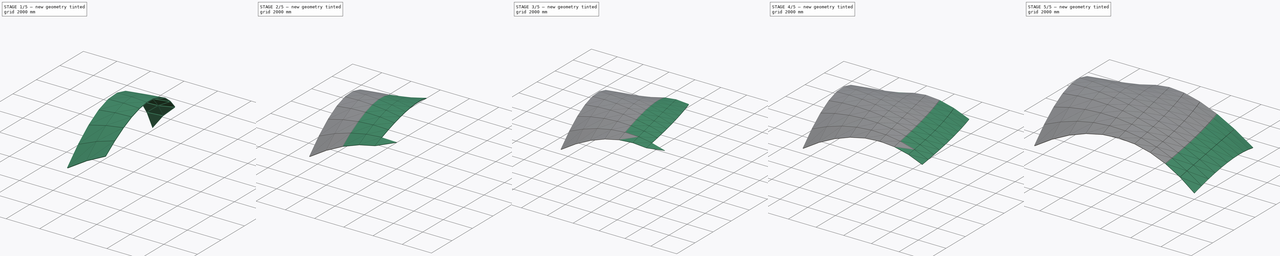
[diagram: build sequence overview — one tinted view per stage of 5, left to right]
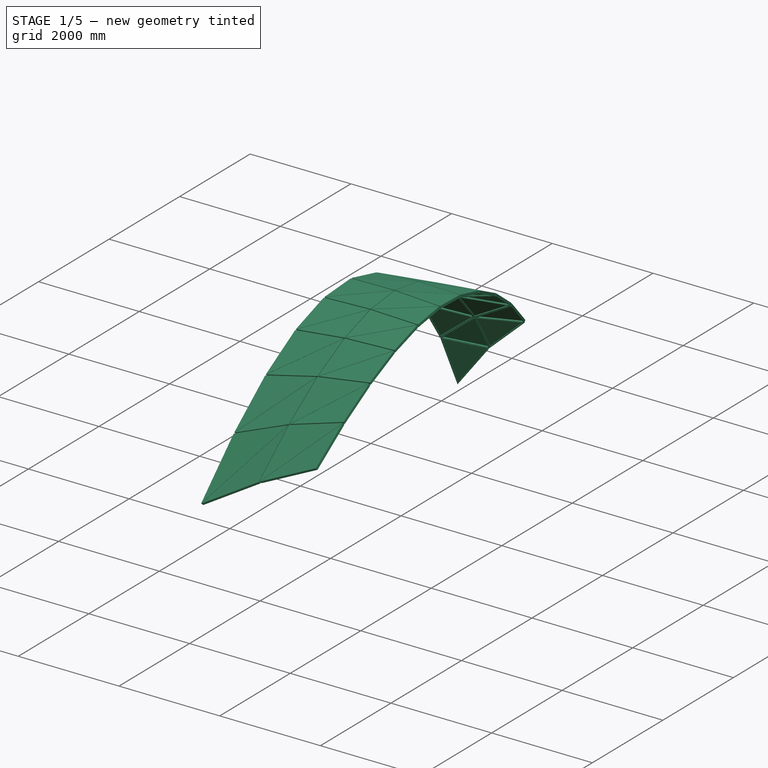
[diagram: stage 1 of 5 — iso view after this stage's code; geometry added in this stage tinted green]
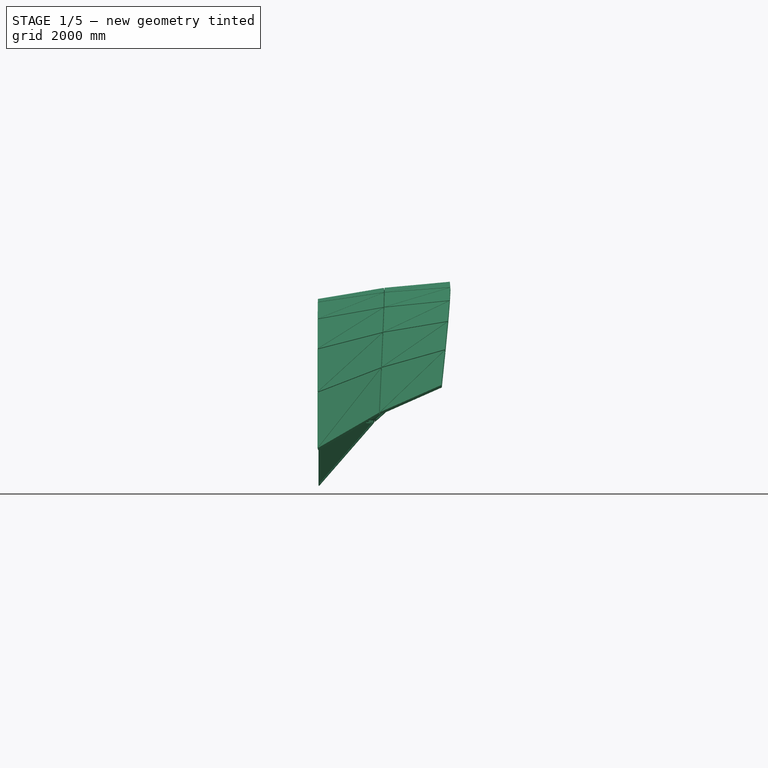
[diagram: stage 1 of 5 — front view after this stage's code; geometry added in this stage tinted green]
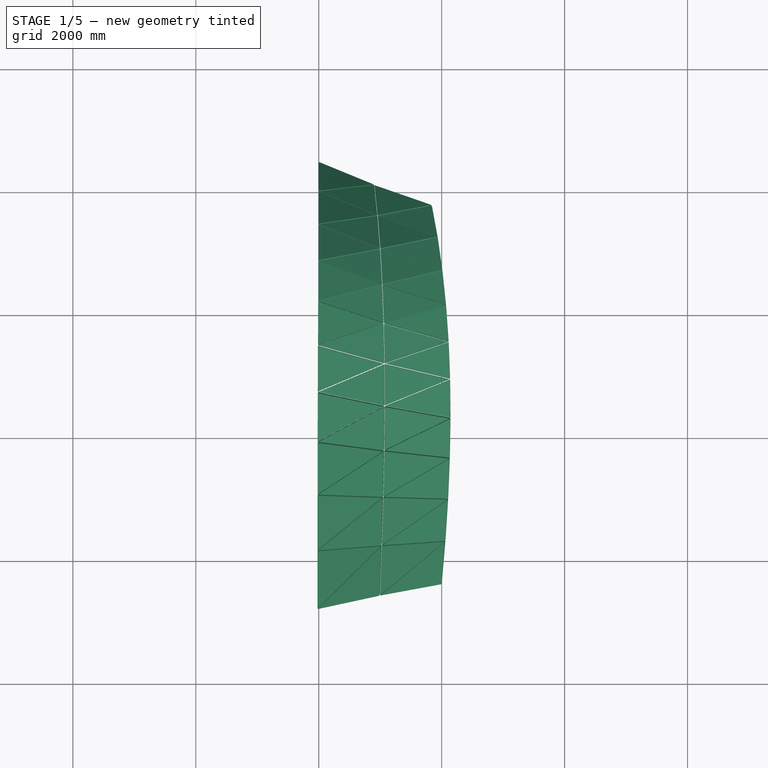
[diagram: stage 1 of 5 — top view after this stage's code; geometry added in this stage tinted green]
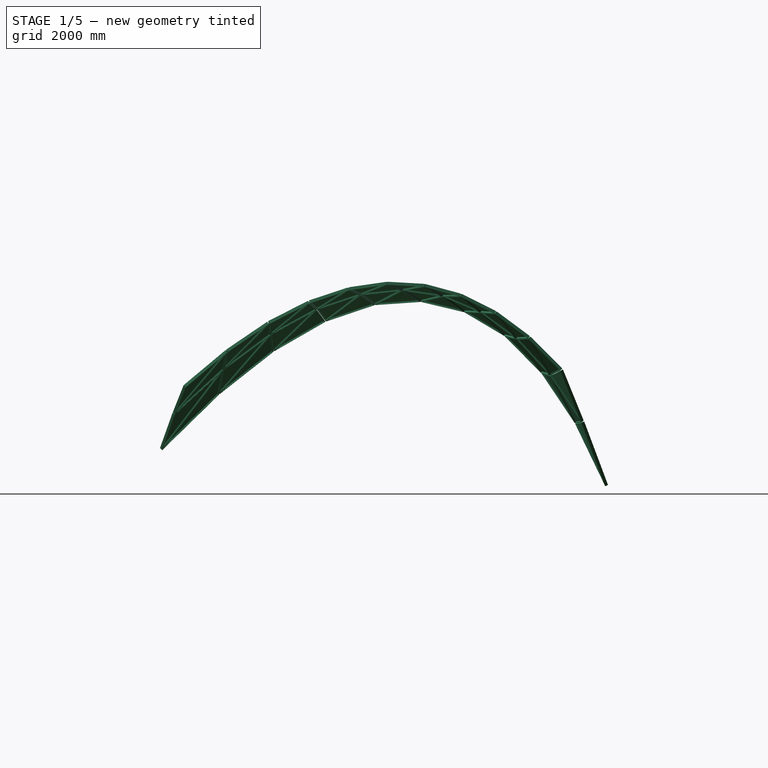
[diagram: stage 1 of 5 — right view after this stage's code; geometry added in this stage tinted green]
FCSTD DOCUMENT  (FreeCAD 0.19R18174 (Git))
Label: surface
License: All rights reserved
LicenseURL: http://en.wikipedia.org/wiki/All_rights_reserved
objects: Part::Feature×202, Part::FeaturePython×200, Part::Part2DObjectPython×5, App::DocumentObjectGroup×2, Sketcher::SketchObject×1, Part::Extrusion×1, Surface::GeomFillSurface×1
note: 410 computed .brp shape members not serialized (recipe doc carries the construction recipe); baked Part::Feature solids carry a one-line shape summary decoded from their .brp

FEATURE [Part::Feature] wireCompound_eb4b103f_ed3d_4e6d_b24f_25529072da95
  shape: bbox 960.6 x 511.6 x 594.1 mm, 0 faces, 0 solids (baked)
FEATURE [Part::FeaturePython] Window160  # Arch/BIM 170 (typed FeaturePython)
  Area = 0
  Base = -> wireCompound_eb4b103f_ed3d_4e6d_b24f_25529072da95
  Frame = 0
  Height = 0
  HoleDepth = 0
  HoleWire = 0
  HorizontalArea = 0
  IfcType = 170
  LouvreSpacing = 0
  LouvreWidth = 0
  MoveBase = false
  MoveWithHost = true
  Normal = (-0.195597,0.677399,0.709135)
  Opening = 0
  OverallHeight = 0
  OverallWidth = 0
  PartitioningType = 0
  PerimeterLength = 0
  PredefinedType = 0
  Preset = 0
  SymbolElevation = false
  SymbolPlan = false
  VerticalArea = 0
  Width = 0
  WindowParts = WindowFrame | Frame | Wire0,Wire1 | 50 | 0 | glass | Glass panel | Wire1 | 25 | 25
  expr: OverallWidth = .Width.Value
  expr: OverallHeight = .Height.Value
FEATURE [Part::Feature] wireCompound_3d2105ee_ed8f_4e89_839d_6aefb91daa1d
  shape: bbox 922.6 x 502.2 x 825.1 mm, 0 faces, 0 solids (baked)
FEATURE [Part::FeaturePython] Window161  # Arch/BIM 170 (typed FeaturePython)
  Area = 0
  Base = -> wireCompound_3d2105ee_ed8f_4e89_839d_6aefb91daa1d
  Frame = 0
  Height = 0
  HoleDepth = 0
  HoleWire = 0
  HorizontalArea = 0
  IfcType = 170
  LouvreSpacing = 0
  LouvreWidth = 0
  MoveBase = false
  MoveWithHost = true
  Normal = (-0.206013,0.804729,0.55675)
  Opening = 0
  OverallHeight = 0
  OverallWidth = 0
  PartitioningType = 0
  PerimeterLength = 0
  PredefinedType = 0
  Preset = 0
  SymbolElevation = false
  SymbolPlan = false
  VerticalArea = 0
  Width = 0
  WindowParts = WindowFrame | Frame | Wire0,Wire1 | 50 | 0 | glass | Glass panel | Wire1 | 25 | 25
  expr: OverallWidth = .Width.Value
  expr: OverallHeight = .Height.Value
FEATURE [Part::Feature] wireCompound_57f5df4a_3e7d_4b0e_8716_8c878c657b4c
  shape: bbox 993.2 x 532 x 406.4 mm, 0 faces, 0 solids (baked)
FEATURE [Part::FeaturePython] Window162  # Arch/BIM 170 (typed FeaturePython)
  Area = 0
  Base = -> wireCompound_57f5df4a_3e7d_4b0e_8716_8c878c657b4c
  Frame = 0
  Height = 0
  HoleDepth = 0
  HoleWire = 0
  HorizontalArea = 0
  IfcType = 170
  LouvreSpacing = 0
  LouvreWidth = 0
  MoveBase = false
  MoveWithHost = true
  Normal = (-0.130228,0.578916,0.80492)
  Opening = 0
  OverallHeight = 0
  OverallWidth = 0
  PartitioningType = 0
  PerimeterLength = 0
  PredefinedType = 0
  Preset = 0
  SymbolElevation = false
  SymbolPlan = false
  VerticalArea = 0
  Width = 0
  WindowParts = WindowFrame | Frame | Wire0,Wire1 | 50 | 0 | glass | Glass panel | Wire1 | 25 | 25
  expr: OverallWidth = .Width.Value
  expr: OverallHeight = .Height.Value
FEATURE [Part::Feature] wireCompound_6604c370_d34c_4643_ae59_b71a7319f92f
  shape: bbox 962.4 x 536.1 x 595.2 mm, 0 faces, 0 solids (baked)
FEATURE [Part::FeaturePython] Window163  # Arch/BIM 170 (typed FeaturePython)
  Area = 0
  Base = -> wireCompound_6604c370_d34c_4643_ae59_b71a7319f92f
  Frame = 0
  Height = 0
  HoleDepth = 0
  HoleWire = 0
  HorizontalArea = 0
  IfcType = 170
  LouvreSpacing = 0
  LouvreWidth = 0
  MoveBase = false
  MoveWithHost = true
  Normal = (-0.158098,0.721529,0.674092)
  Opening = 0
  OverallHeight = 0
  OverallWidth = 0
  PartitioningType = 0
  PerimeterLength = 0
  PredefinedType = 0
  Preset = 0
  SymbolElevation = false
  SymbolPlan = false
  VerticalArea = 0
  Width = 0
  WindowParts = WindowFrame | Frame | Wire0,Wire1 | 50 | 0 | glass | Glass panel | Wire1 | 25 | 25
  expr: OverallWidth = .Width.Value
  expr: OverallHeight = .Height.Value
FEATURE [Part::Feature] wireCompound_b07842b4_aa5f_40da_ba1c_50ce0a3f7654
  shape: bbox 1018 x 552.3 x 274.8 mm, 0 faces, 0 solids (baked)
FEATURE [Part::FeaturePython] Window164  # Arch/BIM 170 (typed FeaturePython)
  Area = 0
  Base = -> wireCompound_b07842b4_aa5f_40da_ba1c_50ce0a3f7654
  Frame = 0
  Height = 0
  HoleDepth = 0
  HoleWire = 0
  HorizontalArea = 0
  IfcType = 170
  LouvreSpacing = 0
  LouvreWidth = 0
  MoveBase = false
  MoveWithHost = true
  Normal = (-0.089943,0.436196,0.895345)
  Opening = 0
  OverallHeight = 0
  OverallWidth = 0
  PartitioningType = 0
  PerimeterLength = 0
  PredefinedType = 0
  Preset = 0
  SymbolElevation = false
  SymbolPlan = false
  VerticalArea = 0
  Width = 0
  WindowParts = WindowFrame | Frame | Wire0,Wire1 | 50 | 0 | glass | Glass panel | Wire1 | 25 | 25
  expr: OverallWidth = .Width.Value
  expr: OverallHeight = .Height.Value
FEATURE [Part::Feature] wireCompound_22a7e53a_2e1f_4dab_8472_1c62d6e20374
  shape: bbox 994.7 x 570.3 x 421.4 mm, 0 faces, 0 solids (baked)
FEATURE [Part::FeaturePython] Window165  # Arch/BIM 170 (typed FeaturePython)
  Area = 0
  Base = -> wireCompound_22a7e53a_2e1f_4dab_8472_1c62d6e20374
  Frame = 0
  Height = 0
  HoleDepth = 0
  HoleWire = 0
  HorizontalArea = 0
  IfcType = 170
  LouvreSpacing = 0
  LouvreWidth = 0
  MoveBase = false
  MoveWithHost = true
  Normal = (-0.12659,0.584967,0.801117)
  Opening = 0
  OverallHeight = 0
  OverallWidth = 0
  PartitioningType = 0
  PerimeterLength = 0
  PredefinedType = 0
  Preset = 0
  SymbolElevation = false
  SymbolPlan = false
  VerticalArea = 0
  Width = 0
  WindowParts = WindowFrame | Frame | Wire0,Wire1 | 50 | 0 | glass | Glass panel | Wire1 | 25 | 25
  expr: OverallWidth = .Width.Value
  expr: OverallHeight = .Height.Value
FEATURE [Part::Feature] wireCompound_4a551814_d6ac_4e27_bfcc_e56538f8a185
  shape: bbox 1036 x 572.1 x 156.8 mm, 0 faces, 0 solids (baked)
FEATURE [Part::FeaturePython] Window166  # Arch/BIM 170 (typed FeaturePython)
  Area = 0
  Base = -> wireCompound_4a551814_d6ac_4e27_bfcc_e56538f8a185
  Frame = 0
  Height = 0
  HoleDepth = 0
  HoleWire = 0
  HorizontalArea = 0
  IfcType = 170
  LouvreSpacing = 0
  LouvreWidth = 0
  MoveBase = false
  MoveWithHost = true
  Normal = (-0.0738966,0.254803,0.964165)
  Opening = 0
  OverallHeight = 0
  OverallWidth = 0
  PartitioningType = 0
  PerimeterLength = 0
  PredefinedType = 0
  Preset = 0
  SymbolElevation = false
  SymbolPlan = false
  VerticalArea = 0
  Width = 0
  WindowParts = WindowFrame | Frame | Wire0,Wire1 | 50 | 0 | glass | Glass panel | Wire1 | 25 | 25
  expr: OverallWidth = .Width.Value
  expr: OverallHeight = .Height.Value
FEATURE [Part::Feature] wireCompound_cc2ea7de_f59e_446f_8e16_814b6d98a69b
  shape: bbox 1020 x 604.5 x 260.7 mm, 0 faces, 0 solids (baked)
FEATURE [Part::FeaturePython] Window167  # Arch/BIM 170 (typed FeaturePython)
  Area = 0
  Base = -> wireCompound_cc2ea7de_f59e_446f_8e16_814b6d98a69b
  Frame = 0
  Height = 0
  HoleDepth = 0
  HoleWire = 0
  HorizontalArea = 0
  IfcType = 170
  LouvreSpacing = 0
  LouvreWidth = 0
  MoveBase = false
  MoveWithHost = true
  Normal = (-0.110778,0.386927,0.915432)
  Opening = 0
  OverallHeight = 0
  OverallWidth = 0
  PartitioningType = 0
  PerimeterLength = 0
  PredefinedType = 0
  Preset = 0
  SymbolElevation = false
  SymbolPlan = false
  VerticalArea = 0
  Width = 0
  WindowParts = WindowFrame | Frame | Wire0,Wire1 | 50 | 0 | glass | Glass panel | Wire1 | 25 | 25
  expr: OverallWidth = .Width.Value
  expr: OverallHeight = .Height.Value
FEATURE [Part::Feature] wireCompound_36a6728d_b166_45dc_acbe_d4e18fe0009f
  shape: bbox 1047 x 590.9 x 96.54 mm, 0 faces, 0 solids (baked)
FEATURE [Part::FeaturePython] Window168  # Arch/BIM 170 (typed FeaturePython)
  Area = 0
  Base = -> wireCompound_36a6728d_b166_45dc_acbe_d4e18fe0009f
  Frame = 0
  Height = 0
  HoleDepth = 0
  HoleWire = 0
  HorizontalArea = 0
  IfcType = 170
  LouvreSpacing = 0
  LouvreWidth = 0
  MoveBase = false
  MoveWithHost = true
  Normal = (-0.0792691,0.05288,0.99545)
  Opening = 0
  OverallHeight = 0
  OverallWidth = 0
  PartitioningType = 0
  PerimeterLength = 0
  PredefinedType = 0
  Preset = 0
  SymbolElevation = false
  SymbolPlan = false
  VerticalArea = 0
  Width = 0
  WindowParts = WindowFrame | Frame | Wire0,Wire1 | 50 | 0 | glass | Glass panel | Wire1 | 25 | 25
  expr: OverallWidth = .Width.Value
  expr: OverallHeight = .Height.Value
FEATURE [Part::Feature] wireCompound_8b5652a5_af44_451c_83e6_a72be5f189e3
  shape: bbox 1038 x 637.5 x 157.1 mm, 0 faces, 0 solids (baked)
FEATURE [Part::FeaturePython] Window169  # Arch/BIM 170 (typed FeaturePython)
  Area = 0
  Base = -> wireCompound_8b5652a5_af44_451c_83e6_a72be5f189e3
  Frame = 0
  Height = 0
  HoleDepth = 0
  HoleWire = 0
  HorizontalArea = 0
  IfcType = 170
  LouvreSpacing = 0
  LouvreWidth = 0
  MoveBase = false
  MoveWithHost = true
  Normal = (-0.108613,0.142472,0.983822)
  Opening = 0
  OverallHeight = 0
  OverallWidth = 0
  PartitioningType = 0
  PerimeterLength = 0
  PredefinedType = 0
  Preset = 0
  SymbolElevation = false
  SymbolPlan = false
  VerticalArea = 0
  Width = 0
  WindowParts = WindowFrame | Frame | Wire0,Wire1 | 50 | 0 | glass | Glass panel | Wire1 | 25 | 25
  expr: OverallWidth = .Width.Value
  expr: OverallHeight = .Height.Value
FEATURE [Part::Feature] wireCompound_f32d105c_a941_4a8e_bde1_12acbe6c83ab
  shape: bbox 1051 x 608.8 x 167.4 mm, 0 faces, 0 solids (baked)
FEATURE [Part::FeaturePython] Window170  # Arch/BIM 170 (typed FeaturePython)
  Area = 0
  Base = -> wireCompound_f32d105c_a941_4a8e_bde1_12acbe6c83ab
  Frame = 0
  Height = 0
  HoleDepth = 0
  HoleWire = 0
  HorizontalArea = 0
  IfcType = 170
  LouvreSpacing = 0
  LouvreWidth = 0
  MoveBase = false
  MoveWithHost = true
  Normal = (-0.100228,-0.142931,0.984645)
  Opening = 0
  OverallHeight = 0
  OverallWidth = 0
  PartitioningType = 0
  PerimeterLength = 0
  PredefinedType = 0
  Preset = 0
  SymbolElevation = false
  SymbolPlan = false
  VerticalArea = 0
  Width = 0
  WindowParts = WindowFrame | Frame | Wire0,Wire1 | 50 | 0 | glass | Glass panel | Wire1 | 25 | 25
  expr: OverallWidth = .Width.Value
  expr: OverallHeight = .Height.Value
FEATURE [Part::Feature] wireCompound_8671d47f_b91a_456c_81eb_2beb127d3291
  shape: bbox 1049 x 668.7 x 167.6 mm, 0 faces, 0 solids (baked)
FEATURE [Part::FeaturePython] Window171  # Arch/BIM 170 (typed FeaturePython)
  Area = 0
  Base = -> wireCompound_8671d47f_b91a_456c_81eb_2beb127d3291
  Frame = 0
  Height = 0
  HoleDepth = 0
  HoleWire = 0
  HorizontalArea = 0
  IfcType = 170
  LouvreSpacing = 0
  LouvreWidth = 0
  MoveBase = false
  MoveWithHost = true
  Normal = (-0.115867,-0.105273,0.98767)
  Opening = 0
  OverallHeight = 0
  OverallWidth = 0
  PartitioningType = 0
  PerimeterLength = 0
  PredefinedType = 0
  Preset = 0
  SymbolElevation = false
  SymbolPlan = false
  VerticalArea = 0
  Width = 0
  WindowParts = WindowFrame | Frame | Wire0,Wire1 | 50 | 0 | glass | Glass panel | Wire1 | 25 | 25
  expr: OverallWidth = .Width.Value
  expr: OverallHeight = .Height.Value
FEATURE [Part::Feature] wireCompound_2b7c642d_fd20_494b_9a5e_9592f9b10c54
  shape: bbox 1058 x 626 x 313.9 mm, 0 faces, 0 solids (baked)
FEATURE [Part::FeaturePython] Window172  # Arch/BIM 170 (typed FeaturePython)
  Area = 0
  Base = -> wireCompound_2b7c642d_fd20_494b_9a5e_9592f9b10c54
  Frame = 0
  Height = 0
  HoleDepth = 0
  HoleWire = 0
  HorizontalArea = 0
  IfcType = 170
  LouvreSpacing = 0
  LouvreWidth = 0
  MoveBase = false
  MoveWithHost = true
  Normal = (-0.129698,-0.311015,0.941514)
  Opening = 0
  OverallHeight = 0
  OverallWidth = 0
  PartitioningType = 0
  PerimeterLength = 0
  PredefinedType = 0
  Preset = 0
  SymbolElevation = false
  SymbolPlan = false
  VerticalArea = 0
  Width = 0
  WindowParts = WindowFrame | Frame | Wire0,Wire1 | 50 | 0 | glass | Glass panel | Wire1 | 25 | 25
  expr: OverallWidth = .Width.Value
  expr: OverallHeight = .Height.Value
FEATURE [Part::Feature] wireCompound_04886161_98ff_4e9f_994a_e502fb94a553
  shape: bbox 1059 x 698.8 x 314.4 mm, 0 faces, 0 solids (baked)
FEATURE [Part::FeaturePython] Window173  # Arch/BIM 170 (typed FeaturePython)
  Area = 0
  Base = -> wireCompound_04886161_98ff_4e9f_994a_e502fb94a553
  Frame = 0
  Height = 0
  HoleDepth = 0
  HoleWire = 0
  HorizontalArea = 0
  IfcType = 170
  LouvreSpacing = 0
  LouvreWidth = 0
  MoveBase = false
  MoveWithHost = true
  Normal = (-0.127649,-0.31469,0.940572)
  Opening = 0
  OverallHeight = 0
  OverallWidth = 0
  PartitioningType = 0
  PerimeterLength = 0
  PredefinedType = 0
  Preset = 0
  SymbolElevation = false
  SymbolPlan = false
  VerticalArea = 0
  Width = 0
  WindowParts = WindowFrame | Frame | Wire0,Wire1 | 50 | 0 | glass | Glass panel | Wire1 | 25 | 25
  expr: OverallWidth = .Width.Value
  expr: OverallHeight = .Height.Value
FEATURE [Part::Feature] wireCompound_a4883a44_2f71_4cca_af14_4ca1693837a4
  shape: bbox 1062 x 643 x 502.2 mm, 0 faces, 0 solids (baked)
FEATURE [Part::FeaturePython] Window174  # Arch/BIM 170 (typed FeaturePython)
  Area = 0
  Base = -> wireCompound_a4883a44_2f71_4cca_af14_4ca1693837a4
  Frame = 0
  Height = 0
  HoleDepth = 0
  HoleWire = 0
  HorizontalArea = 0
  IfcType = 170
  LouvreSpacing = 0
  LouvreWidth = 0
  MoveBase = false
  MoveWithHost = true
  Normal = (-0.162127,-0.443158,0.881661)
  Opening = 0
  OverallHeight = 0
  OverallWidth = 0
  PartitioningType = 0
  PerimeterLength = 0
  PredefinedType = 0
  Preset = 0
  SymbolElevation = false
  SymbolPlan = false
  VerticalArea = 0
  Width = 0
  WindowParts = WindowFrame | Frame | Wire0,Wire1 | 50 | 0 | glass | Glass panel | Wire1 | 25 | 25
  expr: OverallWidth = .Width.Value
  expr: OverallHeight = .Height.Value
FEATURE [Part::Feature] wireCompound_4a3eb43a_451e_4285_8cc4_4de7d6433e69
  shape: bbox 1065 x 728.9 x 503.3 mm, 0 faces, 0 solids (baked)
FEATURE [Part::FeaturePython] Window175  # Arch/BIM 170 (typed FeaturePython)
  Area = 0
  Base = -> wireCompound_4a3eb43a_451e_4285_8cc4_4de7d6433e69
  Frame = 0
  Height = 0
  HoleDepth = 0
  HoleWire = 0
  HorizontalArea = 0
  IfcType = 170
  LouvreSpacing = 0
  LouvreWidth = 0
  MoveBase = false
  MoveWithHost = true
  Normal = (-0.140445,-0.471703,0.8705)
  Opening = 0
  OverallHeight = 0
  OverallWidth = 0
  PartitioningType = 0
  PerimeterLength = 0
  PredefinedType = 0
  Preset = 0
  SymbolElevation = false
  SymbolPlan = false
  VerticalArea = 0
  Width = 0
  WindowParts = WindowFrame | Frame | Wire0,Wire1 | 50 | 0 | glass | Glass panel | Wire1 | 25 | 25
  expr: OverallWidth = .Width.Value
  expr: OverallHeight = .Height.Value
FEATURE [Part::Feature] wireCompound_7ec99d70_1832_437e_8833_da8ff5554fad
  shape: bbox 1059 x 724.8 x 732 mm, 0 faces, 0 solids (baked)
FEATURE [Part::FeaturePython] Window176  # Arch/BIM 170 (typed FeaturePython)
  Area = 0
  Base = -> wireCompound_7ec99d70_1832_437e_8833_da8ff5554fad
  Frame = 0
  Height = 0
  HoleDepth = 0
  HoleWire = 0
  HorizontalArea = 0
  IfcType = 170
  LouvreSpacing = 0
  LouvreWidth = 0
  MoveBase = false
  MoveWithHost = true
  Normal = (-0.194501,-0.541772,0.817712)
  Opening = 0
  OverallHeight = 0
  OverallWidth = 0
  PartitioningType = 0
  PerimeterLength = 0
  PredefinedType = 0
  Preset = 0
  SymbolElevation = false
  SymbolPlan = false
  VerticalArea = 0
  Width = 0
  WindowParts = WindowFrame | Frame | Wire0,Wire1 | 50 | 0 | glass | Glass panel | Wire1 | 25 | 25
  expr: OverallWidth = .Width.Value
  expr: OverallHeight = .Height.Value
FEATURE [Part::Feature] wireCompound_880d8b22_dd1a_4835_8bc7_d6962e53feb5
  shape: bbox 1062 x 759.3 x 734.1 mm, 0 faces, 0 solids (baked)
FEATURE [Part::FeaturePython] Window177  # Arch/BIM 170 (typed FeaturePython)
  Area = 0
  Base = -> wireCompound_880d8b22_dd1a_4835_8bc7_d6962e53feb5
  Frame = 0
  Height = 0
  HoleDepth = 0
  HoleWire = 0
  HorizontalArea = 0
  IfcType = 170
  LouvreSpacing = 0
  LouvreWidth = 0
  MoveBase = false
  MoveWithHost = true
  Normal = (-0.152436,-0.583209,0.797891)
  Opening = 0
  OverallHeight = 0
  OverallWidth = 0
  PartitioningType = 0
  PerimeterLength = 0
  PredefinedType = 0
  Preset = 0
  SymbolElevation = false
  SymbolPlan = false
  VerticalArea = 0
  Width = 0
  WindowParts = WindowFrame | Frame | Wire0,Wire1 | 50 | 0 | glass | Glass panel | Wire1 | 25 | 25
  expr: OverallWidth = .Width.Value
  expr: OverallHeight = .Height.Value
FEATURE [Part::Feature] wireCompound_f98c5e5d_8096_41cc_8c12_ae5f2bff407b
  shape: bbox 1047 x 852 x 1003 mm, 0 faces, 0 solids (baked)
FEATURE [Part::FeaturePython] Window178  # Arch/BIM 170 (typed FeaturePython)
  Area = 0
  Base = -> wireCompound_f98c5e5d_8096_41cc_8c12_ae5f2bff407b
  Frame = 0
  Height = 0
  HoleDepth = 0
  HoleWire = 0
  HorizontalArea = 0
  IfcType = 170
  LouvreSpacing = 0
  LouvreWidth = 0
  MoveBase = false
  MoveWithHost = true
  Normal = (-0.225799,-0.613447,0.756768)
  Opening = 0
  OverallHeight = 0
  OverallWidth = 0
  PartitioningType = 0
  PerimeterLength = 0
  PredefinedType = 0
  Preset = 0
  SymbolElevation = false
  SymbolPlan = false
  VerticalArea = 0
  Width = 0
  WindowParts = WindowFrame | Frame | Wire0,Wire1 | 50 | 0 | glass | Glass panel | Wire1 | 25 | 25
  expr: OverallWidth = .Width.Value
  expr: OverallHeight = .Height.Value
FEATURE [Part::Feature] wireCompound_922d2e80_9de8_4fb9_a6e6_a13e2490361a
  shape: bbox 1051 x 855.1 x 1007 mm, 0 faces, 0 solids (baked)
FEATURE [Part::FeaturePython] Window179  # Arch/BIM 170 (typed FeaturePython)
  Area = 0
  Base = -> wireCompound_922d2e80_9de8_4fb9_a6e6_a13e2490361a
  Frame = 0
  Height = 0
  HoleDepth = 0
  HoleWire = 0
  HorizontalArea = 0
  IfcType = 170
  LouvreSpacing = 0
  LouvreWidth = 0
  MoveBase = false
  MoveWithHost = true
  Normal = (-0.162825,-0.661625,0.731943)
  Opening = 0
  OverallHeight = 0
  OverallWidth = 0
  PartitioningType = 0
  PerimeterLength = 0
  PredefinedType = 0
  Preset = 0
  SymbolElevation = false
  SymbolPlan = false
  VerticalArea = 0
  Width = 0
  WindowParts = WindowFrame | Frame | Wire0,Wire1 | 50 | 0 | glass | Glass panel | Wire1 | 25 | 25
  expr: OverallWidth = .Width.Value
  expr: OverallHeight = .Height.Value
FEATURE [Part::Feature] wireCompound_2c677b61_49b9_49e1_a79c_84d190af5595
  shape: bbox 947 x 502.3 x 760.7 mm, 0 faces, 0 solids (baked)
FEATURE [Part::FeaturePython] Window180  # Arch/BIM 170 (typed FeaturePython)
  Area = 0
  Base = -> wireCompound_2c677b61_49b9_49e1_a79c_84d190af5595
  Frame = 0
  Height = 0
  HoleDepth = 0
  HoleWire = 0
  HorizontalArea = 0
  IfcType = 170
  LouvreSpacing = 0
  LouvreWidth = 0
  MoveBase = false
  MoveWithHost = true
  Normal = (-0.103357,0.821375,0.560945)
  Opening = 0
  OverallHeight = 0
  OverallWidth = 0
  PartitioningType = 0
  PerimeterLength = 0
  PredefinedType = 0
  Preset = 0
  SymbolElevation = false
  SymbolPlan = false
  VerticalArea = 0
  Width = 0
  WindowParts = WindowFrame | Frame | Wire0,Wire1 | 50 | 0 | glass | Glass panel | Wire1 | 25 | 25
  expr: OverallWidth = .Width.Value
  expr: OverallHeight = .Height.Value
FEATURE [Part::Feature] wireCompound_af1a6b61_bdde_4e10_8f5f_11d75b3cda13
  shape: bbox 898.6 x 488.6 x 1031 mm, 0 faces, 0 solids (baked)
FEATURE [Part::FeaturePython] Window181  # Arch/BIM 170 (typed FeaturePython)
  Area = 0
  Base = -> wireCompound_af1a6b61_bdde_4e10_8f5f_11d75b3cda13
  Frame = 0
  Height = 0
  HoleDepth = 0
  HoleWire = 0
  HorizontalArea = 0
  IfcType = 170
  LouvreSpacing = 0
  LouvreWidth = 0
  MoveBase = false
  MoveWithHost = true
  Normal = (-0.109516,0.895625,0.431117)
  Opening = 0
  OverallHeight = 0
  OverallWidth = 0
  PartitioningType = 0
  PerimeterLength = 0
  PredefinedType = 0
  Preset = 0
  SymbolElevation = false
  SymbolPlan = false
  VerticalArea = 0
  Width = 0
  WindowParts = WindowFrame | Frame | Wire0,Wire1 | 50 | 0 | glass | Glass panel | Wire1 | 25 | 25
  expr: OverallWidth = .Width.Value
  expr: OverallHeight = .Height.Value
FEATURE [Part::Feature] wireCompound_ebac1aca_27f3_482b_a8ee_955bd0c7a43b
  shape: bbox 988 x 536.1 x 583.5 mm, 0 faces, 0 solids (baked)
FEATURE [Part::FeaturePython] Window182  # Arch/BIM 170 (typed FeaturePython)
  Area = 0
  Base = -> wireCompound_ebac1aca_27f3_482b_a8ee_955bd0c7a43b
  Frame = 0
  Height = 0
  HoleDepth = 0
  HoleWire = 0
  HorizontalArea = 0
  IfcType = 170
  LouvreSpacing = 0
  LouvreWidth = 0
  MoveBase = false
  MoveWithHost = true
  Normal = (-0.0756923,0.731591,0.677528)
  Opening = 0
  OverallHeight = 0
  OverallWidth = 0
  PartitioningType = 0
  PerimeterLength = 0
  PredefinedType = 0
  Preset = 0
  SymbolElevation = false
  SymbolPlan = false
  VerticalArea = 0
  Width = 0
  WindowParts = WindowFrame | Frame | Wire0,Wire1 | 50 | 0 | glass | Glass panel | Wire1 | 25 | 25
  expr: OverallWidth = .Width.Value
  expr: OverallHeight = .Height.Value
FEATURE [Part::Feature] wireCompound_e3bd0124_4ef1_41dc_9fb7_564836f2a697
  shape: bbox 948.8 x 538.4 x 804.3 mm, 0 faces, 0 solids (baked)
FEATURE [Part::FeaturePython] Window183  # Arch/BIM 170 (typed FeaturePython)
  Area = 0
  Base = -> wireCompound_e3bd0124_4ef1_41dc_9fb7_564836f2a697
  Frame = 0
  Height = 0
  HoleDepth = 0
  HoleWire = 0
  HorizontalArea = 0
  IfcType = 170
  LouvreSpacing = 0
  LouvreWidth = 0
  MoveBase = false
  MoveWithHost = true
  Normal = (-0.0950822,0.827247,0.553734)
  Opening = 0
  OverallHeight = 0
  OverallWidth = 0
  PartitioningType = 0
  PerimeterLength = 0
  PredefinedType = 0
  Preset = 0
  SymbolElevation = false
  SymbolPlan = false
  VerticalArea = 0
  Width = 0
  WindowParts = WindowFrame | Frame | Wire0,Wire1 | 50 | 0 | glass | Glass panel | Wire1 | 25 | 25
  expr: OverallWidth = .Width.Value
  expr: OverallHeight = .Height.Value
FEATURE [Part::Feature] wireCompound_e331dbe7_cfe2_4e6b_bc5b_7d23fdf5ecf3
  shape: bbox 1020 x 570.4 x 421.4 mm, 0 faces, 0 solids (baked)
FEATURE [Part::FeaturePython] Window184  # Arch/BIM 170 (typed FeaturePython)
  Area = 0
  Base = -> wireCompound_e331dbe7_cfe2_4e6b_bc5b_7d23fdf5ecf3
  Frame = 0
  Height = 0
  HoleDepth = 0
  HoleWire = 0
  HorizontalArea = 0
  IfcType = 170
  LouvreSpacing = 0
  LouvreWidth = 0
  MoveBase = false
  MoveWithHost = true
  Normal = (-0.0715732,0.590182,0.804091)
  Opening = 0
  OverallHeight = 0
  OverallWidth = 0
  PartitioningType = 0
  PerimeterLength = 0
  PredefinedType = 0
  Preset = 0
  SymbolElevation = false
  SymbolPlan = false
  VerticalArea = 0
  Width = 0
  WindowParts = WindowFrame | Frame | Wire0,Wire1 | 50 | 0 | glass | Glass panel | Wire1 | 25 | 25
  expr: OverallWidth = .Width.Value
  expr: OverallHeight = .Height.Value
FEATURE [Part::Feature] wireCompound_597bf634_cd50_46b7_a055_74ea7dcaf3ec
  shape: bbox 990.5 x 589.2 x 592.9 mm, 0 faces, 0 solids (baked)
FEATURE [Part::FeaturePython] Window185  # Arch/BIM 170 (typed FeaturePython)
  Area = 0
  Base = -> wireCompound_597bf634_cd50_46b7_a055_74ea7dcaf3ec
  Frame = 0
  Height = 0
  HoleDepth = 0
  HoleWire = 0
  HorizontalArea = 0
  IfcType = 170
  LouvreSpacing = 0
  LouvreWidth = 0
  MoveBase = false
  MoveWithHost = true
  Normal = (-0.0990545,0.705964,0.701287)
  Opening = 0
  OverallHeight = 0
  OverallWidth = 0
  PartitioningType = 0
  PerimeterLength = 0
  PredefinedType = 0
  Preset = 0
  SymbolElevation = false
  SymbolPlan = false
  VerticalArea = 0
  Width = 0
  WindowParts = WindowFrame | Frame | Wire0,Wire1 | 50 | 0 | glass | Glass panel | Wire1 | 25 | 25
  expr: OverallWidth = .Width.Value
  expr: OverallHeight = .Height.Value
FEATURE [Part::Feature] wireCompound_c073a64a_12b0_40ca_8441_4940e266c441
  shape: bbox 1043 x 604.6 x 258.2 mm, 0 faces, 0 solids (baked)
FEATURE [Part::FeaturePython] Window186  # Arch/BIM 170 (typed FeaturePython)
  Area = 0
  Base = -> wireCompound_c073a64a_12b0_40ca_8441_4940e266c441
  Frame = 0
  Height = 0
  HoleDepth = 0
  HoleWire = 0
  HorizontalArea = 0
  IfcType = 170
  LouvreSpacing = 0
  LouvreWidth = 0
  MoveBase = false
  MoveWithHost = true
  Normal = (-0.0901246,0.38837,0.917086)
  Opening = 0
  OverallHeight = 0
  OverallWidth = 0
  PartitioningType = 0
  PerimeterLength = 0
  PredefinedType = 0
  Preset = 0
  SymbolElevation = false
  SymbolPlan = false
  VerticalArea = 0
  Width = 0
  WindowParts = WindowFrame | Frame | Wire0,Wire1 | 50 | 0 | glass | Glass panel | Wire1 | 25 | 25
  expr: OverallWidth = .Width.Value
  expr: OverallHeight = .Height.Value
FEATURE [Part::Feature] wireCompound_f633982b_562e_4c32_9fc0_175e29ec8806
  shape: bbox 1023 x 640.7 x 380.1 mm, 0 faces, 0 solids (baked)
FEATURE [Part::FeaturePython] Window187  # Arch/BIM 170 (typed FeaturePython)
  Area = 0
  Base = -> wireCompound_f633982b_562e_4c32_9fc0_175e29ec8806
  Frame = 0
  Height = 0
  HoleDepth = 0
  HoleWire = 0
  HorizontalArea = 0
  IfcType = 170
  LouvreSpacing = 0
  LouvreWidth = 0
  MoveBase = false
  MoveWithHost = true
  Normal = (-0.120708,0.506778,0.853584)
  Opening = 0
  OverallHeight = 0
  OverallWidth = 0
  PartitioningType = 0
  PerimeterLength = 0
  PredefinedType = 0
  Preset = 0
  SymbolElevation = false
  SymbolPlan = false
  VerticalArea = 0
  Width = 0
  WindowParts = WindowFrame | Frame | Wire0,Wire1 | 50 | 0 | glass | Glass panel | Wire1 | 25 | 25
  expr: OverallWidth = .Width.Value
  expr: OverallHeight = .Height.Value
FEATURE [Part::Feature] wireCompound_d7434099_1be3_4a7f_b8e5_7b0315cb1b99
  shape: bbox 1058 x 637.6 x 177.8 mm, 0 faces, 0 solids (baked)
FEATURE [Part::FeaturePython] Window188  # Arch/BIM 170 (typed FeaturePython)
  Area = 0
  Base = -> wireCompound_d7434099_1be3_4a7f_b8e5_7b0315cb1b99
  Frame = 0
  Height = 0
  HoleDepth = 0
  HoleWire = 0
  HorizontalArea = 0
  IfcType = 170
  LouvreSpacing = 0
  LouvreWidth = 0
  MoveBase = false
  MoveWithHost = true
  Normal = (-0.125729,0.14186,0.98187)
  Opening = 0
  OverallHeight = 0
  OverallWidth = 0
  PartitioningType = 0
  PerimeterLength = 0
  PredefinedType = 0
  Preset = 0
  SymbolElevation = false
  SymbolPlan = false
  VerticalArea = 0
  Width = 0
  WindowParts = WindowFrame | Frame | Wire0,Wire1 | 50 | 0 | glass | Glass panel | Wire1 | 25 | 25
  expr: OverallWidth = .Width.Value
  expr: OverallHeight = .Height.Value
FEATURE [Part::Feature] wireCompound_988e6a88_5642_4632_9023_fe0642de0de1
  shape: bbox 1047 x 691.1 x 249.2 mm, 0 faces, 0 solids (baked)
FEATURE [Part::FeaturePython] Window189  # Arch/BIM 170 (typed FeaturePython)
  Area = 0
  Base = -> wireCompound_988e6a88_5642_4632_9023_fe0642de0de1
  Frame = 0
  Height = 0
  HoleDepth = 0
  HoleWire = 0
  HorizontalArea = 0
  IfcType = 170
  LouvreSpacing = 0
  LouvreWidth = 0
  MoveBase = false
  MoveWithHost = true
  Normal = (-0.153101,0.230018,0.961068)
  Opening = 0
  OverallHeight = 0
  OverallWidth = 0
  PartitioningType = 0
  PerimeterLength = 0
  PredefinedType = 0
  Preset = 0
  SymbolElevation = false
  SymbolPlan = false
  VerticalArea = 0
  Width = 0
  WindowParts = WindowFrame | Frame | Wire0,Wire1 | 50 | 0 | glass | Glass panel | Wire1 | 25 | 25
  expr: OverallWidth = .Width.Value
  expr: OverallHeight = .Height.Value
FEATURE [Part::Feature] wireCompound_25ae7c4d_fb5b_470e_b6c5_a662f5f4b4c0
  shape: bbox 1064 x 668.8 x 228.5 mm, 0 faces, 0 solids (baked)
FEATURE [Part::FeaturePython] Window190  # Arch/BIM 170 (typed FeaturePython)
  Area = 0
  Base = -> wireCompound_25ae7c4d_fb5b_470e_b6c5_a662f5f4b4c0
  Frame = 0
  Height = 0
  HoleDepth = 0
  HoleWire = 0
  HorizontalArea = 0
  IfcType = 170
  LouvreSpacing = 0
  LouvreWidth = 0
  MoveBase = false
  MoveWithHost = true
  Normal = (-0.167396,-0.104728,0.980311)
  Opening = 0
  OverallHeight = 0
  OverallWidth = 0
  PartitioningType = 0
  PerimeterLength = 0
  PredefinedType = 0
  Preset = 0
  SymbolElevation = false
  SymbolPlan = false
  VerticalArea = 0
  Width = 0
  WindowParts = WindowFrame | Frame | Wire0,Wire1 | 50 | 0 | glass | Glass panel | Wire1 | 25 | 25
  expr: OverallWidth = .Width.Value
  expr: OverallHeight = .Height.Value
FEATURE [Part::Feature] wireCompound_802d9e24_5648_49b3_a49d_6f4af0516e05
  shape: bbox 1062 x 738.5 x 228.8 mm, 0 faces, 0 solids (baked)
FEATURE [Part::FeaturePython] Window191  # Arch/BIM 170 (typed FeaturePython)
  Area = 0
  Base = -> wireCompound_802d9e24_5648_49b3_a49d_6f4af0516e05
  Frame = 0
  Height = 0
  HoleDepth = 0
  HoleWire = 0
  HorizontalArea = 0
  IfcType = 170
  LouvreSpacing = 0
  LouvreWidth = 0
  MoveBase = false
  MoveWithHost = true
  Normal = (-0.183372,-0.0668246,0.98077)
  Opening = 0
  OverallHeight = 0
  OverallWidth = 0
  PartitioningType = 0
  PerimeterLength = 0
  PredefinedType = 0
  Preset = 0
  SymbolElevation = false
  SymbolPlan = false
  VerticalArea = 0
  Width = 0
  WindowParts = WindowFrame | Frame | Wire0,Wire1 | 50 | 0 | glass | Glass panel | Wire1 | 25 | 25
  expr: OverallWidth = .Width.Value
  expr: OverallHeight = .Height.Value
FEATURE [Part::Feature] wireCompound_84f51d65_e381_466d_a49d_8997107fa318
  shape: bbox 1066 x 698.7 x 422.2 mm, 0 faces, 0 solids (baked)
FEATURE [Part::FeaturePython] Window192  # Arch/BIM 170 (typed FeaturePython)
  Area = 0
  Base = -> wireCompound_84f51d65_e381_466d_a49d_8997107fa318
  Frame = 0
  Height = 0
  HoleDepth = 0
  HoleWire = 0
  HorizontalArea = 0
  IfcType = 170
  LouvreSpacing = 0
  LouvreWidth = 0
  MoveBase = false
  MoveWithHost = true
  Normal = (-0.205482,-0.30993,0.928289)
  Opening = 0
  OverallHeight = 0
  OverallWidth = 0
  PartitioningType = 0
  PerimeterLength = 0
  PredefinedType = 0
  Preset = 0
  SymbolElevation = false
  SymbolPlan = false
  VerticalArea = 0
  Width = 0
  WindowParts = WindowFrame | Frame | Wire0,Wire1 | 50 | 0 | glass | Glass panel | Wire1 | 25 | 25
  expr: OverallWidth = .Width.Value
  expr: OverallHeight = .Height.Value
FEATURE [Part::Feature] wireCompound_4c4c9649_bb72_4877_9d2f_2cf6b2ad3425
  shape: bbox 1067 x 784 x 422.9 mm, 0 faces, 0 solids (baked)
FEATURE [Part::FeaturePython] Window193  # Arch/BIM 170 (typed FeaturePython)
  Area = 0
  Base = -> wireCompound_4c4c9649_bb72_4877_9d2f_2cf6b2ad3425
  Frame = 0
  Height = 0
  HoleDepth = 0
  HoleWire = 0
  HorizontalArea = 0
  IfcType = 170
  LouvreSpacing = 0
  LouvreWidth = 0
  MoveBase = false
  MoveWithHost = true
  Normal = (-0.203579,-0.313082,0.92765)
  Opening = 0
  OverallHeight = 0
  OverallWidth = 0
  PartitioningType = 0
  PerimeterLength = 0
  PredefinedType = 0
  Preset = 0
  SymbolElevation = false
  SymbolPlan = false
  VerticalArea = 0
  Width = 0
  WindowParts = WindowFrame | Frame | Wire0,Wire1 | 50 | 0 | glass | Glass panel | Wire1 | 25 | 25
  expr: OverallWidth = .Width.Value
  expr: OverallHeight = .Height.Value
FEATURE [Part::Feature] wireCompound_acd3cf15_1e75_4494_bc69_77fc2de3f144
  shape: bbox 1062 x 728.6 x 664.4 mm, 0 faces, 0 solids (baked)
FEATURE [Part::FeaturePython] Window194  # Arch/BIM 170 (typed FeaturePython)
  Area = 0
  Base = -> wireCompound_acd3cf15_1e75_4494_bc69_77fc2de3f144
  Frame = 0
  Height = 0
  HoleDepth = 0
  HoleWire = 0
  HorizontalArea = 0
  IfcType = 170
  LouvreSpacing = 0
  LouvreWidth = 0
  MoveBase = false
  MoveWithHost = true
  Normal = (-0.236517,-0.461401,0.855084)
  Opening = 0
  OverallHeight = 0
  OverallWidth = 0
  PartitioningType = 0
  PerimeterLength = 0
  PredefinedType = 0
  Preset = 0
  SymbolElevation = false
  SymbolPlan = false
  VerticalArea = 0
  Width = 0
  WindowParts = WindowFrame | Frame | Wire0,Wire1 | 50 | 0 | glass | Glass panel | Wire1 | 25 | 25
  expr: OverallWidth = .Width.Value
  expr: OverallHeight = .Height.Value
FEATURE [Part::Feature] wireCompound_7998248a_e0dc_474f_8a05_d42d149f618b
  shape: bbox 1064 x 829.6 x 665.7 mm, 0 faces, 0 solids (baked)
FEATURE [Part::FeaturePython] Window195  # Arch/BIM 170 (typed FeaturePython)
  Area = 0
  Base = -> wireCompound_7998248a_e0dc_474f_8a05_d42d149f618b
  Frame = 0
  Height = 0
  HoleDepth = 0
  HoleWire = 0
  HorizontalArea = 0
  IfcType = 170
  LouvreSpacing = 0
  LouvreWidth = 0
  MoveBase = false
  MoveWithHost = true
  Normal = (-0.214544,-0.487118,0.846573)
  Opening = 0
  OverallHeight = 0
  OverallWidth = 0
  PartitioningType = 0
  PerimeterLength = 0
  PredefinedType = 0
  Preset = 0
  SymbolElevation = false
  SymbolPlan = false
  VerticalArea = 0
  Width = 0
  WindowParts = WindowFrame | Frame | Wire0,Wire1 | 50 | 0 | glass | Glass panel | Wire1 | 25 | 25
  expr: OverallWidth = .Width.Value
  expr: OverallHeight = .Height.Value
FEATURE [Part::Feature] wireCompound_9bc3eae0_db07_45f2_bd01_54a102e36ea2
  shape: bbox 1048 x 832.2 x 955 mm, 0 faces, 0 solids (baked)
FEATURE [Part::FeaturePython] Window196  # Arch/BIM 170 (typed FeaturePython)
  Area = 0
  Base = -> wireCompound_9bc3eae0_db07_45f2_bd01_54a102e36ea2
  Frame = 0
  Height = 0
  HoleDepth = 0
  HoleWire = 0
  HorizontalArea = 0
  IfcType = 170
  LouvreSpacing = 0
  LouvreWidth = 0
  MoveBase = false
  MoveWithHost = true
  Normal = (-0.261162,-0.567402,0.780929)
  Opening = 0
  OverallHeight = 0
  OverallWidth = 0
  PartitioningType = 0
  PerimeterLength = 0
  PredefinedType = 0
  Preset = 0
  SymbolElevation = false
  SymbolPlan = false
  VerticalArea = 0
  Width = 0
  WindowParts = WindowFrame | Frame | Wire0,Wire1 | 50 | 0 | glass | Glass panel | Wire1 | 25 | 25
  expr: OverallWidth = .Width.Value
  expr: OverallHeight = .Height.Value
FEATURE [Part::Feature] wireCompound_ad161223_2852_4ea2_8e66_7c4ff538ae92
  shape: bbox 1050 x 875.9 x 957.4 mm, 0 faces, 0 solids (baked)
FEATURE [Part::FeaturePython] Window197  # Arch/BIM 170 (typed FeaturePython)
  Area = 0
  Base = -> wireCompound_ad161223_2852_4ea2_8e66_7c4ff538ae92
  Frame = 0
  Height = 0
  HoleDepth = 0
  HoleWire = 0
  HorizontalArea = 0
  IfcType = 170
  LouvreSpacing = 0
  LouvreWidth = 0
  MoveBase = false
  MoveWithHost = true
  Normal = (-0.219569,-0.603363,0.766643)
  Opening = 0
  OverallHeight = 0
  OverallWidth = 0
  PartitioningType = 0
  PerimeterLength = 0
  PredefinedType = 0
  Preset = 0
  SymbolElevation = false
  SymbolPlan = false
  VerticalArea = 0
  Width = 0
  WindowParts = WindowFrame | Frame | Wire0,Wire1 | 50 | 0 | glass | Glass panel | Wire1 | 25 | 25
  expr: OverallWidth = .Width.Value
  expr: OverallHeight = .Height.Value
FEATURE [Part::Feature] wireCompound_f8350e35_49e0_4b17_b300_19084db81a4f
  shape: bbox 1024 x 993.3 x 1294 mm, 0 faces, 0 solids (baked)
FEATURE [Part::FeaturePython] Window198  # Arch/BIM 170 (typed FeaturePython)
  Area = 0
  Base = -> wireCompound_f8350e35_49e0_4b17_b300_19084db81a4f
  Frame = 0
  Height = 0
  HoleDepth = 0
  HoleWire = 0
  HorizontalArea = 0
  IfcType = 170
  LouvreSpacing = 0
  LouvreWidth = 0
  MoveBase = false
  MoveWithHost = true
  Normal = (-0.281122,-0.640816,0.71437)
  Opening = 0
  OverallHeight = 0
  OverallWidth = 0
  PartitioningType = 0
  PerimeterLength = 0
  PredefinedType = 0
  Preset = 0
  SymbolElevation = false
  SymbolPlan = false
  VerticalArea = 0
  Width = 0
  WindowParts = WindowFrame | Frame | Wire0,Wire1 | 50 | 0 | glass | Glass panel | Wire1 | 25 | 25
  expr: OverallWidth = .Width.Value
  expr: OverallHeight = .Height.Value
FEATURE [Part::Feature] wireCompound_6396c63a_db6f_4fbc_95ea_a5a6be8ed824
  shape: bbox 1027 x 996.5 x 1298 mm, 0 faces, 0 solids (baked)
FEATURE [Part::FeaturePython] Window199  # Arch/BIM 170 (typed FeaturePython)
  Area = 0
  Base = -> wireCompound_6396c63a_db6f_4fbc_95ea_a5a6be8ed824
  Frame = 0
  Height = 0
  HoleDepth = 0
  HoleWire = 0
  HorizontalArea = 0
  IfcType = 170
  LouvreSpacing = 0
  LouvreWidth = 0
  MoveBase = false
  MoveWithHost = true
  Normal = (-0.220829,-0.681396,0.697807)
  Opening = 0
  OverallHeight = 0
  OverallWidth = 0
  PartitioningType = 0
  PerimeterLength = 0
  PredefinedType = 0
  Preset = 0
  SymbolElevation = false
  SymbolPlan = false
  VerticalArea = 0
  Width = 0
  WindowParts = WindowFrame | Frame | Wire0,Wire1 | 50 | 0 | glass | Glass panel | Wire1 | 25 | 25
  expr: OverallWidth = .Width.Value
  expr: OverallHeight = .Height.Value
FEATURE [Part::Feature] structure_621d7688_82b4_43fb_aa06_d0cf471ebac0
  shape: bbox 10380 x 7142 x 3406 mm, 320 faces, 0 solids (baked)
FEATURE [App::DocumentObjectGroup] RESULT_GROUP
  Group = -> [Window,Window001,Window002,Window003,Window004,Window005,Window006,Window007,Window008,Window009,Window010,Window011,Window012,Window013,Window014,Window015,Window016,Window017,Window018,Window019,Window020,Window021,Window022,Window023,Window024,Window025,Window026,Window027,Window028,Window029,Window030,Window031,Window032,Window033,Window034,Window035,Window036,Window037,Window038,Window039,+161 more]
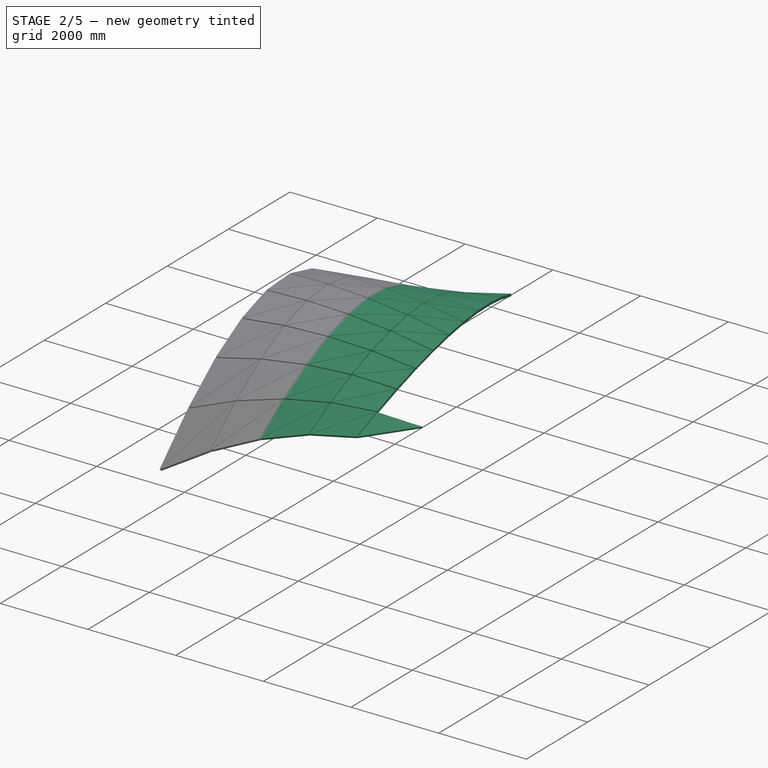
[diagram: stage 2 of 5 — iso view after this stage's code; geometry added in this stage tinted green]
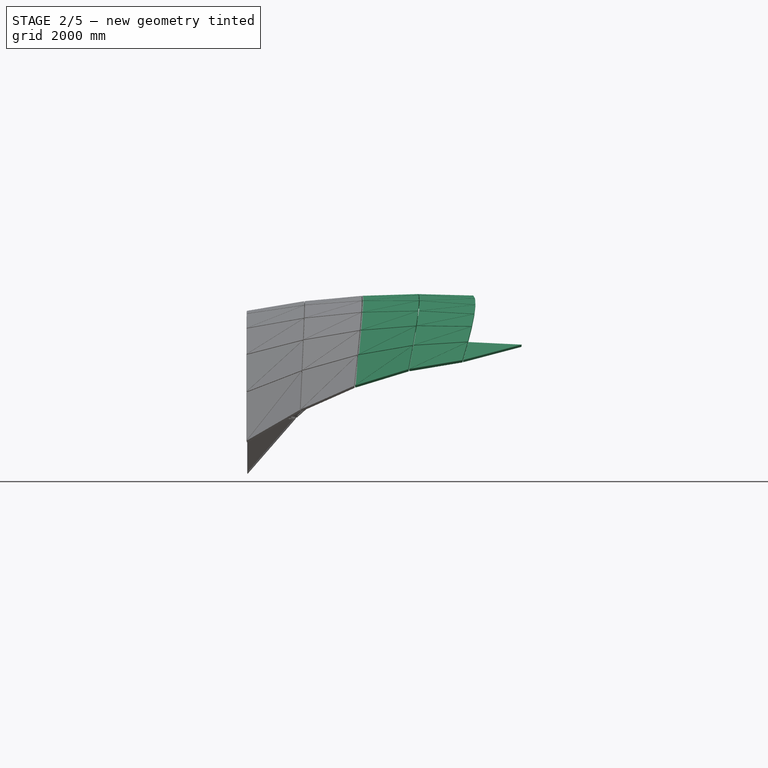
[diagram: stage 2 of 5 — front view after this stage's code; geometry added in this stage tinted green]
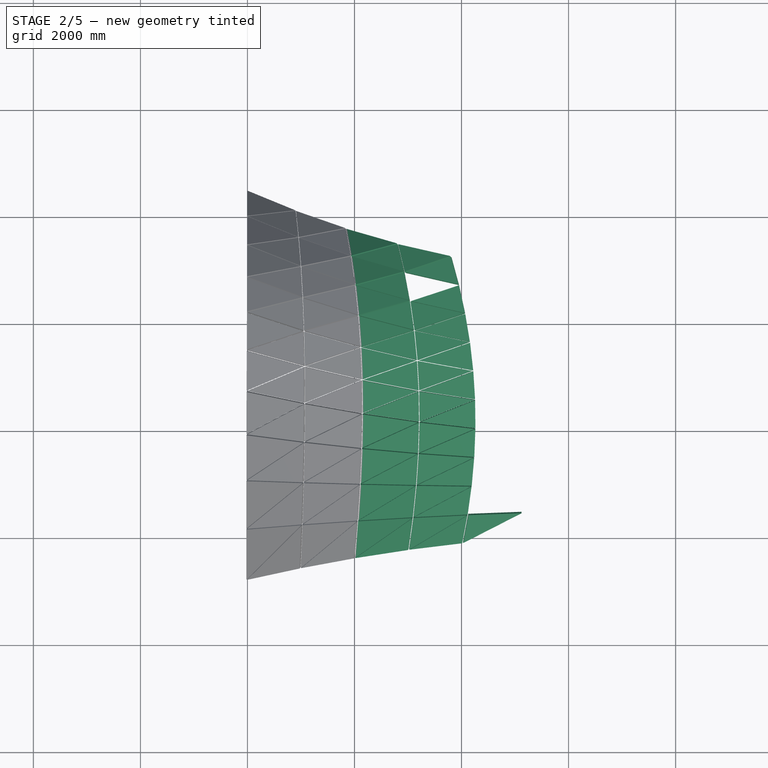
[diagram: stage 2 of 5 — top view after this stage's code; geometry added in this stage tinted green]
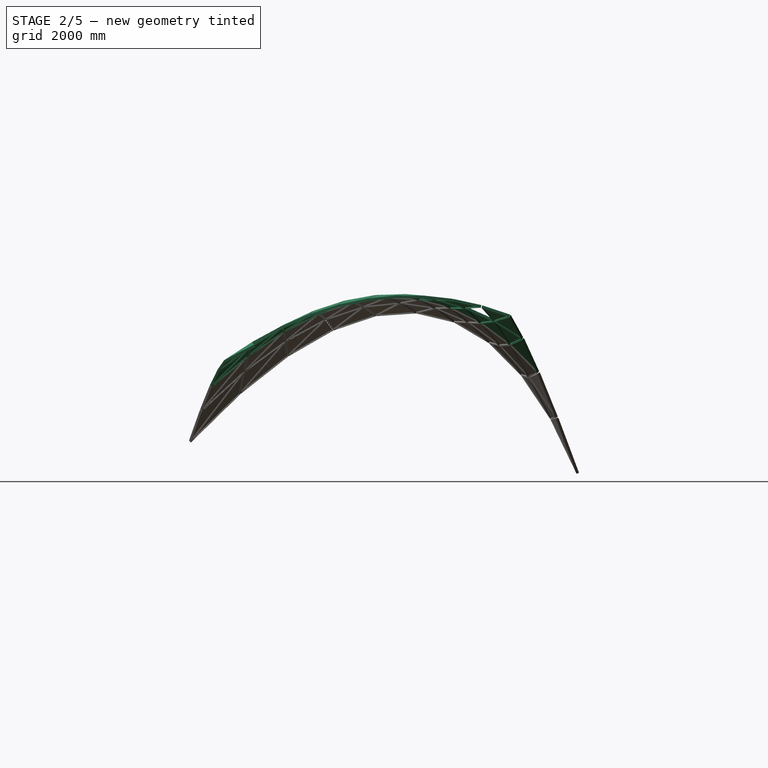
[diagram: stage 2 of 5 — right view after this stage's code; geometry added in this stage tinted green]
FEATURE [Part::Feature] wireCompound_3b9e7345_c3f4_45c0_96e0_b0bb73519ac9
  shape: bbox 1092 x 553.5 x 335.6 mm, 0 faces, 0 solids (baked)
FEATURE [Part::FeaturePython] Window119  # Arch/BIM 170 (typed FeaturePython)
  Area = 0
  Base = -> wireCompound_3b9e7345_c3f4_45c0_96e0_b0bb73519ac9
  Frame = 0
  Height = 0
  HoleDepth = 0
  HoleWire = 0
  HorizontalArea = 0
  IfcType = 170
  LouvreSpacing = 0
  LouvreWidth = 0
  MoveBase = false
  MoveWithHost = true
  Normal = (0.0618128,-0.552976,0.830901)
  Opening = 0
  OverallHeight = 0
  OverallWidth = 0
  PartitioningType = 0
  PerimeterLength = 0
  PredefinedType = 0
  Preset = 0
  SymbolElevation = false
  SymbolPlan = false
  VerticalArea = 0
  Width = 0
  WindowParts = WindowFrame | Frame | Wire0,Wire1 | 50 | 0 | glass | Glass panel | Wire1 | 25 | 25
  expr: OverallWidth = .Width.Value
  expr: OverallHeight = .Height.Value
FEATURE [Part::Feature] wireCompound_28948ae5_1c71_425a_b094_98db24ad41b4
  shape: bbox 992.6 x 518.7 x 259.8 mm, 0 faces, 0 solids (baked)
FEATURE [Part::FeaturePython] Window120  # Arch/BIM 170 (typed FeaturePython)
  Area = 0
  Base = -> wireCompound_28948ae5_1c71_425a_b094_98db24ad41b4
  Frame = 0
  Height = 0
  HoleDepth = 0
  HoleWire = 0
  HorizontalArea = 0
  IfcType = 170
  LouvreSpacing = 0
  LouvreWidth = 0
  MoveBase = false
  MoveWithHost = true
  Normal = (-0.187003,0.261235,0.946988)
  Opening = 0
  OverallHeight = 0
  OverallWidth = 0
  PartitioningType = 0
  PerimeterLength = 0
  PredefinedType = 0
  Preset = 0
  SymbolElevation = false
  SymbolPlan = false
  VerticalArea = 0
  Width = 0
  WindowParts = WindowFrame | Frame | Wire0,Wire1 | 50 | 0 | glass | Glass panel | Wire1 | 25 | 25
  expr: OverallWidth = .Width.Value
  expr: OverallHeight = .Height.Value
FEATURE [Part::Feature] wireCompound_3f171e7d_0055_49a3_b255_e2c3334b91ab
  shape: bbox 975.7 x 517.2 x 412 mm, 0 faces, 0 solids (baked)
FEATURE [Part::FeaturePython] Window121  # Arch/BIM 170 (typed FeaturePython)
  Area = 0
  Base = -> wireCompound_3f171e7d_0055_49a3_b255_e2c3334b91ab
  Frame = 0
  Height = 0
  HoleDepth = 0
  HoleWire = 0
  HorizontalArea = 0
  IfcType = 170
  LouvreSpacing = 0
  LouvreWidth = 0
  MoveBase = false
  MoveWithHost = true
  Normal = (-0.247076,0.470686,0.847)
  Opening = 0
  OverallHeight = 0
  OverallWidth = 0
  PartitioningType = 0
  PerimeterLength = 0
  PredefinedType = 0
  Preset = 0
  SymbolElevation = false
  SymbolPlan = false
  VerticalArea = 0
  Width = 0
  WindowParts = WindowFrame | Frame | Wire0,Wire1 | 50 | 0 | glass | Glass panel | Wire1 | 25 | 25
  expr: OverallWidth = .Width.Value
  expr: OverallHeight = .Height.Value
FEATURE [Part::Feature] wireCompound_a6f61276_933e_4610_89f3_e951739c66dc
  shape: bbox 1007 x 519.4 x 136 mm, 0 faces, 0 solids (baked)
FEATURE [Part::FeaturePython] Window122  # Arch/BIM 170 (typed FeaturePython)
  Area = 0
  Base = -> wireCompound_a6f61276_933e_4610_89f3_e951739c66dc
  Frame = 0
  Height = 0
  HoleDepth = 0
  HoleWire = 0
  HorizontalArea = 0
  IfcType = 170
  LouvreSpacing = 0
  LouvreWidth = 0
  MoveBase = false
  MoveWithHost = true
  Normal = (-0.0883037,0.195464,0.976727)
  Opening = 0
  OverallHeight = 0
  OverallWidth = 0
  PartitioningType = 0
  PerimeterLength = 0
  PredefinedType = 0
  Preset = 0
  SymbolElevation = false
  SymbolPlan = false
  VerticalArea = 0
  Width = 0
  WindowParts = WindowFrame | Frame | Wire0,Wire1 | 50 | 0 | glass | Glass panel | Wire1 | 25 | 25
  expr: OverallWidth = .Width.Value
  expr: OverallHeight = .Height.Value
FEATURE [Part::Feature] wireCompound_59f7d1de_da8b_40e5_bea2_9a61eef9ccc1
  shape: bbox 1017 x 519.7 x 57.71 mm, 0 faces, 0 solids (baked)
FEATURE [Part::FeaturePython] Window124  # Arch/BIM 170 (typed FeaturePython)
  Area = 0
  Base = -> wireCompound_59f7d1de_da8b_40e5_bea2_9a61eef9ccc1
  Frame = 0
  Height = 0
  HoleDepth = 0
  HoleWire = 0
  HorizontalArea = 0
  IfcType = 170
  LouvreSpacing = 0
  LouvreWidth = 0
  MoveBase = false
  MoveWithHost = true
  Normal = (-0.0173185,0.107537,0.99405)
  Opening = 0
  OverallHeight = 0
  OverallWidth = 0
  PartitioningType = 0
  PerimeterLength = 0
  PredefinedType = 0
  Preset = 0
  SymbolElevation = false
  SymbolPlan = false
  VerticalArea = 0
  Width = 0
  WindowParts = WindowFrame | Frame | Wire0,Wire1 | 50 | 0 | glass | Glass panel | Wire1 | 25 | 25
  expr: OverallWidth = .Width.Value
  expr: OverallHeight = .Height.Value
FEATURE [Part::Feature] wireCompound_e1a6311a_13eb_480f_9210_97a381dd2405
  shape: bbox 1008 x 535.2 x 153.5 mm, 0 faces, 0 solids (baked)
FEATURE [Part::FeaturePython] Window125  # Arch/BIM 170 (typed FeaturePython)
  Area = 0
  Base = -> wireCompound_e1a6311a_13eb_480f_9210_97a381dd2405
  Frame = 0
  Height = 0
  HoleDepth = 0
  HoleWire = 0
  HorizontalArea = 0
  IfcType = 170
  LouvreSpacing = 0
  LouvreWidth = 0
  MoveBase = false
  MoveWithHost = true
  Normal = (-0.0705441,0.265781,0.961449)
  Opening = 0
  OverallHeight = 0
  OverallWidth = 0
  PartitioningType = 0
  PerimeterLength = 0
  PredefinedType = 0
  Preset = 0
  SymbolElevation = false
  SymbolPlan = false
  VerticalArea = 0
  Width = 0
  WindowParts = WindowFrame | Frame | Wire0,Wire1 | 50 | 0 | glass | Glass panel | Wire1 | 25 | 25
  expr: OverallWidth = .Width.Value
  expr: OverallHeight = .Height.Value
FEATURE [Part::Feature] wireCompound_1a0383b1_9c95_4264_84ff_800b1a6e559b
  shape: bbox 1024 x 519.8 x 28.13 mm, 0 faces, 0 solids (baked)
FEATURE [Part::FeaturePython] Window126  # Arch/BIM 170 (typed FeaturePython)
  Area = 0
  Base = -> wireCompound_1a0383b1_9c95_4264_84ff_800b1a6e559b
  Frame = 0
  Height = 0
  HoleDepth = 0
  HoleWire = 0
  HorizontalArea = 0
  IfcType = 170
  LouvreSpacing = 0
  LouvreWidth = 0
  MoveBase = false
  MoveWithHost = true
  Normal = (0.0271615,0.00569778,0.999615)
  Opening = 0
  OverallHeight = 0
  OverallWidth = 0
  PartitioningType = 0
  PerimeterLength = 0
  PredefinedType = 0
  Preset = 0
  SymbolElevation = false
  SymbolPlan = false
  VerticalArea = 0
  Width = 0
  WindowParts = WindowFrame | Frame | Wire0,Wire1 | 50 | 0 | glass | Glass panel | Wire1 | 25 | 25
  expr: OverallWidth = .Width.Value
  expr: OverallHeight = .Height.Value
FEATURE [Part::Feature] wireCompound_b433d354_b035_4a4a_a13d_4acac32faeba
  shape: bbox 1018 x 543.6 x 68.62 mm, 0 faces, 0 solids (baked)
FEATURE [Part::FeaturePython] Window127  # Arch/BIM 170 (typed FeaturePython)
  Area = 0
  Base = -> wireCompound_b433d354_b035_4a4a_a13d_4acac32faeba
  Frame = 0
  Height = 0
  HoleDepth = 0
  HoleWire = 0
  HorizontalArea = 0
  IfcType = 170
  LouvreSpacing = 0
  LouvreWidth = 0
  MoveBase = false
  MoveWithHost = true
  Normal = (-0.0138685,0.123911,0.992196)
  Opening = 0
  OverallHeight = 0
  OverallWidth = 0
  PartitioningType = 0
  PerimeterLength = 0
  PredefinedType = 0
  Preset = 0
  SymbolElevation = false
  SymbolPlan = false
  VerticalArea = 0
  Width = 0
  WindowParts = WindowFrame | Frame | Wire0,Wire1 | 50 | 0 | glass | Glass panel | Wire1 | 25 | 25
  expr: OverallWidth = .Width.Value
  expr: OverallHeight = .Height.Value
FEATURE [Part::Feature] wireCompound_9cbe7488_3268_4f0c_836e_eb1fd7a4fc70
  shape: bbox 1027 x 519.5 x 65.45 mm, 0 faces, 0 solids (baked)
FEATURE [Part::FeaturePython] Window128  # Arch/BIM 170 (typed FeaturePython)
  Area = 0
  Base = -> wireCompound_9cbe7488_3268_4f0c_836e_eb1fd7a4fc70
  Frame = 0
  Height = 0
  HoleDepth = 0
  HoleWire = 0
  HorizontalArea = 0
  IfcType = 170
  LouvreSpacing = 0
  LouvreWidth = 0
  MoveBase = false
  MoveWithHost = true
  Normal = (0.0478828,-0.102172,0.993614)
  Opening = 0
  OverallHeight = 0
  OverallWidth = 0
  PartitioningType = 0
  PerimeterLength = 0
  PredefinedType = 0
  Preset = 0
  SymbolElevation = false
  SymbolPlan = false
  VerticalArea = 0
  Width = 0
  WindowParts = WindowFrame | Frame | Wire0,Wire1 | 50 | 0 | glass | Glass panel | Wire1 | 25 | 25
  expr: OverallWidth = .Width.Value
  expr: OverallHeight = .Height.Value
FEATURE [Part::Feature] wireCompound_da25fa04_b548_4054_abc8_4523077b2290
  shape: bbox 1025 x 551.4 x 26.8 mm, 0 faces, 0 solids (baked)
FEATURE [Part::FeaturePython] Window129  # Arch/BIM 170 (typed FeaturePython)
  Area = 0
  Base = -> wireCompound_da25fa04_b548_4054_abc8_4523077b2290
  Frame = 0
  Height = 0
  HoleDepth = 0
  HoleWire = 0
  HorizontalArea = 0
  IfcType = 170
  LouvreSpacing = 0
  LouvreWidth = 0
  MoveBase = false
  MoveWithHost = true
  Normal = (0.0209386,-0.0284512,0.999376)
  Opening = 0
  OverallHeight = 0
  OverallWidth = 0
  PartitioningType = 0
  PerimeterLength = 0
  PredefinedType = 0
  Preset = 0
  SymbolElevation = false
  SymbolPlan = false
  VerticalArea = 0
  Width = 0
  WindowParts = WindowFrame | Frame | Wire0,Wire1 | 50 | 0 | glass | Glass panel | Wire1 | 25 | 25
  expr: OverallWidth = .Width.Value
  expr: OverallHeight = .Height.Value
FEATURE [Part::Feature] wireCompound_0f57703e_bc15_41a8_bfc1_e3c61385171f
  shape: bbox 1026 x 518.9 x 111.3 mm, 0 faces, 0 solids (baked)
FEATURE [Part::FeaturePython] Window130  # Arch/BIM 170 (typed FeaturePython)
  Area = 0
  Base = -> wireCompound_0f57703e_bc15_41a8_bfc1_e3c61385171f
  Frame = 0
  Height = 0
  HoleDepth = 0
  HoleWire = 0
  HorizontalArea = 0
  IfcType = 170
  LouvreSpacing = 0
  LouvreWidth = 0
  MoveBase = false
  MoveWithHost = true
  Normal = (0.0484306,-0.208898,0.976738)
  Opening = 0
  OverallHeight = 0
  OverallWidth = 0
  PartitioningType = 0
  PerimeterLength = 0
  PredefinedType = 0
  Preset = 0
  SymbolElevation = false
  SymbolPlan = false
  VerticalArea = 0
  Width = 0
  WindowParts = WindowFrame | Frame | Wire0,Wire1 | 50 | 0 | glass | Glass panel | Wire1 | 25 | 25
  expr: OverallWidth = .Width.Value
  expr: OverallHeight = .Height.Value
FEATURE [Part::Feature] wireCompound_382b7b03_e71e_4131_943e_b8a721decf17
  shape: bbox 1029 x 558.7 x 101.2 mm, 0 faces, 0 solids (baked)
FEATURE [Part::FeaturePython] Window131  # Arch/BIM 170 (typed FeaturePython)
  Area = 0
  Base = -> wireCompound_382b7b03_e71e_4131_943e_b8a721decf17
  Frame = 0
  Height = 0
  HoleDepth = 0
  HoleWire = 0
  HorizontalArea = 0
  IfcType = 170
  LouvreSpacing = 0
  LouvreWidth = 0
  MoveBase = false
  MoveWithHost = true
  Normal = (0.0358457,-0.177628,0.983445)
  Opening = 0
  OverallHeight = 0
  OverallWidth = 0
  PartitioningType = 0
  PerimeterLength = 0
  PredefinedType = 0
  Preset = 0
  SymbolElevation = false
  SymbolPlan = false
  VerticalArea = 0
  Width = 0
  WindowParts = WindowFrame | Frame | Wire0,Wire1 | 50 | 0 | glass | Glass panel | Wire1 | 25 | 25
  expr: OverallWidth = .Width.Value
  expr: OverallHeight = .Height.Value
FEATURE [Part::Feature] wireCompound_ddfc618e_a067_4a41_a378_b81c42a2811c
  shape: bbox 1042 x 518.1 x 167.5 mm, 0 faces, 0 solids (baked)
FEATURE [Part::FeaturePython] Window132  # Arch/BIM 170 (typed FeaturePython)
  Area = 0
  Base = -> wireCompound_ddfc618e_a067_4a41_a378_b81c42a2811c
  Frame = 0
  Height = 0
  HoleDepth = 0
  HoleWire = 0
  HorizontalArea = 0
  IfcType = 170
  LouvreSpacing = 0
  LouvreWidth = 0
  MoveBase = false
  MoveWithHost = true
  Normal = (0.032753,-0.30861,0.950625)
  Opening = 0
  OverallHeight = 0
  OverallWidth = 0
  PartitioningType = 0
  PerimeterLength = 0
  PredefinedType = 0
  Preset = 0
  SymbolElevation = false
  SymbolPlan = false
  VerticalArea = 0
  Width = 0
  WindowParts = WindowFrame | Frame | Wire0,Wire1 | 50 | 0 | glass | Glass panel | Wire1 | 25 | 25
  expr: OverallWidth = .Width.Value
  expr: OverallHeight = .Height.Value
FEATURE [Part::Feature] wireCompound_ef3d78c0_e385_4d0a_8144_1c56fb618e4d
  shape: bbox 1043 x 565.8 x 185.9 mm, 0 faces, 0 solids (baked)
FEATURE [Part::FeaturePython] Window133  # Arch/BIM 170 (typed FeaturePython)
  Area = 0
  Base = -> wireCompound_ef3d78c0_e385_4d0a_8144_1c56fb618e4d
  Frame = 0
  Height = 0
  HoleDepth = 0
  HoleWire = 0
  HorizontalArea = 0
  IfcType = 170
  LouvreSpacing = 0
  LouvreWidth = 0
  MoveBase = false
  MoveWithHost = true
  Normal = (0.0346782,-0.31273,0.949209)
  Opening = 0
  OverallHeight = 0
  OverallWidth = 0
  PartitioningType = 0
  PerimeterLength = 0
  PredefinedType = 0
  Preset = 0
  SymbolElevation = false
  SymbolPlan = false
  VerticalArea = 0
  Width = 0
  WindowParts = WindowFrame | Frame | Wire0,Wire1 | 50 | 0 | glass | Glass panel | Wire1 | 25 | 25
  expr: OverallWidth = .Width.Value
  expr: OverallHeight = .Height.Value
FEATURE [Part::Feature] wireCompound_70119bb8_3bb8_4884_b08d_38ba5567ff19
  shape: bbox 1059 x 517 x 223.6 mm, 0 faces, 0 solids (baked)
FEATURE [Part::FeaturePython] Window134  # Arch/BIM 170 (typed FeaturePython)
  Area = 0
  Base = -> wireCompound_70119bb8_3bb8_4884_b08d_38ba5567ff19
  Frame = 0
  Height = 0
  HoleDepth = 0
  HoleWire = 0
  HorizontalArea = 0
  IfcType = 170
  LouvreSpacing = 0
  LouvreWidth = 0
  MoveBase = false
  MoveWithHost = true
  Normal = (0.00464891,-0.397242,0.917702)
  Opening = 0
  OverallHeight = 0
  OverallWidth = 0
  PartitioningType = 0
  PerimeterLength = 0
  PredefinedType = 0
  Preset = 0
  SymbolElevation = false
  SymbolPlan = false
  VerticalArea = 0
  Width = 0
  WindowParts = WindowFrame | Frame | Wire0,Wire1 | 50 | 0 | glass | Glass panel | Wire1 | 25 | 25
  expr: OverallWidth = .Width.Value
  expr: OverallHeight = .Height.Value
FEATURE [Part::Feature] wireCompound_ecc6f0c5_fdae_4841_9d38_1b67dbea4f63
  shape: bbox 1061 x 572.7 x 270.3 mm, 0 faces, 0 solids (baked)
FEATURE [Part::FeaturePython] Window135  # Arch/BIM 170 (typed FeaturePython)
  Area = 0
  Base = -> wireCompound_ecc6f0c5_fdae_4841_9d38_1b67dbea4f63
  Frame = 0
  Height = 0
  HoleDepth = 0
  HoleWire = 0
  HorizontalArea = 0
  IfcType = 170
  LouvreSpacing = 0
  LouvreWidth = 0
  MoveBase = false
  MoveWithHost = true
  Normal = (0.0220275,-0.427901,0.903557)
  Opening = 0
  OverallHeight = 0
  OverallWidth = 0
  PartitioningType = 0
  PerimeterLength = 0
  PredefinedType = 0
  Preset = 0
  SymbolElevation = false
  SymbolPlan = false
  VerticalArea = 0
  Width = 0
  WindowParts = WindowFrame | Frame | Wire0,Wire1 | 50 | 0 | glass | Glass panel | Wire1 | 25 | 25
  expr: OverallWidth = .Width.Value
  expr: OverallHeight = .Height.Value
FEATURE [Part::Feature] wireCompound_1fda83b3_f17c_4e0a_88ec_ed89c5cdc769
  shape: bbox 1071 x 563 x 341.9 mm, 0 faces, 0 solids (baked)
FEATURE [Part::FeaturePython] Window136  # Arch/BIM 170 (typed FeaturePython)
  Area = 0
  Base = -> wireCompound_1fda83b3_f17c_4e0a_88ec_ed89c5cdc769
  Frame = 0
  Height = 0
  HoleDepth = 0
  HoleWire = 0
  HorizontalArea = 0
  IfcType = 170
  LouvreSpacing = 0
  LouvreWidth = 0
  MoveBase = false
  MoveWithHost = true
  Normal = (-0.0327314,-0.472586,0.880677)
  Opening = 0
  OverallHeight = 0
  OverallWidth = 0
  PartitioningType = 0
  PerimeterLength = 0
  PredefinedType = 0
  Preset = 0
  SymbolElevation = false
  SymbolPlan = false
  VerticalArea = 0
  Width = 0
  WindowParts = WindowFrame | Frame | Wire0,Wire1 | 50 | 0 | glass | Glass panel | Wire1 | 25 | 25
  expr: OverallWidth = .Width.Value
  expr: OverallHeight = .Height.Value
FEATURE [Part::Feature] wireCompound_8fe3e42a_9567_4344_99b6_1da7fffb6b2d
  shape: bbox 1074 x 579.5 x 354.5 mm, 0 faces, 0 solids (baked)
FEATURE [Part::FeaturePython] Window137  # Arch/BIM 170 (typed FeaturePython)
  Area = 0
  Base = -> wireCompound_8fe3e42a_9567_4344_99b6_1da7fffb6b2d
  Frame = 0
  Height = 0
  HoleDepth = 0
  HoleWire = 0
  HorizontalArea = 0
  IfcType = 170
  LouvreSpacing = 0
  LouvreWidth = 0
  MoveBase = false
  MoveWithHost = true
  Normal = (0.00209493,-0.522001,0.852943)
  Opening = 0
  OverallHeight = 0
  OverallWidth = 0
  PartitioningType = 0
  PerimeterLength = 0
  PredefinedType = 0
  Preset = 0
  SymbolElevation = false
  SymbolPlan = false
  VerticalArea = 0
  Width = 0
  WindowParts = WindowFrame | Frame | Wire0,Wire1 | 50 | 0 | glass | Glass panel | Wire1 | 25 | 25
  expr: OverallWidth = .Width.Value
  expr: OverallHeight = .Height.Value
FEATURE [Part::Feature] wireCompound_e488d710_00d6_4f01_a4c0_e0e2c31f8bfe
  shape: bbox 1079 x 631.2 x 499.2 mm, 0 faces, 0 solids (baked)
FEATURE [Part::FeaturePython] Window138  # Arch/BIM 170 (typed FeaturePython)
  Area = 0
  Base = -> wireCompound_e488d710_00d6_4f01_a4c0_e0e2c31f8bfe
  Frame = 0
  Height = 0
  HoleDepth = 0
  HoleWire = 0
  HorizontalArea = 0
  IfcType = 170
  LouvreSpacing = 0
  LouvreWidth = 0
  MoveBase = false
  MoveWithHost = true
  Normal = (-0.0772592,-0.533882,0.842022)
  Opening = 0
  OverallHeight = 0
  OverallWidth = 0
  PartitioningType = 0
  PerimeterLength = 0
  PredefinedType = 0
  Preset = 0
  SymbolElevation = false
  SymbolPlan = false
  VerticalArea = 0
  Width = 0
  WindowParts = WindowFrame | Frame | Wire0,Wire1 | 50 | 0 | glass | Glass panel | Wire1 | 25 | 25
  expr: OverallWidth = .Width.Value
  expr: OverallHeight = .Height.Value
FEATURE [Part::Feature] wireCompound_0f1ecff8_54f1_43c4_8e74_3dd4df2ab407
  shape: bbox 1083 x 633.7 x 501.2 mm, 0 faces, 0 solids (baked)
FEATURE [Part::FeaturePython] Window139  # Arch/BIM 170 (typed FeaturePython)
  Area = 0
  Base = -> wireCompound_0f1ecff8_54f1_43c4_8e74_3dd4df2ab407
  Frame = 0
  Height = 0
  HoleDepth = 0
  HoleWire = 0
  HorizontalArea = 0
  IfcType = 170
  LouvreSpacing = 0
  LouvreWidth = 0
  MoveBase = false
  MoveWithHost = true
  Normal = (-0.0219375,-0.59684,0.80206)
  Opening = 0
  OverallHeight = 0
  OverallWidth = 0
  PartitioningType = 0
  PerimeterLength = 0
  PredefinedType = 0
  Preset = 0
  SymbolElevation = false
  SymbolPlan = false
  VerticalArea = 0
  Width = 0
  WindowParts = WindowFrame | Frame | Wire0,Wire1 | 50 | 0 | glass | Glass panel | Wire1 | 25 | 25
  expr: OverallWidth = .Width.Value
  expr: OverallHeight = .Height.Value
FEATURE [Part::Feature] wireCompound_1b7fefbb_14cb_4932_be79_13d5c7685af7
  shape: bbox 975.9 x 517 x 427.2 mm, 0 faces, 0 solids (baked)
FEATURE [Part::FeaturePython] Window140  # Arch/BIM 170 (typed FeaturePython)
  Area = 0
  Base = -> wireCompound_1b7fefbb_14cb_4932_be79_13d5c7685af7
  Frame = 0
  Height = 0
  HoleDepth = 0
  HoleWire = 0
  HorizontalArea = 0
  IfcType = 170
  LouvreSpacing = 0
  LouvreWidth = 0
  MoveBase = false
  MoveWithHost = true
  Normal = (-0.230896,0.475591,0.848823)
  Opening = 0
  OverallHeight = 0
  OverallWidth = 0
  PartitioningType = 0
  PerimeterLength = 0
  PredefinedType = 0
  Preset = 0
  SymbolElevation = false
  SymbolPlan = false
  VerticalArea = 0
  Width = 0
  WindowParts = WindowFrame | Frame | Wire0,Wire1 | 50 | 0 | glass | Glass panel | Wire1 | 25 | 25
  expr: OverallWidth = .Width.Value
  expr: OverallHeight = .Height.Value
FEATURE [Part::Feature] wireCompound_a905b253_b134_422f_933b_8ff0c8044cfe
  shape: bbox 948.5 x 511.7 x 618.9 mm, 0 faces, 0 solids (baked)
FEATURE [Part::FeaturePython] Window141  # Arch/BIM 170 (typed FeaturePython)
  Area = 0
  Base = -> wireCompound_a905b253_b134_422f_933b_8ff0c8044cfe
  Frame = 0
  Height = 0
  HoleDepth = 0
  HoleWire = 0
  HorizontalArea = 0
  IfcType = 170
  LouvreSpacing = 0
  LouvreWidth = 0
  MoveBase = false
  MoveWithHost = true
  Normal = (-0.262416,0.660153,0.703801)
  Opening = 0
  OverallHeight = 0
  OverallWidth = 0
  PartitioningType = 0
  PerimeterLength = 0
  PredefinedType = 0
  Preset = 0
  SymbolElevation = false
  SymbolPlan = false
  VerticalArea = 0
  Width = 0
  WindowParts = WindowFrame | Frame | Wire0,Wire1 | 50 | 0 | glass | Glass panel | Wire1 | 25 | 25
  expr: OverallWidth = .Width.Value
  expr: OverallHeight = .Height.Value
FEATURE [Part::Feature] wireCompound_4fbb9e4a_dcb2_4345_955f_fdfb0545622b
  shape: bbox 999.7 x 526.3 x 271.3 mm, 0 faces, 0 solids (baked)
FEATURE [Part::FeaturePython] Window142  # Arch/BIM 170 (typed FeaturePython)
  Area = 0
  Base = -> wireCompound_4fbb9e4a_dcb2_4345_955f_fdfb0545622b
  Frame = 0
  Height = 0
  HoleDepth = 0
  HoleWire = 0
  HorizontalArea = 0
  IfcType = 170
  LouvreSpacing = 0
  LouvreWidth = 0
  MoveBase = false
  MoveWithHost = true
  Normal = (-0.137595,0.386881,0.911806)
  Opening = 0
  OverallHeight = 0
  OverallWidth = 0
  PartitioningType = 0
  PerimeterLength = 0
  PredefinedType = 0
  Preset = 0
  SymbolElevation = false
  SymbolPlan = false
  VerticalArea = 0
  Width = 0
  WindowParts = WindowFrame | Frame | Wire0,Wire1 | 50 | 0 | glass | Glass panel | Wire1 | 25 | 25
  expr: OverallWidth = .Width.Value
  expr: OverallHeight = .Height.Value
FEATURE [Part::Feature] wireCompound_07ec8846_e9fb_4752_be6b_f9a3ea719e49
  shape: bbox 977.7 x 532.1 x 427.9 mm, 0 faces, 0 solids (baked)
FEATURE [Part::FeaturePython] Window143  # Arch/BIM 170 (typed FeaturePython)
  Area = 0
  Base = -> wireCompound_07ec8846_e9fb_4752_be6b_f9a3ea719e49
  Frame = 0
  Height = 0
  HoleDepth = 0
  HoleWire = 0
  HorizontalArea = 0
  IfcType = 170
  LouvreSpacing = 0
  LouvreWidth = 0
  MoveBase = false
  MoveWithHost = true
  Normal = (-0.182561,0.569223,0.801659)
  Opening = 0
  OverallHeight = 0
  OverallWidth = 0
  PartitioningType = 0
  PerimeterLength = 0
  PredefinedType = 0
  Preset = 0
  SymbolElevation = false
  SymbolPlan = false
  VerticalArea = 0
  Width = 0
  WindowParts = WindowFrame | Frame | Wire0,Wire1 | 50 | 0 | glass | Glass panel | Wire1 | 25 | 25
  expr: OverallWidth = .Width.Value
  expr: OverallHeight = .Height.Value
FEATURE [Part::Feature] wireCompound_43ccd052_b8b0_4d8b_a4ed_9b53a728dcb3
  shape: bbox 1018 x 535.2 x 153.5 mm, 0 faces, 0 solids (baked)
FEATURE [Part::FeaturePython] Window144  # Arch/BIM 170 (typed FeaturePython)
  Area = 0
  Base = -> wireCompound_43ccd052_b8b0_4d8b_a4ed_9b53a728dcb3
  Frame = 0
  Height = 0
  HoleDepth = 0
  HoleWire = 0
  HorizontalArea = 0
  IfcType = 170
  LouvreSpacing = 0
  LouvreWidth = 0
  MoveBase = false
  MoveWithHost = true
  Normal = (-0.0722145,0.265532,0.961394)
  Opening = 0
  OverallHeight = 0
  OverallWidth = 0
  PartitioningType = 0
  PerimeterLength = 0
  PredefinedType = 0
  Preset = 0
  SymbolElevation = false
  SymbolPlan = false
  VerticalArea = 0
  Width = 0
  WindowParts = WindowFrame | Frame | Wire0,Wire1 | 50 | 0 | glass | Glass panel | Wire1 | 25 | 25
  expr: OverallWidth = .Width.Value
  expr: OverallHeight = .Height.Value
FEATURE [Part::Feature] wireCompound_05b74f69_ef5a_438c_8346_9937a1673f7a
  shape: bbox 1001 x 552.3 x 274.8 mm, 0 faces, 0 solids (baked)
FEATURE [Part::FeaturePython] Window145  # Arch/BIM 170 (typed FeaturePython)
  Area = 0
  Base = -> wireCompound_05b74f69_ef5a_438c_8346_9937a1673f7a
  Frame = 0
  Height = 0
  HoleDepth = 0
  HoleWire = 0
  HorizontalArea = 0
  IfcType = 170
  LouvreSpacing = 0
  LouvreWidth = 0
  MoveBase = false
  MoveWithHost = true
  Normal = (-0.119788,0.432319,0.893729)
  Opening = 0
  OverallHeight = 0
  OverallWidth = 0
  PartitioningType = 0
  PerimeterLength = 0
  PredefinedType = 0
  Preset = 0
  SymbolElevation = false
  SymbolPlan = false
  VerticalArea = 0
  Width = 0
  WindowParts = WindowFrame | Frame | Wire0,Wire1 | 50 | 0 | glass | Glass panel | Wire1 | 25 | 25
  expr: OverallWidth = .Width.Value
  expr: OverallHeight = .Height.Value
FEATURE [Part::Feature] wireCompound_61883978_78e4_4241_a45c_ee16332905b5
  shape: bbox 1030 x 543.6 x 68.62 mm, 0 faces, 0 solids (baked)
FEATURE [Part::FeaturePython] Window146  # Arch/BIM 170 (typed FeaturePython)
  Area = 0
  Base = -> wireCompound_61883978_78e4_4241_a45c_ee16332905b5
  Frame = 0
  Height = 0
  HoleDepth = 0
  HoleWire = 0
  HorizontalArea = 0
  IfcType = 170
  LouvreSpacing = 0
  LouvreWidth = 0
  MoveBase = false
  MoveWithHost = true
  Normal = (-0.0341324,0.121934,0.991951)
  Opening = 0
  OverallHeight = 0
  OverallWidth = 0
  PartitioningType = 0
  PerimeterLength = 0
  PredefinedType = 0
  Preset = 0
  SymbolElevation = false
  SymbolPlan = false
  VerticalArea = 0
  Width = 0
  WindowParts = WindowFrame | Frame | Wire0,Wire1 | 50 | 0 | glass | Glass panel | Wire1 | 25 | 25
  expr: OverallWidth = .Width.Value
  expr: OverallHeight = .Height.Value
FEATURE [Part::Feature] wireCompound_f4b61d7b_dc4b_42c9_916a_a2e221fd5095
  shape: bbox 1019 x 572 x 154.2 mm, 0 faces, 0 solids (baked)
FEATURE [Part::FeaturePython] Window147  # Arch/BIM 170 (typed FeaturePython)
  Area = 0
  Base = -> wireCompound_f4b61d7b_dc4b_42c9_916a_a2e221fd5095
  Frame = 0
  Height = 0
  HoleDepth = 0
  HoleWire = 0
  HorizontalArea = 0
  IfcType = 170
  LouvreSpacing = 0
  LouvreWidth = 0
  MoveBase = false
  MoveWithHost = true
  Normal = (-0.0754666,0.25467,0.964079)
  Opening = 0
  OverallHeight = 0
  OverallWidth = 0
  PartitioningType = 0
  PerimeterLength = 0
  PredefinedType = 0
  Preset = 0
  SymbolElevation = false
  SymbolPlan = false
  VerticalArea = 0
  Width = 0
  WindowParts = WindowFrame | Frame | Wire0,Wire1 | 50 | 0 | glass | Glass panel | Wire1 | 25 | 25
  expr: OverallWidth = .Width.Value
  expr: OverallHeight = .Height.Value
FEATURE [Part::Feature] wireCompound_dc4ffe5f_8cc5_42d4_ad2f_e6b4d905f857
  shape: bbox 1037 x 551.4 x 31.77 mm, 0 faces, 0 solids (baked)
FEATURE [Part::FeaturePython] Window148  # Arch/BIM 170 (typed FeaturePython)
  Area = 0
  Base = -> wireCompound_dc4ffe5f_8cc5_42d4_ad2f_e6b4d905f857
  Frame = 0
  Height = 0
  HoleDepth = 0
  HoleWire = 0
  HorizontalArea = 0
  IfcType = 170
  LouvreSpacing = 0
  LouvreWidth = 0
  MoveBase = false
  MoveWithHost = true
  Normal = (-0.0208417,-0.0306917,0.999312)
  Opening = 0
  OverallHeight = 0
  OverallWidth = 0
  PartitioningType = 0
  PerimeterLength = 0
  PredefinedType = 0
  Preset = 0
  SymbolElevation = false
  SymbolPlan = false
  VerticalArea = 0
  Width = 0
  WindowParts = WindowFrame | Frame | Wire0,Wire1 | 50 | 0 | glass | Glass panel | Wire1 | 25 | 25
  expr: OverallWidth = .Width.Value
  expr: OverallHeight = .Height.Value
FEATURE [Part::Feature] wireCompound_f81cc3fb_114a_432e_9fdd_9d5313a020dc
  shape: bbox 1032 x 590.9 x 65.02 mm, 0 faces, 0 solids (baked)
FEATURE [Part::FeaturePython] Window149  # Arch/BIM 170 (typed FeaturePython)
  Area = 0
  Base = -> wireCompound_f81cc3fb_114a_432e_9fdd_9d5313a020dc
  Frame = 0
  Height = 0
  HoleDepth = 0
  HoleWire = 0
  HorizontalArea = 0
  IfcType = 170
  LouvreSpacing = 0
  LouvreWidth = 0
  MoveBase = false
  MoveWithHost = true
  Normal = (-0.0502577,0.0541039,0.99727)
  Opening = 0
  OverallHeight = 0
  OverallWidth = 0
  PartitioningType = 0
  PerimeterLength = 0
  PredefinedType = 0
  Preset = 0
  SymbolElevation = false
  SymbolPlan = false
  VerticalArea = 0
  Width = 0
  WindowParts = WindowFrame | Frame | Wire0,Wire1 | 50 | 0 | glass | Glass panel | Wire1 | 25 | 25
  expr: OverallWidth = .Width.Value
  expr: OverallHeight = .Height.Value
FEATURE [Part::Feature] wireCompound_f646ad7f_4b28_4394_a0bc_f81e63c09ba8
  shape: bbox 1039 x 558.8 x 103.1 mm, 0 faces, 0 solids (baked)
FEATURE [Part::FeaturePython] Window150  # Arch/BIM 170 (typed FeaturePython)
  Area = 0
  Base = -> wireCompound_f646ad7f_4b28_4394_a0bc_f81e63c09ba8
  Frame = 0
  Height = 0
  HoleDepth = 0
  HoleWire = 0
  HorizontalArea = 0
  IfcType = 170
  LouvreSpacing = 0
  LouvreWidth = 0
  MoveBase = false
  MoveWithHost = true
  Normal = (-0.0279222,-0.178465,0.98355)
  Opening = 0
  OverallHeight = 0
  OverallWidth = 0
  PartitioningType = 0
  PerimeterLength = 0
  PredefinedType = 0
  Preset = 0
  SymbolElevation = false
  SymbolPlan = false
  VerticalArea = 0
  Width = 0
  WindowParts = WindowFrame | Frame | Wire0,Wire1 | 50 | 0 | glass | Glass panel | Wire1 | 25 | 25
  expr: OverallWidth = .Width.Value
  expr: OverallHeight = .Height.Value
FEATURE [Part::Feature] wireCompound_41b36cbb_76b0_464b_b786_0ca263952db2
  shape: bbox 1039 x 608.7 x 103.2 mm, 0 faces, 0 solids (baked)
FEATURE [Part::FeaturePython] Window151  # Arch/BIM 170 (typed FeaturePython)
  Area = 0
  Base = -> wireCompound_41b36cbb_76b0_464b_b786_0ca263952db2
  Frame = 0
  Height = 0
  HoleDepth = 0
  HoleWire = 0
  HorizontalArea = 0
  IfcType = 170
  LouvreSpacing = 0
  LouvreWidth = 0
  MoveBase = false
  MoveWithHost = true
  Normal = (-0.042452,-0.14295,0.988819)
  Opening = 0
  OverallHeight = 0
  OverallWidth = 0
  PartitioningType = 0
  PerimeterLength = 0
  PredefinedType = 0
  Preset = 0
  SymbolElevation = false
  SymbolPlan = false
  VerticalArea = 0
  Width = 0
  WindowParts = WindowFrame | Frame | Wire0,Wire1 | 50 | 0 | glass | Glass panel | Wire1 | 25 | 25
  expr: OverallWidth = .Width.Value
  expr: OverallHeight = .Height.Value
FEATURE [Part::Feature] wireCompound_3ccb503f_64af_492f_9cb4_5aa9cf92d9e7
  shape: bbox 1049 x 565.7 x 209.8 mm, 0 faces, 0 solids (baked)
FEATURE [Part::FeaturePython] Window152  # Arch/BIM 170 (typed FeaturePython)
  Area = 0
  Base = -> wireCompound_3ccb503f_64af_492f_9cb4_5aa9cf92d9e7
  Frame = 0
  Height = 0
  HoleDepth = 0
  HoleWire = 0
  HorizontalArea = 0
  IfcType = 170
  LouvreSpacing = 0
  LouvreWidth = 0
  MoveBase = false
  MoveWithHost = true
  Normal = (-0.049835,-0.310501,0.949266)
  Opening = 0
  OverallHeight = 0
  OverallWidth = 0
  PartitioningType = 0
  PerimeterLength = 0
  PredefinedType = 0
  Preset = 0
  SymbolElevation = false
  SymbolPlan = false
  VerticalArea = 0
  Width = 0
  WindowParts = WindowFrame | Frame | Wire0,Wire1 | 50 | 0 | glass | Glass panel | Wire1 | 25 | 25
  expr: OverallWidth = .Width.Value
  expr: OverallHeight = .Height.Value
FEATURE [Part::Feature] wireCompound_976c4e74_a74b_4fa3_b9e8_448029987140
  shape: bbox 1051 x 626 x 210.1 mm, 0 faces, 0 solids (baked)
FEATURE [Part::FeaturePython] Window153  # Arch/BIM 170 (typed FeaturePython)
  Area = 0
  Base = -> wireCompound_976c4e74_a74b_4fa3_b9e8_448029987140
  Frame = 0
  Height = 0
  HoleDepth = 0
  HoleWire = 0
  HorizontalArea = 0
  IfcType = 170
  LouvreSpacing = 0
  LouvreWidth = 0
  MoveBase = false
  MoveWithHost = true
  Normal = (-0.0477734,-0.314535,0.948043)
  Opening = 0
  OverallHeight = 0
  OverallWidth = 0
  PartitioningType = 0
  PerimeterLength = 0
  PredefinedType = 0
  Preset = 0
  SymbolElevation = false
  SymbolPlan = false
  VerticalArea = 0
  Width = 0
  WindowParts = WindowFrame | Frame | Wire0,Wire1 | 50 | 0 | glass | Glass panel | Wire1 | 25 | 25
  expr: OverallWidth = .Width.Value
  expr: OverallHeight = .Height.Value
FEATURE [Part::Feature] wireCompound_b64f342d_f650_42d1_a2d9_851b3071b915
  shape: bbox 1061 x 572.4 x 351.4 mm, 0 faces, 0 solids (baked)
FEATURE [Part::FeaturePython] Window154  # Arch/BIM 170 (typed FeaturePython)
  Area = 0
  Base = -> wireCompound_b64f342d_f650_42d1_a2d9_851b3071b915
  Frame = 0
  Height = 0
  HoleDepth = 0
  HoleWire = 0
  HorizontalArea = 0
  IfcType = 170
  LouvreSpacing = 0
  LouvreWidth = 0
  MoveBase = false
  MoveWithHost = true
  Normal = (-0.081304,-0.421119,0.903354)
  Opening = 0
  OverallHeight = 0
  OverallWidth = 0
  PartitioningType = 0
  PerimeterLength = 0
  PredefinedType = 0
  Preset = 0
  SymbolElevation = false
  SymbolPlan = false
  VerticalArea = 0
  Width = 0
  WindowParts = WindowFrame | Frame | Wire0,Wire1 | 50 | 0 | glass | Glass panel | Wire1 | 25 | 25
  expr: OverallWidth = .Width.Value
  expr: OverallHeight = .Height.Value
FEATURE [Part::Feature] wireCompound_faefa66e_e85d_4db3_8c53_2dfc1f6f225f
  shape: bbox 1064 x 643.3 x 352.2 mm, 0 faces, 0 solids (baked)
FEATURE [Part::FeaturePython] Window155  # Arch/BIM 170 (typed FeaturePython)
  Area = 0
  Base = -> wireCompound_faefa66e_e85d_4db3_8c53_2dfc1f6f225f
  Frame = 0
  Height = 0
  HoleDepth = 0
  HoleWire = 0
  HorizontalArea = 0
  IfcType = 170
  LouvreSpacing = 0
  LouvreWidth = 0
  MoveBase = false
  MoveWithHost = true
  Normal = (-0.0611358,-0.451633,0.890107)
  Opening = 0
  OverallHeight = 0
  OverallWidth = 0
  PartitioningType = 0
  PerimeterLength = 0
  PredefinedType = 0
  Preset = 0
  SymbolElevation = false
  SymbolPlan = false
  VerticalArea = 0
  Width = 0
  WindowParts = WindowFrame | Frame | Wire0,Wire1 | 50 | 0 | glass | Glass panel | Wire1 | 25 | 25
  expr: OverallWidth = .Width.Value
  expr: OverallHeight = .Height.Value
FEATURE [Part::Feature] wireCompound_30e3e164_0691_48e0_9d5f_de4209f5eb0f
  shape: bbox 1067 x 635 x 527.7 mm, 0 faces, 0 solids (baked)
FEATURE [Part::FeaturePython] Window156  # Arch/BIM 170 (typed FeaturePython)
  Area = 0
  Base = -> wireCompound_30e3e164_0691_48e0_9d5f_de4209f5eb0f
  Frame = 0
  Height = 0
  HoleDepth = 0
  HoleWire = 0
  HorizontalArea = 0
  IfcType = 170
  LouvreSpacing = 0
  LouvreWidth = 0
  MoveBase = false
  MoveWithHost = true
  Normal = (-0.118372,-0.509395,0.852352)
  Opening = 0
  OverallHeight = 0
  OverallWidth = 0
  PartitioningType = 0
  PerimeterLength = 0
  PredefinedType = 0
  Preset = 0
  SymbolElevation = false
  SymbolPlan = false
  VerticalArea = 0
  Width = 0
  WindowParts = WindowFrame | Frame | Wire0,Wire1 | 50 | 0 | glass | Glass panel | Wire1 | 25 | 25
  expr: OverallWidth = .Width.Value
  expr: OverallHeight = .Height.Value
FEATURE [Part::Feature] wireCompound_9dbeff74_1c69_44d5_81a6_662851e8d195
  shape: bbox 1070 x 660.6 x 529.2 mm, 0 faces, 0 solids (baked)
FEATURE [Part::FeaturePython] Window157  # Arch/BIM 170 (typed FeaturePython)
  Area = 0
  Base = -> wireCompound_9dbeff74_1c69_44d5_81a6_662851e8d195
  Frame = 0
  Height = 0
  HoleDepth = 0
  HoleWire = 0
  HorizontalArea = 0
  IfcType = 170
  LouvreSpacing = 0
  LouvreWidth = 0
  MoveBase = false
  MoveWithHost = true
  Normal = (-0.0783906,-0.555924,0.827528)
  Opening = 0
  OverallHeight = 0
  OverallWidth = 0
  PartitioningType = 0
  PerimeterLength = 0
  PredefinedType = 0
  Preset = 0
  SymbolElevation = false
  SymbolPlan = false
  VerticalArea = 0
  Width = 0
  WindowParts = WindowFrame | Frame | Wire0,Wire1 | 50 | 0 | glass | Glass panel | Wire1 | 25 | 25
  expr: OverallWidth = .Width.Value
  expr: OverallHeight = .Height.Value
FEATURE [Part::Feature] wireCompound_2c6633b4_0923_4605_a0a1_8b3c4ede77bc
  shape: bbox 1066 x 731.4 x 738.2 mm, 0 faces, 0 solids (baked)
FEATURE [Part::FeaturePython] Window158  # Arch/BIM 170 (typed FeaturePython)
  Area = 0
  Base = -> wireCompound_2c6633b4_0923_4605_a0a1_8b3c4ede77bc
  Frame = 0
  Height = 0
  HoleDepth = 0
  HoleWire = 0
  HorizontalArea = 0
  IfcType = 170
  LouvreSpacing = 0
  LouvreWidth = 0
  MoveBase = false
  MoveWithHost = true
  Normal = (-0.15874,-0.577233,0.801002)
  Opening = 0
  OverallHeight = 0
  OverallWidth = 0
  PartitioningType = 0
  PerimeterLength = 0
  PredefinedType = 0
  Preset = 0
  SymbolElevation = false
  SymbolPlan = false
  VerticalArea = 0
  Width = 0
  WindowParts = WindowFrame | Frame | Wire0,Wire1 | 50 | 0 | glass | Glass panel | Wire1 | 25 | 25
  expr: OverallWidth = .Width.Value
  expr: OverallHeight = .Height.Value
FEATURE [Part::Feature] wireCompound_5c506cb5_a017_4ce9_9cdb_90a0a63814d7
  shape: bbox 1070 x 734.2 x 741.1 mm, 0 faces, 0 solids (baked)
FEATURE [Part::FeaturePython] Window159  # Arch/BIM 170 (typed FeaturePython)
  Area = 0
  Base = -> wireCompound_5c506cb5_a017_4ce9_9cdb_90a0a63814d7
  Frame = 0
  Height = 0
  HoleDepth = 0
  HoleWire = 0
  HorizontalArea = 0
  IfcType = 170
  LouvreSpacing = 0
  LouvreWidth = 0
  MoveBase = false
  MoveWithHost = true
  Normal = (-0.0968586,-0.633629,0.767549)
  Opening = 0
  OverallHeight = 0
  OverallWidth = 0
  PartitioningType = 0
  PerimeterLength = 0
  PredefinedType = 0
  Preset = 0
  SymbolElevation = false
  SymbolPlan = false
  VerticalArea = 0
  Width = 0
  WindowParts = WindowFrame | Frame | Wire0,Wire1 | 50 | 0 | glass | Glass panel | Wire1 | 25 | 25
  expr: OverallWidth = .Width.Value
  expr: OverallHeight = .Height.Value
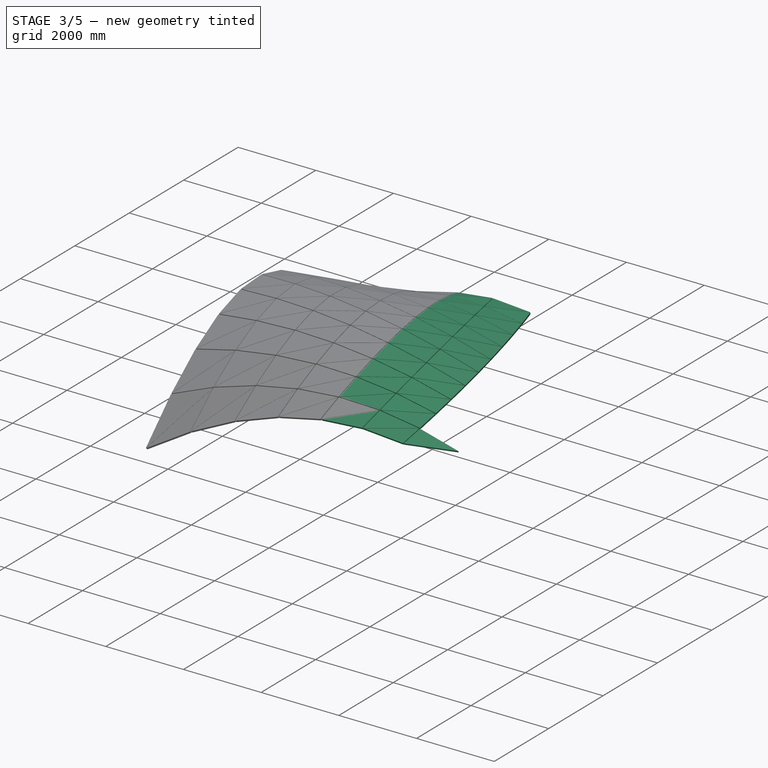
[diagram: stage 3 of 5 — iso view after this stage's code; geometry added in this stage tinted green]
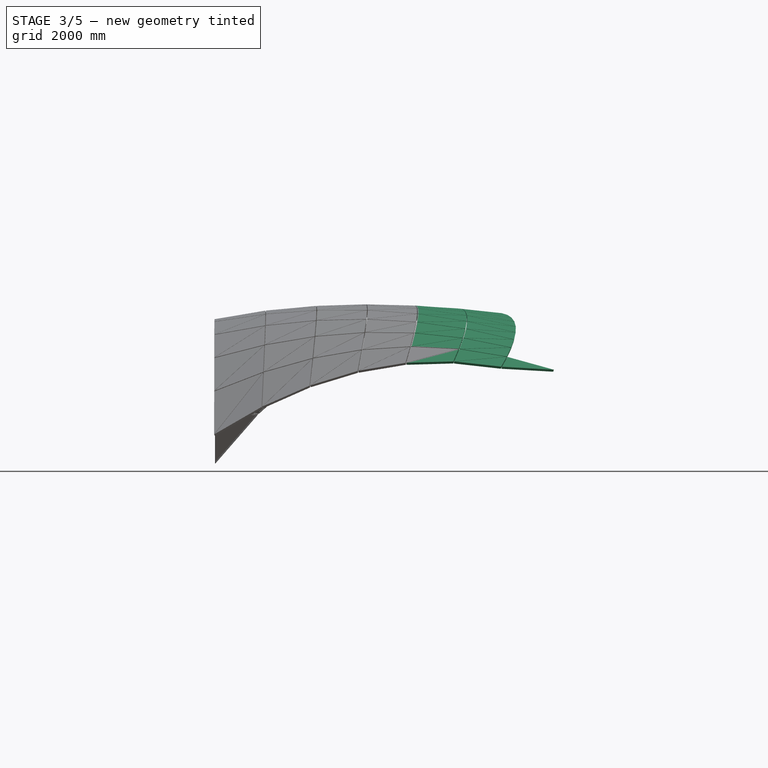
[diagram: stage 3 of 5 — front view after this stage's code; geometry added in this stage tinted green]
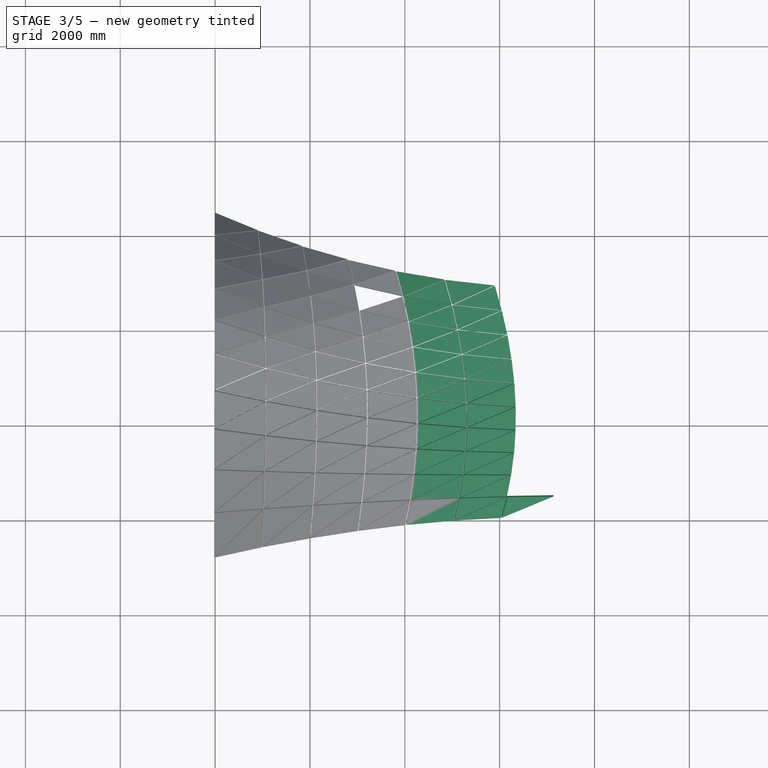
[diagram: stage 3 of 5 — top view after this stage's code; geometry added in this stage tinted green]
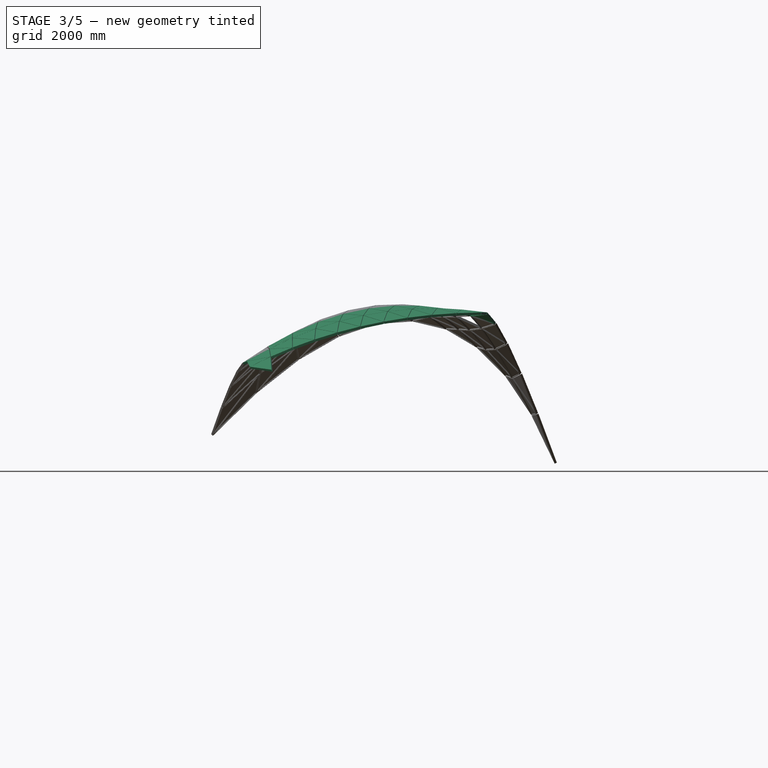
[diagram: stage 3 of 5 — right view after this stage's code; geometry added in this stage tinted green]
FEATURE [Part::Feature] wireCompound_f7042835_679a_4e0d_b720_ee7adde93676
  shape: bbox 1093 x 453.6 x 270 mm, 0 faces, 0 solids (baked)
FEATURE [Part::FeaturePython] Window079  # Arch/BIM 170 (typed FeaturePython)
  Area = 0
  Base = -> wireCompound_f7042835_679a_4e0d_b720_ee7adde93676
  Frame = 0
  Height = 0
  HoleDepth = 0
  HoleWire = 0
  HorizontalArea = 0
  IfcType = 170
  LouvreSpacing = 0
  LouvreWidth = 0
  MoveBase = false
  MoveWithHost = true
  Normal = (0.243757,-0.469573,0.848577)
  Opening = 0
  OverallHeight = 0
  OverallWidth = 0
  PartitioningType = 0
  PerimeterLength = 0
  PredefinedType = 0
  Preset = 0
  SymbolElevation = false
  SymbolPlan = false
  VerticalArea = 0
  Width = 0
  WindowParts = WindowFrame | Frame | Wire0,Wire1 | 50 | 0 | glass | Glass panel | Wire1 | 25 | 25
  expr: OverallWidth = .Width.Value
  expr: OverallHeight = .Height.Value
FEATURE [Part::Feature] wireCompound_2b461c1e_7761_4909_8d4d_cbda5f536cf5
  shape: bbox 1025 x 512.6 x 74.45 mm, 0 faces, 0 solids (baked)
FEATURE [Part::FeaturePython] Window080  # Arch/BIM 170 (typed FeaturePython)
  Area = 0
  Base = -> wireCompound_2b461c1e_7761_4909_8d4d_cbda5f536cf5
  Frame = 0
  Height = 0
  HoleDepth = 0
  HoleWire = 0
  HorizontalArea = 0
  IfcType = 170
  LouvreSpacing = 0
  LouvreWidth = 0
  MoveBase = false
  MoveWithHost = true
  Normal = (0.0715008,-0.00870473,0.997403)
  Opening = 0
  OverallHeight = 0
  OverallWidth = 0
  PartitioningType = 0
  PerimeterLength = 0
  PredefinedType = 0
  Preset = 0
  SymbolElevation = false
  SymbolPlan = false
  VerticalArea = 0
  Width = 0
  WindowParts = WindowFrame | Frame | Wire0,Wire1 | 50 | 0 | glass | Glass panel | Wire1 | 25 | 25
  expr: OverallWidth = .Width.Value
  expr: OverallHeight = .Height.Value
FEATURE [Part::Feature] wireCompound_d8ed2c5a_a900_4105_82d6_9641e3c6c9ae
  shape: bbox 1029 x 517.4 x 59.78 mm, 0 faces, 0 solids (baked)
FEATURE [Part::FeaturePython] Window081  # Arch/BIM 170 (typed FeaturePython)
  Area = 0
  Base = -> wireCompound_d8ed2c5a_a900_4105_82d6_9641e3c6c9ae
  Frame = 0
  Height = 0
  HoleDepth = 0
  HoleWire = 0
  HorizontalArea = 0
  IfcType = 170
  LouvreSpacing = 0
  LouvreWidth = 0
  MoveBase = false
  MoveWithHost = true
  Normal = (0.0146672,0.11563,0.993184)
  Opening = 0
  OverallHeight = 0
  OverallWidth = 0
  PartitioningType = 0
  PerimeterLength = 0
  PredefinedType = 0
  Preset = 0
  SymbolElevation = false
  SymbolPlan = false
  VerticalArea = 0
  Width = 0
  WindowParts = WindowFrame | Frame | Wire0,Wire1 | 50 | 0 | glass | Glass panel | Wire1 | 25 | 25
  expr: OverallWidth = .Width.Value
  expr: OverallHeight = .Height.Value
FEATURE [Part::Feature] wireCompound_ba36c41c_91e3_4cc9_be8b_38a2bc9a9652
  shape: bbox 1021 x 504.2 x 133.3 mm, 0 faces, 0 solids (baked)
FEATURE [Part::FeaturePython] Window082  # Arch/BIM 170 (typed FeaturePython)
  Area = 0
  Base = -> wireCompound_ba36c41c_91e3_4cc9_be8b_38a2bc9a9652
  Frame = 0
  Height = 0
  HoleDepth = 0
  HoleWire = 0
  HorizontalArea = 0
  IfcType = 170
  LouvreSpacing = 0
  LouvreWidth = 0
  MoveBase = false
  MoveWithHost = true
  Normal = (0.125042,-0.0428495,0.991226)
  Opening = 0
  OverallHeight = 0
  OverallWidth = 0
  PartitioningType = 0
  PerimeterLength = 0
  PredefinedType = 0
  Preset = 0
  SymbolElevation = false
  SymbolPlan = false
  VerticalArea = 0
  Width = 0
  WindowParts = WindowFrame | Frame | Wire0,Wire1 | 50 | 0 | glass | Glass panel | Wire1 | 25 | 25
  expr: OverallWidth = .Width.Value
  expr: OverallHeight = .Height.Value
FEATURE [Part::Feature] wireCompound_84ddf5b0_6982_45f7_9c1d_de85dbce6046
  shape: bbox 1025 x 512.1 x 97.19 mm, 0 faces, 0 solids (baked)
FEATURE [Part::FeaturePython] Window083  # Arch/BIM 170 (typed FeaturePython)
  Area = 0
  Base = -> wireCompound_84ddf5b0_6982_45f7_9c1d_de85dbce6046
  Frame = 0
  Height = 0
  HoleDepth = 0
  HoleWire = 0
  HorizontalArea = 0
  IfcType = 170
  LouvreSpacing = 0
  LouvreWidth = 0
  MoveBase = false
  MoveWithHost = true
  Normal = (0.079022,0.0622636,0.994927)
  Opening = 0
  OverallHeight = 0
  OverallWidth = 0
  PartitioningType = 0
  PerimeterLength = 0
  PredefinedType = 0
  Preset = 0
  SymbolElevation = false
  SymbolPlan = false
  VerticalArea = 0
  Width = 0
  WindowParts = WindowFrame | Frame | Wire0,Wire1 | 50 | 0 | glass | Glass panel | Wire1 | 25 | 25
  expr: OverallWidth = .Width.Value
  expr: OverallHeight = .Height.Value
FEATURE [Part::Feature] wireCompound_60276289_955a_454b_bace_355506e52a5d
  shape: bbox 1017 x 495.8 x 178.3 mm, 0 faces, 0 solids (baked)
FEATURE [Part::FeaturePython] Window084  # Arch/BIM 170 (typed FeaturePython)
  Area = 0
  Base = -> wireCompound_60276289_955a_454b_bace_355506e52a5d
  Frame = 0
  Height = 0
  HoleDepth = 0
  HoleWire = 0
  HorizontalArea = 0
  IfcType = 170
  LouvreSpacing = 0
  LouvreWidth = 0
  MoveBase = false
  MoveWithHost = true
  Normal = (0.164411,-0.0859594,0.982639)
  Opening = 0
  OverallHeight = 0
  OverallWidth = 0
  PartitioningType = 0
  PerimeterLength = 0
  PredefinedType = 0
  Preset = 0
  SymbolElevation = false
  SymbolPlan = false
  VerticalArea = 0
  Width = 0
  WindowParts = WindowFrame | Frame | Wire0,Wire1 | 50 | 0 | glass | Glass panel | Wire1 | 25 | 25
  expr: OverallWidth = .Width.Value
  expr: OverallHeight = .Height.Value
FEATURE [Part::Feature] wireCompound_19fdbed8_d20b_431d_b71d_d2c5730a83c2
  shape: bbox 1021 x 506.6 x 133.3 mm, 0 faces, 0 solids (baked)
FEATURE [Part::FeaturePython] Window085  # Arch/BIM 170 (typed FeaturePython)
  Area = 0
  Base = -> wireCompound_19fdbed8_d20b_431d_b71d_d2c5730a83c2
  Frame = 0
  Height = 0
  HoleDepth = 0
  HoleWire = 0
  HorizontalArea = 0
  IfcType = 170
  LouvreSpacing = 0
  LouvreWidth = 0
  MoveBase = false
  MoveWithHost = true
  Normal = (0.12924,-0.00191501,0.991612)
  Opening = 0
  OverallHeight = 0
  OverallWidth = 0
  PartitioningType = 0
  PerimeterLength = 0
  PredefinedType = 0
  Preset = 0
  SymbolElevation = false
  SymbolPlan = false
  VerticalArea = 0
  Width = 0
  WindowParts = WindowFrame | Frame | Wire0,Wire1 | 50 | 0 | glass | Glass panel | Wire1 | 25 | 25
  expr: OverallWidth = .Width.Value
  expr: OverallHeight = .Height.Value
FEATURE [Part::Feature] wireCompound_70a6189c_1aa8_4f73_9ec2_8f9906150d32
  shape: bbox 1012 x 487.2 x 209.4 mm, 0 faces, 0 solids (baked)
FEATURE [Part::FeaturePython] Window086  # Arch/BIM 170 (typed FeaturePython)
  Area = 0
  Base = -> wireCompound_70a6189c_1aa8_4f73_9ec2_8f9906150d32
  Frame = 0
  Height = 0
  HoleDepth = 0
  HoleWire = 0
  HorizontalArea = 0
  IfcType = 170
  LouvreSpacing = 0
  LouvreWidth = 0
  MoveBase = false
  MoveWithHost = true
  Normal = (0.1905,-0.135693,0.972264)
  Opening = 0
  OverallHeight = 0
  OverallWidth = 0
  PartitioningType = 0
  PerimeterLength = 0
  PredefinedType = 0
  Preset = 0
  SymbolElevation = false
  SymbolPlan = false
  VerticalArea = 0
  Width = 0
  WindowParts = WindowFrame | Frame | Wire0,Wire1 | 50 | 0 | glass | Glass panel | Wire1 | 25 | 25
  expr: OverallWidth = .Width.Value
  expr: OverallHeight = .Height.Value
FEATURE [Part::Feature] wireCompound_dbcdf381_c0b9_4df9_ac6c_d422f1a787ab
  shape: bbox 1017 x 501 x 178.3 mm, 0 faces, 0 solids (baked)
FEATURE [Part::FeaturePython] Window087  # Arch/BIM 170 (typed FeaturePython)
  Area = 0
  Base = -> wireCompound_dbcdf381_c0b9_4df9_ac6c_d422f1a787ab
  Frame = 0
  Height = 0
  HoleDepth = 0
  HoleWire = 0
  HorizontalArea = 0
  IfcType = 170
  LouvreSpacing = 0
  LouvreWidth = 0
  MoveBase = false
  MoveWithHost = true
  Normal = (0.165649,-0.0738668,0.983415)
  Opening = 0
  OverallHeight = 0
  OverallWidth = 0
  PartitioningType = 0
  PerimeterLength = 0
  PredefinedType = 0
  Preset = 0
  SymbolElevation = false
  SymbolPlan = false
  VerticalArea = 0
  Width = 0
  WindowParts = WindowFrame | Frame | Wire0,Wire1 | 50 | 0 | glass | Glass panel | Wire1 | 25 | 25
  expr: OverallWidth = .Width.Value
  expr: OverallHeight = .Height.Value
FEATURE [Part::Feature] wireCompound_54a266c8_e286_4dcb_9f97_39ef4301c03f
  shape: bbox 1008 x 478.6 x 226.8 mm, 0 faces, 0 solids (baked)
FEATURE [Part::FeaturePython] Window088  # Arch/BIM 170 (typed FeaturePython)
  Area = 0
  Base = -> wireCompound_54a266c8_e286_4dcb_9f97_39ef4301c03f
  Frame = 0
  Height = 0
  HoleDepth = 0
  HoleWire = 0
  HorizontalArea = 0
  IfcType = 170
  LouvreSpacing = 0
  LouvreWidth = 0
  MoveBase = false
  MoveWithHost = true
  Normal = (0.204321,-0.189778,0.960332)
  Opening = 0
  OverallHeight = 0
  OverallWidth = 0
  PartitioningType = 0
  PerimeterLength = 0
  PredefinedType = 0
  Preset = 0
  SymbolElevation = false
  SymbolPlan = false
  VerticalArea = 0
  Width = 0
  WindowParts = WindowFrame | Frame | Wire0,Wire1 | 50 | 0 | glass | Glass panel | Wire1 | 25 | 25
  expr: OverallWidth = .Width.Value
  expr: OverallHeight = .Height.Value
FEATURE [Part::Feature] wireCompound_2f47a5e2_abbb_4b5c_9c9b_097d1dc040f3
  shape: bbox 1013 x 495.2 x 209.5 mm, 0 faces, 0 solids (baked)
FEATURE [Part::FeaturePython] Window089  # Arch/BIM 170 (typed FeaturePython)
  Area = 0
  Base = -> wireCompound_2f47a5e2_abbb_4b5c_9c9b_097d1dc040f3
  Frame = 0
  Height = 0
  HoleDepth = 0
  HoleWire = 0
  HorizontalArea = 0
  IfcType = 170
  LouvreSpacing = 0
  LouvreWidth = 0
  MoveBase = false
  MoveWithHost = true
  Normal = (0.188956,-0.150478,0.970388)
  Opening = 0
  OverallHeight = 0
  OverallWidth = 0
  PartitioningType = 0
  PerimeterLength = 0
  PredefinedType = 0
  Preset = 0
  SymbolElevation = false
  SymbolPlan = false
  VerticalArea = 0
  Width = 0
  WindowParts = WindowFrame | Frame | Wire0,Wire1 | 50 | 0 | glass | Glass panel | Wire1 | 25 | 25
  expr: OverallWidth = .Width.Value
  expr: OverallHeight = .Height.Value
FEATURE [Part::Feature] wireCompound_29e84f24_7070_4e93_9f84_15ca89ea8016
  shape: bbox 1004 x 469.9 x 230.4 mm, 0 faces, 0 solids (baked)
FEATURE [Part::FeaturePython] Window090  # Arch/BIM 170 (typed FeaturePython)
  Area = 0
  Base = -> wireCompound_29e84f24_7070_4e93_9f84_15ca89ea8016
  Frame = 0
  Height = 0
  HoleDepth = 0
  HoleWire = 0
  HorizontalArea = 0
  IfcType = 170
  LouvreSpacing = 0
  LouvreWidth = 0
  MoveBase = false
  MoveWithHost = true
  Normal = (0.206916,-0.246028,0.946919)
  Opening = 0
  OverallHeight = 0
  OverallWidth = 0
  PartitioningType = 0
  PerimeterLength = 0
  PredefinedType = 0
  Preset = 0
  SymbolElevation = false
  SymbolPlan = false
  VerticalArea = 0
  Width = 0
  WindowParts = WindowFrame | Frame | Wire0,Wire1 | 50 | 0 | glass | Glass panel | Wire1 | 25 | 25
  expr: OverallWidth = .Width.Value
  expr: OverallHeight = .Height.Value
FEATURE [Part::Feature] wireCompound_b04d9a1c_aa38_46f9_82ba_d2540b94f29d
  shape: bbox 1008 x 489.2 x 226.9 mm, 0 faces, 0 solids (baked)
FEATURE [Part::FeaturePython] Window091  # Arch/BIM 170 (typed FeaturePython)
  Area = 0
  Base = -> wireCompound_b04d9a1c_aa38_46f9_82ba_d2540b94f29d
  Frame = 0
  Height = 0
  HoleDepth = 0
  HoleWire = 0
  HorizontalArea = 0
  IfcType = 170
  LouvreSpacing = 0
  LouvreWidth = 0
  MoveBase = false
  MoveWithHost = true
  Normal = (0.20018,-0.228676,0.952699)
  Opening = 0
  OverallHeight = 0
  OverallWidth = 0
  PartitioningType = 0
  PerimeterLength = 0
  PredefinedType = 0
  Preset = 0
  SymbolElevation = false
  SymbolPlan = false
  VerticalArea = 0
  Width = 0
  WindowParts = WindowFrame | Frame | Wire0,Wire1 | 50 | 0 | glass | Glass panel | Wire1 | 25 | 25
  expr: OverallWidth = .Width.Value
  expr: OverallHeight = .Height.Value
FEATURE [Part::Feature] wireCompound_976b460d_030b_401b_b628_1f0f70aca781
  shape: bbox 1027 x 461.1 x 220.3 mm, 0 faces, 0 solids (baked)
FEATURE [Part::FeaturePython] Window092  # Arch/BIM 170 (typed FeaturePython)
  Area = 0
  Base = -> wireCompound_976b460d_030b_401b_b628_1f0f70aca781
  Frame = 0
  Height = 0
  HoleDepth = 0
  HoleWire = 0
  HorizontalArea = 0
  IfcType = 170
  LouvreSpacing = 0
  LouvreWidth = 0
  MoveBase = false
  MoveWithHost = true
  Normal = (0.199318,-0.302369,0.932119)
  Opening = 0
  OverallHeight = 0
  OverallWidth = 0
  PartitioningType = 0
  PerimeterLength = 0
  PredefinedType = 0
  Preset = 0
  SymbolElevation = false
  SymbolPlan = false
  VerticalArea = 0
  Width = 0
  WindowParts = WindowFrame | Frame | Wire0,Wire1 | 50 | 0 | glass | Glass panel | Wire1 | 25 | 25
  expr: OverallWidth = .Width.Value
  expr: OverallHeight = .Height.Value
FEATURE [Part::Feature] wireCompound_d55a3617_d352_4cea_a5b6_5070fe53c80f
  shape: bbox 1028 x 483.2 x 230.6 mm, 0 faces, 0 solids (baked)
FEATURE [Part::FeaturePython] Window093  # Arch/BIM 170 (typed FeaturePython)
  Area = 0
  Base = -> wireCompound_d55a3617_d352_4cea_a5b6_5070fe53c80f
  Frame = 0
  Height = 0
  HoleDepth = 0
  HoleWire = 0
  HorizontalArea = 0
  IfcType = 170
  LouvreSpacing = 0
  LouvreWidth = 0
  MoveBase = false
  MoveWithHost = true
  Normal = (0.200606,-0.305618,0.930782)
  Opening = 0
  OverallHeight = 0
  OverallWidth = 0
  PartitioningType = 0
  PerimeterLength = 0
  PredefinedType = 0
  Preset = 0
  SymbolElevation = false
  SymbolPlan = false
  VerticalArea = 0
  Width = 0
  WindowParts = WindowFrame | Frame | Wire0,Wire1 | 50 | 0 | glass | Glass panel | Wire1 | 25 | 25
  expr: OverallWidth = .Width.Value
  expr: OverallHeight = .Height.Value
FEATURE [Part::Feature] wireCompound_0d062516_5cf0_4092_a0fa_fd0e0be49292
  shape: bbox 1050 x 454.2 x 196.5 mm, 0 faces, 0 solids (baked)
FEATURE [Part::FeaturePython] Window094  # Arch/BIM 170 (typed FeaturePython)
  Area = 0
  Base = -> wireCompound_0d062516_5cf0_4092_a0fa_fd0e0be49292
  Frame = 0
  Height = 0
  HoleDepth = 0
  HoleWire = 0
  HorizontalArea = 0
  IfcType = 170
  LouvreSpacing = 0
  LouvreWidth = 0
  MoveBase = false
  MoveWithHost = true
  Normal = (0.182519,-0.356886,0.916144)
  Opening = 0
  OverallHeight = 0
  OverallWidth = 0
  PartitioningType = 0
  PerimeterLength = 0
  PredefinedType = 0
  Preset = 0
  SymbolElevation = false
  SymbolPlan = false
  VerticalArea = 0
  Width = 0
  WindowParts = WindowFrame | Frame | Wire0,Wire1 | 50 | 0 | glass | Glass panel | Wire1 | 25 | 25
  expr: OverallWidth = .Width.Value
  expr: OverallHeight = .Height.Value
FEATURE [Part::Feature] wireCompound_641b4c2a_3716_4fea_a4b6_44b3af865179
  shape: bbox 1051 x 477.1 x 220.6 mm, 0 faces, 0 solids (baked)
FEATURE [Part::FeaturePython] Window095  # Arch/BIM 170 (typed FeaturePython)
  Area = 0
  Base = -> wireCompound_641b4c2a_3716_4fea_a4b6_44b3af865179
  Frame = 0
  Height = 0
  HoleDepth = 0
  HoleWire = 0
  HorizontalArea = 0
  IfcType = 170
  LouvreSpacing = 0
  LouvreWidth = 0
  MoveBase = false
  MoveWithHost = true
  Normal = (0.191707,-0.378881,0.905372)
  Opening = 0
  OverallHeight = 0
  OverallWidth = 0
  PartitioningType = 0
  PerimeterLength = 0
  PredefinedType = 0
  Preset = 0
  SymbolElevation = false
  SymbolPlan = false
  VerticalArea = 0
  Width = 0
  WindowParts = WindowFrame | Frame | Wire0,Wire1 | 50 | 0 | glass | Glass panel | Wire1 | 25 | 25
  expr: OverallWidth = .Width.Value
  expr: OverallHeight = .Height.Value
FEATURE [Part::Feature] wireCompound_4ce109d2_a767_4bfd_856e_4c075d6ff205
  shape: bbox 1071 x 471.9 x 185.6 mm, 0 faces, 0 solids (baked)
FEATURE [Part::FeaturePython] Window096  # Arch/BIM 170 (typed FeaturePython)
  Area = 0
  Base = -> wireCompound_4ce109d2_a767_4bfd_856e_4c075d6ff205
  Frame = 0
  Height = 0
  HoleDepth = 0
  HoleWire = 0
  HorizontalArea = 0
  IfcType = 170
  LouvreSpacing = 0
  LouvreWidth = 0
  MoveBase = false
  MoveWithHost = true
  Normal = (0.157409,-0.407861,0.899373)
  Opening = 0
  OverallHeight = 0
  OverallWidth = 0
  PartitioningType = 0
  PerimeterLength = 0
  PredefinedType = 0
  Preset = 0
  SymbolElevation = false
  SymbolPlan = false
  VerticalArea = 0
  Width = 0
  WindowParts = WindowFrame | Frame | Wire0,Wire1 | 50 | 0 | glass | Glass panel | Wire1 | 25 | 25
  expr: OverallWidth = .Width.Value
  expr: OverallHeight = .Height.Value
FEATURE [Part::Feature] wireCompound_b88e4b5f_483a_4f4a_9fe4_83bbba0e157f
  shape: bbox 1073 x 472.9 x 223.4 mm, 0 faces, 0 solids (baked)
FEATURE [Part::FeaturePython] Window097  # Arch/BIM 170 (typed FeaturePython)
  Area = 0
  Base = -> wireCompound_b88e4b5f_483a_4f4a_9fe4_83bbba0e157f
  Frame = 0
  Height = 0
  HoleDepth = 0
  HoleWire = 0
  HorizontalArea = 0
  IfcType = 170
  LouvreSpacing = 0
  LouvreWidth = 0
  MoveBase = false
  MoveWithHost = true
  Normal = (0.175028,-0.446613,0.877441)
  Opening = 0
  OverallHeight = 0
  OverallWidth = 0
  PartitioningType = 0
  PerimeterLength = 0
  PredefinedType = 0
  Preset = 0
  SymbolElevation = false
  SymbolPlan = false
  VerticalArea = 0
  Width = 0
  WindowParts = WindowFrame | Frame | Wire0,Wire1 | 50 | 0 | glass | Glass panel | Wire1 | 25 | 25
  expr: OverallWidth = .Width.Value
  expr: OverallHeight = .Height.Value
FEATURE [Part::Feature] wireCompound_911ce1b0_fef7_4bfc_b18d_118d70d0c3f3
  shape: bbox 1092 x 492 x 206.7 mm, 0 faces, 0 solids (baked)
FEATURE [Part::FeaturePython] Window098  # Arch/BIM 170 (typed FeaturePython)
  Area = 0
  Base = -> wireCompound_911ce1b0_fef7_4bfc_b18d_118d70d0c3f3
  Frame = 0
  Height = 0
  HoleDepth = 0
  HoleWire = 0
  HorizontalArea = 0
  IfcType = 170
  LouvreSpacing = 0
  LouvreWidth = 0
  MoveBase = false
  MoveWithHost = true
  Normal = (0.124684,-0.453773,0.882352)
  Opening = 0
  OverallHeight = 0
  OverallWidth = 0
  PartitioningType = 0
  PerimeterLength = 0
  PredefinedType = 0
  Preset = 0
  SymbolElevation = false
  SymbolPlan = false
  VerticalArea = 0
  Width = 0
  WindowParts = WindowFrame | Frame | Wire0,Wire1 | 50 | 0 | glass | Glass panel | Wire1 | 25 | 25
  expr: OverallWidth = .Width.Value
  expr: OverallHeight = .Height.Value
FEATURE [Part::Feature] wireCompound_6d1f66bc_41bd_4735_b5b1_fe71c017ca76
  shape: bbox 1095 x 493.3 x 258.4 mm, 0 faces, 0 solids (baked)
FEATURE [Part::FeaturePython] Window099  # Arch/BIM 170 (typed FeaturePython)
  Area = 0
  Base = -> wireCompound_6d1f66bc_41bd_4735_b5b1_fe71c017ca76
  Frame = 0
  Height = 0
  HoleDepth = 0
  HoleWire = 0
  HorizontalArea = 0
  IfcType = 170
  LouvreSpacing = 0
  LouvreWidth = 0
  MoveBase = false
  MoveWithHost = true
  Normal = (0.152037,-0.507586,0.848081)
  Opening = 0
  OverallHeight = 0
  OverallWidth = 0
  PartitioningType = 0
  PerimeterLength = 0
  PredefinedType = 0
  Preset = 0
  SymbolElevation = false
  SymbolPlan = false
  VerticalArea = 0
  Width = 0
  WindowParts = WindowFrame | Frame | Wire0,Wire1 | 50 | 0 | glass | Glass panel | Wire1 | 25 | 25
  expr: OverallWidth = .Width.Value
  expr: OverallHeight = .Height.Value
FEATURE [Part::Feature] wireCompound_7b394340_93ca_45c9_af74_ea111a9bcaca
  shape: bbox 1009 x 517.2 x 92.39 mm, 0 faces, 0 solids (baked)
FEATURE [Part::FeaturePython] Window100  # Arch/BIM 170 (typed FeaturePython)
  Area = 0
  Base = -> wireCompound_7b394340_93ca_45c9_af74_ea111a9bcaca
  Frame = 0
  Height = 0
  HoleDepth = 0
  HoleWire = 0
  HorizontalArea = 0
  IfcType = 170
  LouvreSpacing = 0
  LouvreWidth = 0
  MoveBase = false
  MoveWithHost = true
  Normal = (-0.075552,0.0901892,0.993055)
  Opening = 0
  OverallHeight = 0
  OverallWidth = 0
  PartitioningType = 0
  PerimeterLength = 0
  PredefinedType = 0
  Preset = 0
  SymbolElevation = false
  SymbolPlan = false
  VerticalArea = 0
  Width = 0
  WindowParts = WindowFrame | Frame | Wire0,Wire1 | 50 | 0 | glass | Glass panel | Wire1 | 25 | 25
  expr: OverallWidth = .Width.Value
  expr: OverallHeight = .Height.Value
FEATURE [Part::Feature] wireCompound_a6690e81_b0f5_4bea_ae60_1eb1e91e3853
  shape: bbox 1003 x 519 x 204.9 mm, 0 faces, 0 solids (baked)
FEATURE [Part::FeaturePython] Window101  # Arch/BIM 170 (typed FeaturePython)
  Area = 0
  Base = -> wireCompound_a6690e81_b0f5_4bea_ae60_1eb1e91e3853
  Frame = 0
  Height = 0
  HoleDepth = 0
  HoleWire = 0
  HorizontalArea = 0
  IfcType = 170
  LouvreSpacing = 0
  LouvreWidth = 0
  MoveBase = false
  MoveWithHost = true
  Normal = (-0.14705,0.273122,0.950674)
  Opening = 0
  OverallHeight = 0
  OverallWidth = 0
  PartitioningType = 0
  PerimeterLength = 0
  PredefinedType = 0
  Preset = 0
  SymbolElevation = false
  SymbolPlan = false
  VerticalArea = 0
  Width = 0
  WindowParts = WindowFrame | Frame | Wire0,Wire1 | 50 | 0 | glass | Glass panel | Wire1 | 25 | 25
  expr: OverallWidth = .Width.Value
  expr: OverallHeight = .Height.Value
FEATURE [Part::Feature] wireCompound_158429fa_2e1f_4118_9727_ff6d3c0e46db
  shape: bbox 1014 x 512 x 22.74 mm, 0 faces, 0 solids (baked)
FEATURE [Part::FeaturePython] Window102  # Arch/BIM 170 (typed FeaturePython)
  Area = 0
  Base = -> wireCompound_158429fa_2e1f_4118_9727_ff6d3c0e46db
  Frame = 0
  Height = 0
  HoleDepth = 0
  HoleWire = 0
  HorizontalArea = 0
  IfcType = 170
  LouvreSpacing = 0
  LouvreWidth = 0
  MoveBase = false
  MoveWithHost = true
  Normal = (0.00636887,0.0458202,0.998929)
  Opening = 0
  OverallHeight = 0
  OverallWidth = 0
  PartitioningType = 0
  PerimeterLength = 0
  PredefinedType = 0
  Preset = 0
  SymbolElevation = false
  SymbolPlan = false
  VerticalArea = 0
  Width = 0
  WindowParts = WindowFrame | Frame | Wire0,Wire1 | 50 | 0 | glass | Glass panel | Wire1 | 25 | 25
  expr: OverallWidth = .Width.Value
  expr: OverallHeight = .Height.Value
FEATURE [Part::Feature] wireCompound_51d86d07_a89e_48c6_8d6f_f67017496da8
  shape: bbox 1010 x 519.5 x 114.1 mm, 0 faces, 0 solids (baked)
FEATURE [Part::FeaturePython] Window103  # Arch/BIM 170 (typed FeaturePython)
  Area = 0
  Base = -> wireCompound_51d86d07_a89e_48c6_8d6f_f67017496da8
  Frame = 0
  Height = 0
  HoleDepth = 0
  HoleWire = 0
  HorizontalArea = 0
  IfcType = 170
  LouvreSpacing = 0
  LouvreWidth = 0
  MoveBase = false
  MoveWithHost = true
  Normal = (-0.0549743,0.202859,0.977664)
  Opening = 0
  OverallHeight = 0
  OverallWidth = 0
  PartitioningType = 0
  PerimeterLength = 0
  PredefinedType = 0
  Preset = 0
  SymbolElevation = false
  SymbolPlan = false
  VerticalArea = 0
  Width = 0
  WindowParts = WindowFrame | Frame | Wire0,Wire1 | 50 | 0 | glass | Glass panel | Wire1 | 25 | 25
  expr: OverallWidth = .Width.Value
  expr: OverallHeight = .Height.Value
FEATURE [Part::Feature] wireCompound_41b4749e_110a_4810_99b6_7dbcf59dd1a6
  shape: bbox 1017 x 506.5 x 69.13 mm, 0 faces, 0 solids (baked)
FEATURE [Part::FeaturePython] Window104  # Arch/BIM 170 (typed FeaturePython)
  Area = 0
  Base = -> wireCompound_41b4749e_110a_4810_99b6_7dbcf59dd1a6
  Frame = 0
  Height = 0
  HoleDepth = 0
  HoleWire = 0
  HorizontalArea = 0
  IfcType = 170
  LouvreSpacing = 0
  LouvreWidth = 0
  MoveBase = false
  MoveWithHost = true
  Normal = (0.0658429,-0.0131451,0.997743)
  Opening = 0
  OverallHeight = 0
  OverallWidth = 0
  PartitioningType = 0
  PerimeterLength = 0
  PredefinedType = 0
  Preset = 0
  SymbolElevation = false
  SymbolPlan = false
  VerticalArea = 0
  Width = 0
  WindowParts = WindowFrame | Frame | Wire0,Wire1 | 50 | 0 | glass | Glass panel | Wire1 | 25 | 25
  expr: OverallWidth = .Width.Value
  expr: OverallHeight = .Height.Value
FEATURE [Part::Feature] wireCompound_96325b91_dcae_4f17_9856_35b57a849bf9
  shape: bbox 1015 x 519.8 x 57.72 mm, 0 faces, 0 solids (baked)
FEATURE [Part::FeaturePython] Window105  # Arch/BIM 170 (typed FeaturePython)
  Area = 0
  Base = -> wireCompound_96325b91_dcae_4f17_9856_35b57a849bf9
  Frame = 0
  Height = 0
  HoleDepth = 0
  HoleWire = 0
  HorizontalArea = 0
  IfcType = 170
  LouvreSpacing = 0
  LouvreWidth = 0
  MoveBase = false
  MoveWithHost = true
  Normal = (0.0172894,0.113156,0.993427)
  Opening = 0
  OverallHeight = 0
  OverallWidth = 0
  PartitioningType = 0
  PerimeterLength = 0
  PredefinedType = 0
  Preset = 0
  SymbolElevation = false
  SymbolPlan = false
  VerticalArea = 0
  Width = 0
  WindowParts = WindowFrame | Frame | Wire0,Wire1 | 50 | 0 | glass | Glass panel | Wire1 | 25 | 25
  expr: OverallWidth = .Width.Value
  expr: OverallHeight = .Height.Value
FEATURE [Part::Feature] wireCompound_f08df92a_44de_4076_b7e6_32757f9db83f
  shape: bbox 1018 x 500.9 x 118.2 mm, 0 faces, 0 solids (baked)
FEATURE [Part::FeaturePython] Window106  # Arch/BIM 170 (typed FeaturePython)
  Area = 0
  Base = -> wireCompound_f08df92a_44de_4076_b7e6_32757f9db83f
  Frame = 0
  Height = 0
  HoleDepth = 0
  HoleWire = 0
  HorizontalArea = 0
  IfcType = 170
  LouvreSpacing = 0
  LouvreWidth = 0
  MoveBase = false
  MoveWithHost = true
  Normal = (0.104366,-0.0819419,0.991158)
  Opening = 0
  OverallHeight = 0
  OverallWidth = 0
  PartitioningType = 0
  PerimeterLength = 0
  PredefinedType = 0
  Preset = 0
  SymbolElevation = false
  SymbolPlan = false
  VerticalArea = 0
  Width = 0
  WindowParts = WindowFrame | Frame | Wire0,Wire1 | 50 | 0 | glass | Glass panel | Wire1 | 25 | 25
  expr: OverallWidth = .Width.Value
  expr: OverallHeight = .Height.Value
FEATURE [Part::Feature] wireCompound_54ecd4b7_d74f_4cce_a713_23be362edbdc
  shape: bbox 1018 x 519.8 x 70.53 mm, 0 faces, 0 solids (baked)
FEATURE [Part::FeaturePython] Window107  # Arch/BIM 170 (typed FeaturePython)
  Area = 0
  Base = -> wireCompound_54ecd4b7_d74f_4cce_a713_23be362edbdc
  Frame = 0
  Height = 0
  HoleDepth = 0
  HoleWire = 0
  HorizontalArea = 0
  IfcType = 170
  LouvreSpacing = 0
  LouvreWidth = 0
  MoveBase = false
  MoveWithHost = true
  Normal = (0.0693434,0.0104705,0.997538)
  Opening = 0
  OverallHeight = 0
  OverallWidth = 0
  PartitioningType = 0
  PerimeterLength = 0
  PredefinedType = 0
  Preset = 0
  SymbolElevation = false
  SymbolPlan = false
  VerticalArea = 0
  Width = 0
  WindowParts = WindowFrame | Frame | Wire0,Wire1 | 50 | 0 | glass | Glass panel | Wire1 | 25 | 25
  expr: OverallWidth = .Width.Value
  expr: OverallHeight = .Height.Value
FEATURE [Part::Feature] wireCompound_afa211a3_6919_4459_804d_83758d406ec4
  shape: bbox 1017 x 495.2 x 146.2 mm, 0 faces, 0 solids (baked)
FEATURE [Part::FeaturePython] Window108  # Arch/BIM 170 (typed FeaturePython)
  Area = 0
  Base = -> wireCompound_afa211a3_6919_4459_804d_83758d406ec4
  Frame = 0
  Height = 0
  HoleDepth = 0
  HoleWire = 0
  HorizontalArea = 0
  IfcType = 170
  LouvreSpacing = 0
  LouvreWidth = 0
  MoveBase = false
  MoveWithHost = true
  Normal = (0.124078,-0.1562,0.979901)
  Opening = 0
  OverallHeight = 0
  OverallWidth = 0
  PartitioningType = 0
  PerimeterLength = 0
  PredefinedType = 0
  Preset = 0
  SymbolElevation = false
  SymbolPlan = false
  VerticalArea = 0
  Width = 0
  WindowParts = WindowFrame | Frame | Wire0,Wire1 | 50 | 0 | glass | Glass panel | Wire1 | 25 | 25
  expr: OverallWidth = .Width.Value
  expr: OverallHeight = .Height.Value
FEATURE [Part::Feature] wireCompound_cca15c2b_c6f6_4a80_9be6_7a32a7741bc9
  shape: bbox 1019 x 519.4 x 118.3 mm, 0 faces, 0 solids (baked)
FEATURE [Part::FeaturePython] Window109  # Arch/BIM 170 (typed FeaturePython)
  Area = 0
  Base = -> wireCompound_cca15c2b_c6f6_4a80_9be6_7a32a7741bc9
  Frame = 0
  Height = 0
  HoleDepth = 0
  HoleWire = 0
  HorizontalArea = 0
  IfcType = 170
  LouvreSpacing = 0
  LouvreWidth = 0
  MoveBase = false
  MoveWithHost = true
  Normal = (0.102074,-0.098395,0.989899)
  Opening = 0
  OverallHeight = 0
  OverallWidth = 0
  PartitioningType = 0
  PerimeterLength = 0
  PredefinedType = 0
  Preset = 0
  SymbolElevation = false
  SymbolPlan = false
  VerticalArea = 0
  Width = 0
  WindowParts = WindowFrame | Frame | Wire0,Wire1 | 50 | 0 | glass | Glass panel | Wire1 | 25 | 25
  expr: OverallWidth = .Width.Value
  expr: OverallHeight = .Height.Value
FEATURE [Part::Feature] wireCompound_dd417ebb_ad57_4ff7_acd4_0313a306830a
  shape: bbox 1014 x 489.2 x 153.1 mm, 0 faces, 0 solids (baked)
FEATURE [Part::FeaturePython] Window110  # Arch/BIM 170 (typed FeaturePython)
  Area = 0
  Base = -> wireCompound_dd417ebb_ad57_4ff7_acd4_0313a306830a
  Frame = 0
  Height = 0
  HoleDepth = 0
  HoleWire = 0
  HorizontalArea = 0
  IfcType = 170
  LouvreSpacing = 0
  LouvreWidth = 0
  MoveBase = false
  MoveWithHost = true
  Normal = (0.127313,-0.23196,0.964358)
  Opening = 0
  OverallHeight = 0
  OverallWidth = 0
  PartitioningType = 0
  PerimeterLength = 0
  PredefinedType = 0
  Preset = 0
  SymbolElevation = false
  SymbolPlan = false
  VerticalArea = 0
  Width = 0
  WindowParts = WindowFrame | Frame | Wire0,Wire1 | 50 | 0 | glass | Glass panel | Wire1 | 25 | 25
  expr: OverallWidth = .Width.Value
  expr: OverallHeight = .Height.Value
FEATURE [Part::Feature] wireCompound_b6476016_1477_4a6b_ac77_b321d1b35ec5
  shape: bbox 1018 x 518.9 x 146.3 mm, 0 faces, 0 solids (baked)
FEATURE [Part::FeaturePython] Window111  # Arch/BIM 170 (typed FeaturePython)
  Area = 0
  Base = -> wireCompound_b6476016_1477_4a6b_ac77_b321d1b35ec5
  Frame = 0
  Height = 0
  HoleDepth = 0
  HoleWire = 0
  HorizontalArea = 0
  IfcType = 170
  LouvreSpacing = 0
  LouvreWidth = 0
  MoveBase = false
  MoveWithHost = true
  Normal = (0.117411,-0.206911,0.971289)
  Opening = 0
  OverallHeight = 0
  OverallWidth = 0
  PartitioningType = 0
  PerimeterLength = 0
  PredefinedType = 0
  Preset = 0
  SymbolElevation = false
  SymbolPlan = false
  VerticalArea = 0
  Width = 0
  WindowParts = WindowFrame | Frame | Wire0,Wire1 | 50 | 0 | glass | Glass panel | Wire1 | 25 | 25
  expr: OverallWidth = .Width.Value
  expr: OverallHeight = .Height.Value
FEATURE [Part::Feature] wireCompound_808a1463_a791_48f1_a755_156f30f0d3bb
  shape: bbox 1034 x 483.1 x 153.2 mm, 0 faces, 0 solids (baked)
FEATURE [Part::FeaturePython] Window112  # Arch/BIM 170 (typed FeaturePython)
  Area = 0
  Base = -> wireCompound_808a1463_a791_48f1_a755_156f30f0d3bb
  Frame = 0
  Height = 0
  HoleDepth = 0
  HoleWire = 0
  HorizontalArea = 0
  IfcType = 170
  LouvreSpacing = 0
  LouvreWidth = 0
  MoveBase = false
  MoveWithHost = true
  Normal = (0.116406,-0.305741,0.944972)
  Opening = 0
  OverallHeight = 0
  OverallWidth = 0
  PartitioningType = 0
  PerimeterLength = 0
  PredefinedType = 0
  Preset = 0
  SymbolElevation = false
  SymbolPlan = false
  VerticalArea = 0
  Width = 0
  WindowParts = WindowFrame | Frame | Wire0,Wire1 | 50 | 0 | glass | Glass panel | Wire1 | 25 | 25
  expr: OverallWidth = .Width.Value
  expr: OverallHeight = .Height.Value
FEATURE [Part::Feature] wireCompound_a3ed4565_3462_4f2a_9abd_f1a012213c39
  shape: bbox 1036 x 518.1 x 167.5 mm, 0 faces, 0 solids (baked)
FEATURE [Part::FeaturePython] Window113  # Arch/BIM 170 (typed FeaturePython)
  Area = 0
  Base = -> wireCompound_a3ed4565_3462_4f2a_9abd_f1a012213c39
  Frame = 0
  Height = 0
  HoleDepth = 0
  HoleWire = 0
  HorizontalArea = 0
  IfcType = 170
  LouvreSpacing = 0
  LouvreWidth = 0
  MoveBase = false
  MoveWithHost = true
  Normal = (0.118059,-0.309598,0.94351)
  Opening = 0
  OverallHeight = 0
  OverallWidth = 0
  PartitioningType = 0
  PerimeterLength = 0
  PredefinedType = 0
  Preset = 0
  SymbolElevation = false
  SymbolPlan = false
  VerticalArea = 0
  Width = 0
  WindowParts = WindowFrame | Frame | Wire0,Wire1 | 50 | 0 | glass | Glass panel | Wire1 | 25 | 25
  expr: OverallWidth = .Width.Value
  expr: OverallHeight = .Height.Value
FEATURE [Part::Feature] wireCompound_d424d5e7_c84d_42da_9799_01372d75d409
  shape: bbox 1055 x 476.9 x 188.3 mm, 0 faces, 0 solids (baked)
FEATURE [Part::FeaturePython] Window114  # Arch/BIM 170 (typed FeaturePython)
  Area = 0
  Base = -> wireCompound_d424d5e7_c84d_42da_9799_01372d75d409
  Frame = 0
  Height = 0
  HoleDepth = 0
  HoleWire = 0
  HorizontalArea = 0
  IfcType = 170
  LouvreSpacing = 0
  LouvreWidth = 0
  MoveBase = false
  MoveWithHost = true
  Normal = (0.0935412,-0.374649,0.922436)
  Opening = 0
  OverallHeight = 0
  OverallWidth = 0
  PartitioningType = 0
  PerimeterLength = 0
  PredefinedType = 0
  Preset = 0
  SymbolElevation = false
  SymbolPlan = false
  VerticalArea = 0
  Width = 0
  WindowParts = WindowFrame | Frame | Wire0,Wire1 | 50 | 0 | glass | Glass panel | Wire1 | 25 | 25
  expr: OverallWidth = .Width.Value
  expr: OverallHeight = .Height.Value
FEATURE [Part::Feature] wireCompound_f838c7c9_52da_4c5a_89ae_2aa231b11956
  shape: bbox 1057 x 517.2 x 223.7 mm, 0 faces, 0 solids (baked)
FEATURE [Part::FeaturePython] Window115  # Arch/BIM 170 (typed FeaturePython)
  Area = 0
  Base = -> wireCompound_f838c7c9_52da_4c5a_89ae_2aa231b11956
  Frame = 0
  Height = 0
  HoleDepth = 0
  HoleWire = 0
  HorizontalArea = 0
  IfcType = 170
  LouvreSpacing = 0
  LouvreWidth = 0
  MoveBase = false
  MoveWithHost = true
  Normal = (0.107089,-0.402617,0.909083)
  Opening = 0
  OverallHeight = 0
  OverallWidth = 0
  PartitioningType = 0
  PerimeterLength = 0
  PredefinedType = 0
  Preset = 0
  SymbolElevation = false
  SymbolPlan = false
  VerticalArea = 0
  Width = 0
  WindowParts = WindowFrame | Frame | Wire0,Wire1 | 50 | 0 | glass | Glass panel | Wire1 | 25 | 25
  expr: OverallWidth = .Width.Value
  expr: OverallHeight = .Height.Value
FEATURE [Part::Feature] wireCompound_beaff394_fb61_49df_9e53_e80906b44c9e
  shape: bbox 1073 x 508.6 x 223.2 mm, 0 faces, 0 solids (baked)
FEATURE [Part::FeaturePython] Window116  # Arch/BIM 170 (typed FeaturePython)
  Area = 0
  Base = -> wireCompound_beaff394_fb61_49df_9e53_e80906b44c9e
  Frame = 0
  Height = 0
  HoleDepth = 0
  HoleWire = 0
  HorizontalArea = 0
  IfcType = 170
  LouvreSpacing = 0
  LouvreWidth = 0
  MoveBase = false
  MoveWithHost = true
  Normal = (0.0605744,-0.436436,0.897694)
  Opening = 0
  OverallHeight = 0
  OverallWidth = 0
  PartitioningType = 0
  PerimeterLength = 0
  PredefinedType = 0
  Preset = 0
  SymbolElevation = false
  SymbolPlan = false
  VerticalArea = 0
  Width = 0
  WindowParts = WindowFrame | Frame | Wire0,Wire1 | 50 | 0 | glass | Glass panel | Wire1 | 25 | 25
  expr: OverallWidth = .Width.Value
  expr: OverallHeight = .Height.Value
FEATURE [Part::Feature] wireCompound_97325fe1_32f2_4efb_8ef2_ce4e2e2221b1
  shape: bbox 1075 x 516.3 x 279.7 mm, 0 faces, 0 solids (baked)
FEATURE [Part::FeaturePython] Window117  # Arch/BIM 170 (typed FeaturePython)
  Area = 0
  Base = -> wireCompound_97325fe1_32f2_4efb_8ef2_ce4e2e2221b1
  Frame = 0
  Height = 0
  HoleDepth = 0
  HoleWire = 0
  HorizontalArea = 0
  IfcType = 170
  LouvreSpacing = 0
  LouvreWidth = 0
  MoveBase = false
  MoveWithHost = true
  Normal = (0.0874907,-0.483919,0.870728)
  Opening = 0
  OverallHeight = 0
  OverallWidth = 0
  PartitioningType = 0
  PerimeterLength = 0
  PredefinedType = 0
  Preset = 0
  SymbolElevation = false
  SymbolPlan = false
  VerticalArea = 0
  Width = 0
  WindowParts = WindowFrame | Frame | Wire0,Wire1 | 50 | 0 | glass | Glass panel | Wire1 | 25 | 25
  expr: OverallWidth = .Width.Value
  expr: OverallHeight = .Height.Value
FEATURE [Part::Feature] wireCompound_25ded392_466d_4101_978c_467010fc29b9
  shape: bbox 1088 x 551.4 x 286.1 mm, 0 faces, 0 solids (baked)
FEATURE [Part::FeaturePython] Window118  # Arch/BIM 170 (typed FeaturePython)
  Area = 0
  Base = -> wireCompound_25ded392_466d_4101_978c_467010fc29b9
  Frame = 0
  Height = 0
  HoleDepth = 0
  HoleWire = 0
  HorizontalArea = 0
  IfcType = 170
  LouvreSpacing = 0
  LouvreWidth = 0
  MoveBase = false
  MoveWithHost = true
  Normal = (0.0188156,-0.489421,0.871845)
  Opening = 0
  OverallHeight = 0
  OverallWidth = 0
  PartitioningType = 0
  PerimeterLength = 0
  PredefinedType = 0
  Preset = 0
  SymbolElevation = false
  SymbolPlan = false
  VerticalArea = 0
  Width = 0
  WindowParts = WindowFrame | Frame | Wire0,Wire1 | 50 | 0 | glass | Glass panel | Wire1 | 25 | 25
  expr: OverallWidth = .Width.Value
  expr: OverallHeight = .Height.Value
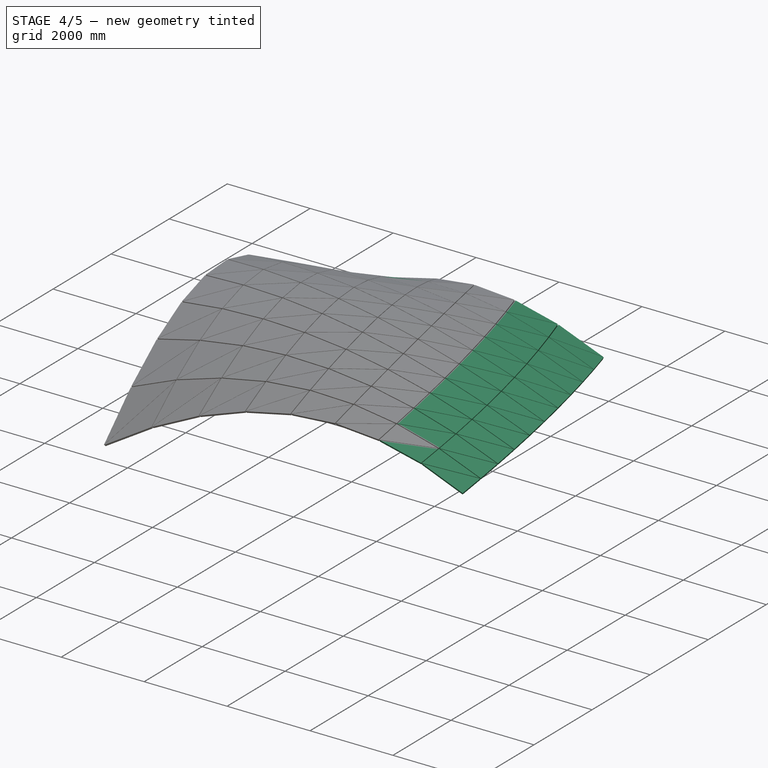
[diagram: stage 4 of 5 — iso view after this stage's code; geometry added in this stage tinted green]
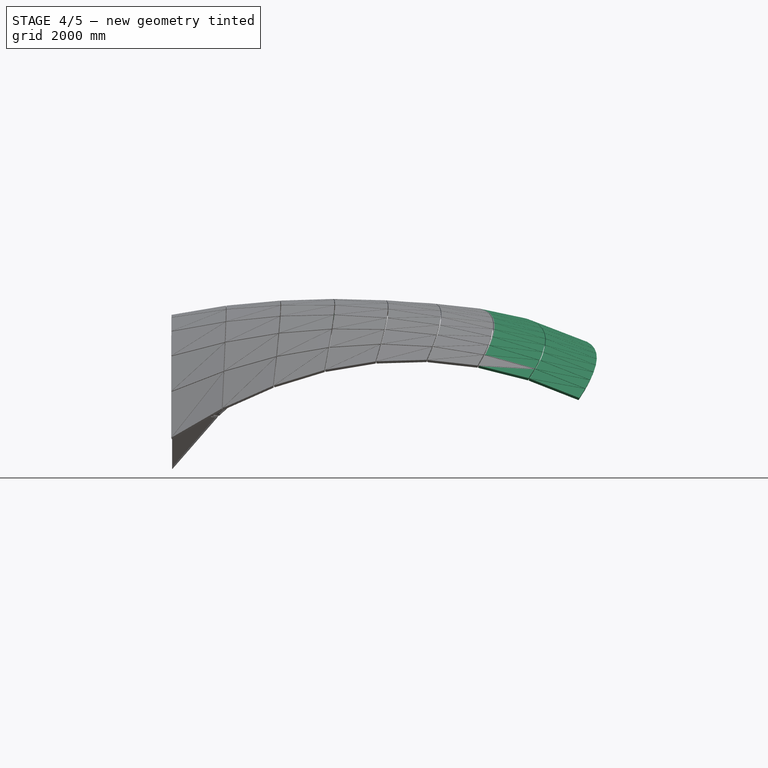
[diagram: stage 4 of 5 — front view after this stage's code; geometry added in this stage tinted green]
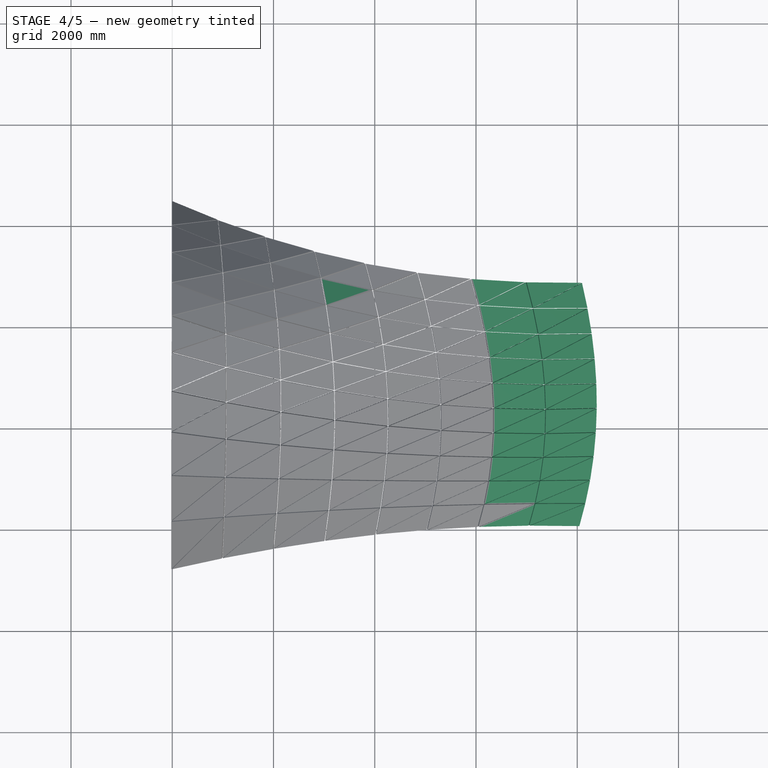
[diagram: stage 4 of 5 — top view after this stage's code; geometry added in this stage tinted green]
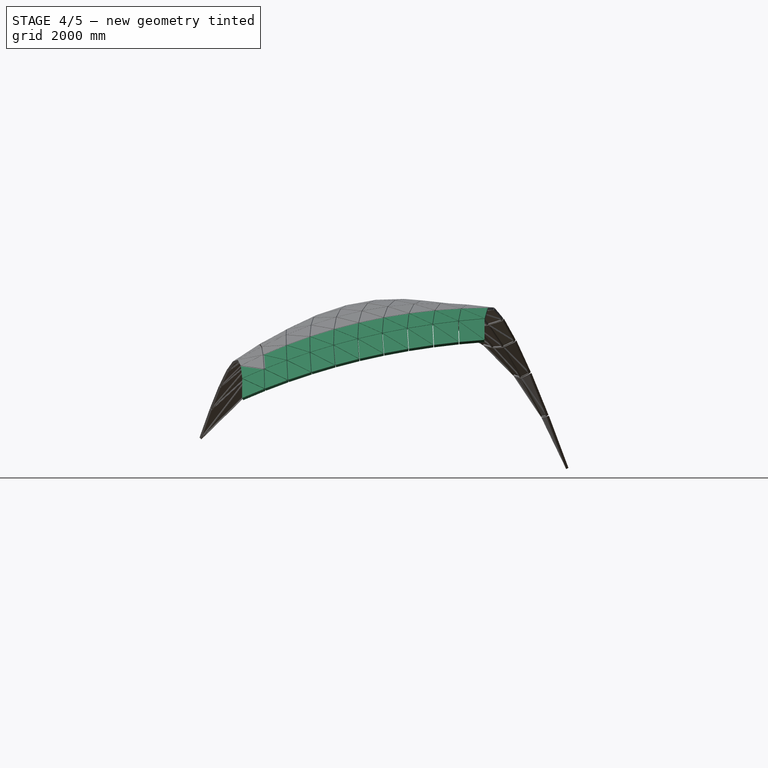
[diagram: stage 4 of 5 — right view after this stage's code; geometry added in this stage tinted green]
FEATURE [Part::Feature] wireCompound_261ff14d_c30c_4b29_8e8c_948d58ba998b
  shape: bbox 1053 x 502.8 x 406.1 mm, 0 faces, 0 solids (baked)
FEATURE [Part::FeaturePython] Window040  # Arch/BIM 170 (typed FeaturePython)
  Area = 0
  Base = -> wireCompound_261ff14d_c30c_4b29_8e8c_948d58ba998b
  Frame = 0
  Height = 0
  HoleDepth = 0
  HoleWire = 0
  HorizontalArea = 0
  IfcType = 170
  LouvreSpacing = 0
  LouvreWidth = 0
  MoveBase = false
  MoveWithHost = true
  Normal = (0.359937,-0.000976841,0.932976)
  Opening = 0
  OverallHeight = 0
  OverallWidth = 0
  PartitioningType = 0
  PerimeterLength = 0
  PredefinedType = 0
  Preset = 0
  SymbolElevation = false
  SymbolPlan = false
  VerticalArea = 0
  Width = 0
  WindowParts = WindowFrame | Frame | Wire0,Wire1 | 50 | 0 | glass | Glass panel | Wire1 | 25 | 25
  expr: OverallWidth = .Width.Value
  expr: OverallHeight = .Height.Value
FEATURE [Part::Feature] wireCompound_4ba178f6_c56f_47aa_92c5_212902cff543
  shape: bbox 1076 x 505.1 x 412.5 mm, 0 faces, 0 solids (baked)
FEATURE [Part::FeaturePython] Window041  # Arch/BIM 170 (typed FeaturePython)
  Area = 0
  Base = -> wireCompound_4ba178f6_c56f_47aa_92c5_212902cff543
  Frame = 0
  Height = 0
  HoleDepth = 0
  HoleWire = 0
  HorizontalArea = 0
  IfcType = 170
  LouvreSpacing = 0
  LouvreWidth = 0
  MoveBase = false
  MoveWithHost = true
  Normal = (0.358016,0.00317013,0.93371)
  Opening = 0
  OverallHeight = 0
  OverallWidth = 0
  PartitioningType = 0
  PerimeterLength = 0
  PredefinedType = 0
  Preset = 0
  SymbolElevation = false
  SymbolPlan = false
  VerticalArea = 0
  Width = 0
  WindowParts = WindowFrame | Frame | Wire0,Wire1 | 50 | 0 | glass | Glass panel | Wire1 | 25 | 25
  expr: OverallWidth = .Width.Value
  expr: OverallHeight = .Height.Value
FEATURE [Part::Feature] wireCompound_e3d5fd46_826a_4c26_b939_071b9981a05d
  shape: bbox 1032 x 505.1 x 400.4 mm, 0 faces, 0 solids (baked)
FEATURE [Part::FeaturePython] Window042  # Arch/BIM 170 (typed FeaturePython)
  Area = 0
  Base = -> wireCompound_e3d5fd46_826a_4c26_b939_071b9981a05d
  Frame = 0
  Height = 0
  HoleDepth = 0
  HoleWire = 0
  HorizontalArea = 0
  IfcType = 170
  LouvreSpacing = 0
  LouvreWidth = 0
  MoveBase = false
  MoveWithHost = true
  Normal = (0.361951,-0.0485758,0.930931)
  Opening = 0
  OverallHeight = 0
  OverallWidth = 0
  PartitioningType = 0
  PerimeterLength = 0
  PredefinedType = 0
  Preset = 0
  SymbolElevation = false
  SymbolPlan = false
  VerticalArea = 0
  Width = 0
  WindowParts = WindowFrame | Frame | Wire0,Wire1 | 50 | 0 | glass | Glass panel | Wire1 | 25 | 25
  expr: OverallWidth = .Width.Value
  expr: OverallHeight = .Height.Value
FEATURE [Part::Feature] wireCompound_20ef56b4_af84_42c8_a90f_e27219fc0b16
  shape: bbox 1053 x 505.4 x 406.1 mm, 0 faces, 0 solids (baked)
FEATURE [Part::FeaturePython] Window043  # Arch/BIM 170 (typed FeaturePython)
  Area = 0
  Base = -> wireCompound_20ef56b4_af84_42c8_a90f_e27219fc0b16
  Frame = 0
  Height = 0
  HoleDepth = 0
  HoleWire = 0
  HorizontalArea = 0
  IfcType = 170
  LouvreSpacing = 0
  LouvreWidth = 0
  MoveBase = false
  MoveWithHost = true
  Normal = (0.359914,-0.0440534,0.931945)
  Opening = 0
  OverallHeight = 0
  OverallWidth = 0
  PartitioningType = 0
  PerimeterLength = 0
  PredefinedType = 0
  Preset = 0
  SymbolElevation = false
  SymbolPlan = false
  VerticalArea = 0
  Width = 0
  WindowParts = WindowFrame | Frame | Wire0,Wire1 | 50 | 0 | glass | Glass panel | Wire1 | 25 | 25
  expr: OverallWidth = .Width.Value
  expr: OverallHeight = .Height.Value
FEATURE [Part::Feature] wireCompound_0de32127_d64b_43aa_a214_5242e88526e1
  shape: bbox 1015 x 505.1 x 395.5 mm, 0 faces, 0 solids (baked)
FEATURE [Part::FeaturePython] Window044  # Arch/BIM 170 (typed FeaturePython)
  Area = 0
  Base = -> wireCompound_0de32127_d64b_43aa_a214_5242e88526e1
  Frame = 0
  Height = 0
  HoleDepth = 0
  HoleWire = 0
  HorizontalArea = 0
  IfcType = 170
  LouvreSpacing = 0
  LouvreWidth = 0
  MoveBase = false
  MoveWithHost = true
  Normal = (0.363415,-0.0971745,0.926546)
  Opening = 0
  OverallHeight = 0
  OverallWidth = 0
  PartitioningType = 0
  PerimeterLength = 0
  PredefinedType = 0
  Preset = 0
  SymbolElevation = false
  SymbolPlan = false
  VerticalArea = 0
  Width = 0
  WindowParts = WindowFrame | Frame | Wire0,Wire1 | 50 | 0 | glass | Glass panel | Wire1 | 25 | 25
  expr: OverallWidth = .Width.Value
  expr: OverallHeight = .Height.Value
FEATURE [Part::Feature] wireCompound_5f227640_8a3d_4b2c_aa49_81c5ceb17ae4
  shape: bbox 1032 x 505.3 x 400.5 mm, 0 faces, 0 solids (baked)
FEATURE [Part::FeaturePython] Window045  # Arch/BIM 170 (typed FeaturePython)
  Area = 0
  Base = -> wireCompound_5f227640_8a3d_4b2c_aa49_81c5ceb17ae4
  Frame = 0
  Height = 0
  HoleDepth = 0
  HoleWire = 0
  HorizontalArea = 0
  IfcType = 170
  LouvreSpacing = 0
  LouvreWidth = 0
  MoveBase = false
  MoveWithHost = true
  Normal = (0.361484,-0.0927415,0.927754)
  Opening = 0
  OverallHeight = 0
  OverallWidth = 0
  PartitioningType = 0
  PerimeterLength = 0
  PredefinedType = 0
  Preset = 0
  SymbolElevation = false
  SymbolPlan = false
  VerticalArea = 0
  Width = 0
  WindowParts = WindowFrame | Frame | Wire0,Wire1 | 50 | 0 | glass | Glass panel | Wire1 | 25 | 25
  expr: OverallWidth = .Width.Value
  expr: OverallHeight = .Height.Value
FEATURE [Part::Feature] wireCompound_0e2e382e_9f6a_425c_b470_9aaa30f8d786
  shape: bbox 1000 x 502.6 x 391.3 mm, 0 faces, 0 solids (baked)
FEATURE [Part::FeaturePython] Window046  # Arch/BIM 170 (typed FeaturePython)
  Area = 0
  Base = -> wireCompound_0e2e382e_9f6a_425c_b470_9aaa30f8d786
  Frame = 0
  Height = 0
  HoleDepth = 0
  HoleWire = 0
  HorizontalArea = 0
  IfcType = 170
  LouvreSpacing = 0
  LouvreWidth = 0
  MoveBase = false
  MoveWithHost = true
  Normal = (0.363952,-0.146524,0.91982)
  Opening = 0
  OverallHeight = 0
  OverallWidth = 0
  PartitioningType = 0
  PerimeterLength = 0
  PredefinedType = 0
  Preset = 0
  SymbolElevation = false
  SymbolPlan = false
  VerticalArea = 0
  Width = 0
  WindowParts = WindowFrame | Frame | Wire0,Wire1 | 50 | 0 | glass | Glass panel | Wire1 | 25 | 25
  expr: OverallWidth = .Width.Value
  expr: OverallHeight = .Height.Value
FEATURE [Part::Feature] wireCompound_9e7ec78c_43da_4bda_a31f_0a2d0d2d60de
  shape: bbox 1015 x 502.8 x 395.5 mm, 0 faces, 0 solids (baked)
FEATURE [Part::FeaturePython] Window047  # Arch/BIM 170 (typed FeaturePython)
  Area = 0
  Base = -> wireCompound_9e7ec78c_43da_4bda_a31f_0a2d0d2d60de
  Frame = 0
  Height = 0
  HoleDepth = 0
  HoleWire = 0
  HorizontalArea = 0
  IfcType = 170
  LouvreSpacing = 0
  LouvreWidth = 0
  MoveBase = false
  MoveWithHost = true
  Normal = (0.362358,-0.142712,0.921049)
  Opening = 0
  OverallHeight = 0
  OverallWidth = 0
  PartitioningType = 0
  PerimeterLength = 0
  PredefinedType = 0
  Preset = 0
  SymbolElevation = false
  SymbolPlan = false
  VerticalArea = 0
  Width = 0
  WindowParts = WindowFrame | Frame | Wire0,Wire1 | 50 | 0 | glass | Glass panel | Wire1 | 25 | 25
  expr: OverallWidth = .Width.Value
  expr: OverallHeight = .Height.Value
FEATURE [Part::Feature] wireCompound_b329f4c4_5fe2_44fc_87b3_2d645669dee8
  shape: bbox 988.5 x 497.6 x 387.8 mm, 0 faces, 0 solids (baked)
FEATURE [Part::FeaturePython] Window048  # Arch/BIM 170 (typed FeaturePython)
  Area = 0
  Base = -> wireCompound_b329f4c4_5fe2_44fc_87b3_2d645669dee8
  Frame = 0
  Height = 0
  HoleDepth = 0
  HoleWire = 0
  HorizontalArea = 0
  IfcType = 170
  LouvreSpacing = 0
  LouvreWidth = 0
  MoveBase = false
  MoveWithHost = true
  Normal = (0.363172,-0.196295,0.91081)
  Opening = 0
  OverallHeight = 0
  OverallWidth = 0
  PartitioningType = 0
  PerimeterLength = 0
  PredefinedType = 0
  Preset = 0
  SymbolElevation = false
  SymbolPlan = false
  VerticalArea = 0
  Width = 0
  WindowParts = WindowFrame | Frame | Wire0,Wire1 | 50 | 0 | glass | Glass panel | Wire1 | 25 | 25
  expr: OverallWidth = .Width.Value
  expr: OverallHeight = .Height.Value
FEATURE [Part::Feature] wireCompound_dcb0a4b1_fe6c_408e_82d6_6990fca9bc62
  shape: bbox 1000 x 497.7 x 391.3 mm, 0 faces, 0 solids (baked)
FEATURE [Part::FeaturePython] Window049  # Arch/BIM 170 (typed FeaturePython)
  Area = 0
  Base = -> wireCompound_dcb0a4b1_fe6c_408e_82d6_6990fca9bc62
  Frame = 0
  Height = 0
  HoleDepth = 0
  HoleWire = 0
  HorizontalArea = 0
  IfcType = 170
  LouvreSpacing = 0
  LouvreWidth = 0
  MoveBase = false
  MoveWithHost = true
  Normal = (0.362129,-0.193682,0.911784)
  Opening = 0
  OverallHeight = 0
  OverallWidth = 0
  PartitioningType = 0
  PerimeterLength = 0
  PredefinedType = 0
  Preset = 0
  SymbolElevation = false
  SymbolPlan = false
  VerticalArea = 0
  Width = 0
  WindowParts = WindowFrame | Frame | Wire0,Wire1 | 50 | 0 | glass | Glass panel | Wire1 | 25 | 25
  expr: OverallWidth = .Width.Value
  expr: OverallHeight = .Height.Value
FEATURE [Part::Feature] wireCompound_8e94d561_0ce4_459a_ae05_0f944b4f8faf
  shape: bbox 996.9 x 490.2 x 385.1 mm, 0 faces, 0 solids (baked)
FEATURE [Part::FeaturePython] Window050  # Arch/BIM 170 (typed FeaturePython)
  Area = 0
  Base = -> wireCompound_8e94d561_0ce4_459a_ae05_0f944b4f8faf
  Frame = 0
  Height = 0
  HoleDepth = 0
  HoleWire = 0
  HorizontalArea = 0
  IfcType = 170
  LouvreSpacing = 0
  LouvreWidth = 0
  MoveBase = false
  MoveWithHost = true
  Normal = (0.360688,-0.246081,0.899638)
  Opening = 0
  OverallHeight = 0
  OverallWidth = 0
  PartitioningType = 0
  PerimeterLength = 0
  PredefinedType = 0
  Preset = 0
  SymbolElevation = false
  SymbolPlan = false
  VerticalArea = 0
  Width = 0
  WindowParts = WindowFrame | Frame | Wire0,Wire1 | 50 | 0 | glass | Glass panel | Wire1 | 25 | 25
  expr: OverallWidth = .Width.Value
  expr: OverallHeight = .Height.Value
FEATURE [Part::Feature] wireCompound_fcafe3c6_b2cb_4f16_b056_0f7feab10369
  shape: bbox 997 x 490.2 x 387.8 mm, 0 faces, 0 solids (baked)
FEATURE [Part::FeaturePython] Window051  # Arch/BIM 170 (typed FeaturePython)
  Area = 0
  Base = -> wireCompound_fcafe3c6_b2cb_4f16_b056_0f7feab10369
  Frame = 0
  Height = 0
  HoleDepth = 0
  HoleWire = 0
  HorizontalArea = 0
  IfcType = 170
  LouvreSpacing = 0
  LouvreWidth = 0
  MoveBase = false
  MoveWithHost = true
  Normal = (0.360379,-0.245264,0.899985)
  Opening = 0
  OverallHeight = 0
  OverallWidth = 0
  PartitioningType = 0
  PerimeterLength = 0
  PredefinedType = 0
  Preset = 0
  SymbolElevation = false
  SymbolPlan = false
  VerticalArea = 0
  Width = 0
  WindowParts = WindowFrame | Frame | Wire0,Wire1 | 50 | 0 | glass | Glass panel | Wire1 | 25 | 25
  expr: OverallWidth = .Width.Value
  expr: OverallHeight = .Height.Value
FEATURE [Part::Feature] wireCompound_f3ffc756_7706_4576_bb76_bd40e0105ba6
  shape: bbox 1016 x 480.2 x 383 mm, 0 faces, 0 solids (baked)
FEATURE [Part::FeaturePython] Window052  # Arch/BIM 170 (typed FeaturePython)
  Area = 0
  Base = -> wireCompound_f3ffc756_7706_4576_bb76_bd40e0105ba6
  Frame = 0
  Height = 0
  HoleDepth = 0
  HoleWire = 0
  HorizontalArea = 0
  IfcType = 170
  LouvreSpacing = 0
  LouvreWidth = 0
  MoveBase = false
  MoveWithHost = true
  Normal = (0.356145,-0.295412,0.886506)
  Opening = 0
  OverallHeight = 0
  OverallWidth = 0
  PartitioningType = 0
  PerimeterLength = 0
  PredefinedType = 0
  Preset = 0
  SymbolElevation = false
  SymbolPlan = false
  VerticalArea = 0
  Width = 0
  WindowParts = WindowFrame | Frame | Wire0,Wire1 | 50 | 0 | glass | Glass panel | Wire1 | 25 | 25
  expr: OverallWidth = .Width.Value
  expr: OverallHeight = .Height.Value
FEATURE [Part::Feature] wireCompound_5b19f26d_725a_41b6_a72b_80d28fa04bc0
  shape: bbox 1016 x 480.2 x 385 mm, 0 faces, 0 solids (baked)
FEATURE [Part::FeaturePython] Window053  # Arch/BIM 170 (typed FeaturePython)
  Area = 0
  Base = -> wireCompound_5b19f26d_725a_41b6_a72b_80d28fa04bc0
  Frame = 0
  Height = 0
  HoleDepth = 0
  HoleWire = 0
  HorizontalArea = 0
  IfcType = 170
  LouvreSpacing = 0
  LouvreWidth = 0
  MoveBase = false
  MoveWithHost = true
  Normal = (0.356699,-0.296967,0.885763)
  Opening = 0
  OverallHeight = 0
  OverallWidth = 0
  PartitioningType = 0
  PerimeterLength = 0
  PredefinedType = 0
  Preset = 0
  SymbolElevation = false
  SymbolPlan = false
  VerticalArea = 0
  Width = 0
  WindowParts = WindowFrame | Frame | Wire0,Wire1 | 50 | 0 | glass | Glass panel | Wire1 | 25 | 25
  expr: OverallWidth = .Width.Value
  expr: OverallHeight = .Height.Value
FEATURE [Part::Feature] wireCompound_3a7c037f_66a5_4745_a7c6_d2a65fddd3a1
  shape: bbox 1037 x 467.7 x 381.6 mm, 0 faces, 0 solids (baked)
FEATURE [Part::FeaturePython] Window054  # Arch/BIM 170 (typed FeaturePython)
  Area = 0
  Base = -> wireCompound_3a7c037f_66a5_4745_a7c6_d2a65fddd3a1
  Frame = 0
  Height = 0
  HoleDepth = 0
  HoleWire = 0
  HorizontalArea = 0
  IfcType = 170
  LouvreSpacing = 0
  LouvreWidth = 0
  MoveBase = false
  MoveWithHost = true
  Normal = (0.34924,-0.343775,0.871694)
  Opening = 0
  OverallHeight = 0
  OverallWidth = 0
  PartitioningType = 0
  PerimeterLength = 0
  PredefinedType = 0
  Preset = 0
  SymbolElevation = false
  SymbolPlan = false
  VerticalArea = 0
  Width = 0
  WindowParts = WindowFrame | Frame | Wire0,Wire1 | 50 | 0 | glass | Glass panel | Wire1 | 25 | 25
  expr: OverallWidth = .Width.Value
  expr: OverallHeight = .Height.Value
FEATURE [Part::Feature] wireCompound_32659b4e_397b_493f_aeb9_b2534e258583
  shape: bbox 1037 x 467.6 x 382.8 mm, 0 faces, 0 solids (baked)
FEATURE [Part::FeaturePython] Window055  # Arch/BIM 170 (typed FeaturePython)
  Area = 0
  Base = -> wireCompound_32659b4e_397b_493f_aeb9_b2534e258583
  Frame = 0
  Height = 0
  HoleDepth = 0
  HoleWire = 0
  HorizontalArea = 0
  IfcType = 170
  LouvreSpacing = 0
  LouvreWidth = 0
  MoveBase = false
  MoveWithHost = true
  Normal = (0.350718,-0.348217,0.869334)
  Opening = 0
  OverallHeight = 0
  OverallWidth = 0
  PartitioningType = 0
  PerimeterLength = 0
  PredefinedType = 0
  Preset = 0
  SymbolElevation = false
  SymbolPlan = false
  VerticalArea = 0
  Width = 0
  WindowParts = WindowFrame | Frame | Wire0,Wire1 | 50 | 0 | glass | Glass panel | Wire1 | 25 | 25
  expr: OverallWidth = .Width.Value
  expr: OverallHeight = .Height.Value
FEATURE [Part::Feature] wireCompound_c3915842_d5b4_4be4_9fa5_618c31d0a711
  shape: bbox 1062 x 452.6 x 380.8 mm, 0 faces, 0 solids (baked)
FEATURE [Part::FeaturePython] Window056  # Arch/BIM 170 (typed FeaturePython)
  Area = 0
  Base = -> wireCompound_c3915842_d5b4_4be4_9fa5_618c31d0a711
  Frame = 0
  Height = 0
  HoleDepth = 0
  HoleWire = 0
  HorizontalArea = 0
  IfcType = 170
  LouvreSpacing = 0
  LouvreWidth = 0
  MoveBase = false
  MoveWithHost = true
  Normal = (0.339751,-0.390639,0.855553)
  Opening = 0
  OverallHeight = 0
  OverallWidth = 0
  PartitioningType = 0
  PerimeterLength = 0
  PredefinedType = 0
  Preset = 0
  SymbolElevation = false
  SymbolPlan = false
  VerticalArea = 0
  Width = 0
  WindowParts = WindowFrame | Frame | Wire0,Wire1 | 50 | 0 | glass | Glass panel | Wire1 | 25 | 25
  expr: OverallWidth = .Width.Value
  expr: OverallHeight = .Height.Value
FEATURE [Part::Feature] wireCompound_e4187602_4b64_431d_b0a2_3fa796eb534e
  shape: bbox 1061 x 452.5 x 381.4 mm, 0 faces, 0 solids (baked)
FEATURE [Part::FeaturePython] Window057  # Arch/BIM 170 (typed FeaturePython)
  Area = 0
  Base = -> wireCompound_e4187602_4b64_431d_b0a2_3fa796eb534e
  Frame = 0
  Height = 0
  HoleDepth = 0
  HoleWire = 0
  HorizontalArea = 0
  IfcType = 170
  LouvreSpacing = 0
  LouvreWidth = 0
  MoveBase = false
  MoveWithHost = true
  Normal = (0.342136,-0.398384,0.851019)
  Opening = 0
  OverallHeight = 0
  OverallWidth = 0
  PartitioningType = 0
  PerimeterLength = 0
  PredefinedType = 0
  Preset = 0
  SymbolElevation = false
  SymbolPlan = false
  VerticalArea = 0
  Width = 0
  WindowParts = WindowFrame | Frame | Wire0,Wire1 | 50 | 0 | glass | Glass panel | Wire1 | 25 | 25
  expr: OverallWidth = .Width.Value
  expr: OverallHeight = .Height.Value
FEATURE [Part::Feature] wireCompound_3c81afec_bdca_48f2_bbc4_f23bff2e507c
  shape: bbox 1089 x 437 x 380.8 mm, 0 faces, 0 solids (baked)
FEATURE [Part::FeaturePython] Window058  # Arch/BIM 170 (typed FeaturePython)
  Area = 0
  Base = -> wireCompound_3c81afec_bdca_48f2_bbc4_f23bff2e507c
  Frame = 0
  Height = 0
  HoleDepth = 0
  HoleWire = 0
  HorizontalArea = 0
  IfcType = 170
  LouvreSpacing = 0
  LouvreWidth = 0
  MoveBase = false
  MoveWithHost = true
  Normal = (0.327548,-0.435492,0.838486)
  Opening = 0
  OverallHeight = 0
  OverallWidth = 0
  PartitioningType = 0
  PerimeterLength = 0
  PredefinedType = 0
  Preset = 0
  SymbolElevation = false
  SymbolPlan = false
  VerticalArea = 0
  Width = 0
  WindowParts = WindowFrame | Frame | Wire0,Wire1 | 50 | 0 | glass | Glass panel | Wire1 | 25 | 25
  expr: OverallWidth = .Width.Value
  expr: OverallHeight = .Height.Value
FEATURE [Part::Feature] wireCompound_12e5c2d2_362e_41cb_b440_6486374c68b0
  shape: bbox 1088 x 434.8 x 380.7 mm, 0 faces, 0 solids (baked)
FEATURE [Part::FeaturePython] Window059  # Arch/BIM 170 (typed FeaturePython)
  Area = 0
  Base = -> wireCompound_12e5c2d2_362e_41cb_b440_6486374c68b0
  Frame = 0
  Height = 0
  HoleDepth = 0
  HoleWire = 0
  HorizontalArea = 0
  IfcType = 170
  LouvreSpacing = 0
  LouvreWidth = 0
  MoveBase = false
  MoveWithHost = true
  Normal = (0.330749,-0.446822,0.831237)
  Opening = 0
  OverallHeight = 0
  OverallWidth = 0
  PartitioningType = 0
  PerimeterLength = 0
  PredefinedType = 0
  Preset = 0
  SymbolElevation = false
  SymbolPlan = false
  VerticalArea = 0
  Width = 0
  WindowParts = WindowFrame | Frame | Wire0,Wire1 | 50 | 0 | glass | Glass panel | Wire1 | 25 | 25
  expr: OverallWidth = .Width.Value
  expr: OverallHeight = .Height.Value
FEATURE [Part::Feature] wireCompound_e9500466_5673_4607_8807_ade304c427ee
  shape: bbox 1039 x 504.8 x 240.6 mm, 0 faces, 0 solids (baked)
FEATURE [Part::FeaturePython] Window060  # Arch/BIM 170 (typed FeaturePython)
  Area = 0
  Base = -> wireCompound_e9500466_5673_4607_8807_ade304c427ee
  Frame = 0
  Height = 0
  HoleDepth = 0
  HoleWire = 0
  HorizontalArea = 0
  IfcType = 170
  LouvreSpacing = 0
  LouvreWidth = 0
  MoveBase = false
  MoveWithHost = true
  Normal = (0.223756,-0.0350187,0.974016)
  Opening = 0
  OverallHeight = 0
  OverallWidth = 0
  PartitioningType = 0
  PerimeterLength = 0
  PredefinedType = 0
  Preset = 0
  SymbolElevation = false
  SymbolPlan = false
  VerticalArea = 0
  Width = 0
  WindowParts = WindowFrame | Frame | Wire0,Wire1 | 50 | 0 | glass | Glass panel | Wire1 | 25 | 25
  expr: OverallWidth = .Width.Value
  expr: OverallHeight = .Height.Value
FEATURE [Part::Feature] wireCompound_d9b771be_ed15_4cfa_8453_18dd6975ae1a
  shape: bbox 1053 x 512.8 x 207.5 mm, 0 faces, 0 solids (baked)
FEATURE [Part::FeaturePython] Window061  # Arch/BIM 170 (typed FeaturePython)
  Area = 0
  Base = -> wireCompound_d9b771be_ed15_4cfa_8453_18dd6975ae1a
  Frame = 0
  Height = 0
  HoleDepth = 0
  HoleWire = 0
  HorizontalArea = 0
  IfcType = 170
  LouvreSpacing = 0
  LouvreWidth = 0
  MoveBase = false
  MoveWithHost = true
  Normal = (0.194686,0.0260031,0.980521)
  Opening = 0
  OverallHeight = 0
  OverallWidth = 0
  PartitioningType = 0
  PerimeterLength = 0
  PredefinedType = 0
  Preset = 0
  SymbolElevation = false
  SymbolPlan = false
  VerticalArea = 0
  Width = 0
  WindowParts = WindowFrame | Frame | Wire0,Wire1 | 50 | 0 | glass | Glass panel | Wire1 | 25 | 25
  expr: OverallWidth = .Width.Value
  expr: OverallHeight = .Height.Value
FEATURE [Part::Feature] wireCompound_011c6019_5b06_4919_967d_a1d8cff1b228
  shape: bbox 1027 x 496.1 x 267.1 mm, 0 faces, 0 solids (baked)
FEATURE [Part::FeaturePython] Window062  # Arch/BIM 170 (typed FeaturePython)
  Area = 0
  Base = -> wireCompound_011c6019_5b06_4919_967d_a1d8cff1b228
  Frame = 0
  Height = 0
  HoleDepth = 0
  HoleWire = 0
  HorizontalArea = 0
  IfcType = 170
  LouvreSpacing = 0
  LouvreWidth = 0
  MoveBase = false
  MoveWithHost = true
  Normal = (0.248267,-0.0712454,0.966068)
  Opening = 0
  OverallHeight = 0
  OverallWidth = 0
  PartitioningType = 0
  PerimeterLength = 0
  PredefinedType = 0
  Preset = 0
  SymbolElevation = false
  SymbolPlan = false
  VerticalArea = 0
  Width = 0
  WindowParts = WindowFrame | Frame | Wire0,Wire1 | 50 | 0 | glass | Glass panel | Wire1 | 25 | 25
  expr: OverallWidth = .Width.Value
  expr: OverallHeight = .Height.Value
FEATURE [Part::Feature] wireCompound_62320529_7a53_4cdf_a467_028a8d28f4ec
  shape: bbox 1039 x 504.4 x 240.6 mm, 0 faces, 0 solids (baked)
FEATURE [Part::FeaturePython] Window063  # Arch/BIM 170 (typed FeaturePython)
  Area = 0
  Base = -> wireCompound_62320529_7a53_4cdf_a467_028a8d28f4ec
  Frame = 0
  Height = 0
  HoleDepth = 0
  HoleWire = 0
  HorizontalArea = 0
  IfcType = 170
  LouvreSpacing = 0
  LouvreWidth = 0
  MoveBase = false
  MoveWithHost = true
  Normal = (0.224585,-0.0192257,0.974265)
  Opening = 0
  OverallHeight = 0
  OverallWidth = 0
  PartitioningType = 0
  PerimeterLength = 0
  PredefinedType = 0
  Preset = 0
  SymbolElevation = false
  SymbolPlan = false
  VerticalArea = 0
  Width = 0
  WindowParts = WindowFrame | Frame | Wire0,Wire1 | 50 | 0 | glass | Glass panel | Wire1 | 25 | 25
  expr: OverallWidth = .Width.Value
  expr: OverallHeight = .Height.Value
FEATURE [Part::Feature] wireCompound_f15f853e_9c37_4cac_b1fa_0cf356c7461e
  shape: bbox 1016 x 487.3 x 287 mm, 0 faces, 0 solids (baked)
FEATURE [Part::FeaturePython] Window064  # Arch/BIM 170 (typed FeaturePython)
  Area = 0
  Base = -> wireCompound_f15f853e_9c37_4cac_b1fa_0cf356c7461e
  Frame = 0
  Height = 0
  HoleDepth = 0
  HoleWire = 0
  HorizontalArea = 0
  IfcType = 170
  LouvreSpacing = 0
  LouvreWidth = 0
  MoveBase = false
  MoveWithHost = true
  Normal = (0.266652,-0.111859,0.95728)
  Opening = 0
  OverallHeight = 0
  OverallWidth = 0
  PartitioningType = 0
  PerimeterLength = 0
  PredefinedType = 0
  Preset = 0
  SymbolElevation = false
  SymbolPlan = false
  VerticalArea = 0
  Width = 0
  WindowParts = WindowFrame | Frame | Wire0,Wire1 | 50 | 0 | glass | Glass panel | Wire1 | 25 | 25
  expr: OverallWidth = .Width.Value
  expr: OverallHeight = .Height.Value
FEATURE [Part::Feature] wireCompound_153adf2e_c130_489c_bab5_742ff87983ff
  shape: bbox 1027 x 495.9 x 267.1 mm, 0 faces, 0 solids (baked)
FEATURE [Part::FeaturePython] Window065  # Arch/BIM 170 (typed FeaturePython)
  Area = 0
  Base = -> wireCompound_153adf2e_c130_489c_bab5_742ff87983ff
  Frame = 0
  Height = 0
  HoleDepth = 0
  HoleWire = 0
  HorizontalArea = 0
  IfcType = 170
  LouvreSpacing = 0
  LouvreWidth = 0
  MoveBase = false
  MoveWithHost = true
  Normal = (0.248354,-0.0697168,0.966157)
  Opening = 0
  OverallHeight = 0
  OverallWidth = 0
  PartitioningType = 0
  PerimeterLength = 0
  PredefinedType = 0
  Preset = 0
  SymbolElevation = false
  SymbolPlan = false
  VerticalArea = 0
  Width = 0
  WindowParts = WindowFrame | Frame | Wire0,Wire1 | 50 | 0 | glass | Glass panel | Wire1 | 25 | 25
  expr: OverallWidth = .Width.Value
  expr: OverallHeight = .Height.Value
FEATURE [Part::Feature] wireCompound_e6dc8ee8_75e9_4343_abd9_b66373c5d4cd
  shape: bbox 1006 x 478.5 x 300.4 mm, 0 faces, 0 solids (baked)
FEATURE [Part::FeaturePython] Window066  # Arch/BIM 170 (typed FeaturePython)
  Area = 0
  Base = -> wireCompound_e6dc8ee8_75e9_4343_abd9_b66373c5d4cd
  Frame = 0
  Height = 0
  HoleDepth = 0
  HoleWire = 0
  HorizontalArea = 0
  IfcType = 170
  LouvreSpacing = 0
  LouvreWidth = 0
  MoveBase = false
  MoveWithHost = true
  Normal = (0.278916,-0.155946,0.947569)
  Opening = 0
  OverallHeight = 0
  OverallWidth = 0
  PartitioningType = 0
  PerimeterLength = 0
  PredefinedType = 0
  Preset = 0
  SymbolElevation = false
  SymbolPlan = false
  VerticalArea = 0
  Width = 0
  WindowParts = WindowFrame | Frame | Wire0,Wire1 | 50 | 0 | glass | Glass panel | Wire1 | 25 | 25
  expr: OverallWidth = .Width.Value
  expr: OverallHeight = .Height.Value
FEATURE [Part::Feature] wireCompound_c9698971_0a02_47b0_996f_bb580d018f40
  shape: bbox 1016 x 487.3 x 287 mm, 0 faces, 0 solids (baked)
FEATURE [Part::FeaturePython] Window067  # Arch/BIM 170 (typed FeaturePython)
  Area = 0
  Base = -> wireCompound_c9698971_0a02_47b0_996f_bb580d018f40
  Frame = 0
  Height = 0
  HoleDepth = 0
  HoleWire = 0
  HorizontalArea = 0
  IfcType = 170
  LouvreSpacing = 0
  LouvreWidth = 0
  MoveBase = false
  MoveWithHost = true
  Normal = (0.265855,-0.124422,0.95595)
  Opening = 0
  OverallHeight = 0
  OverallWidth = 0
  PartitioningType = 0
  PerimeterLength = 0
  PredefinedType = 0
  Preset = 0
  SymbolElevation = false
  SymbolPlan = false
  VerticalArea = 0
  Width = 0
  WindowParts = WindowFrame | Frame | Wire0,Wire1 | 50 | 0 | glass | Glass panel | Wire1 | 25 | 25
  expr: OverallWidth = .Width.Value
  expr: OverallHeight = .Height.Value
FEATURE [Part::Feature] wireCompound_cf56854f_7c5d_41d8_aea9_5c1b7e88e2fa
  shape: bbox 998.1 x 469.7 x 307.3 mm, 0 faces, 0 solids (baked)
FEATURE [Part::FeaturePython] Window068  # Arch/BIM 170 (typed FeaturePython)
  Area = 0
  Base = -> wireCompound_cf56854f_7c5d_41d8_aea9_5c1b7e88e2fa
  Frame = 0
  Height = 0
  HoleDepth = 0
  HoleWire = 0
  HorizontalArea = 0
  IfcType = 170
  LouvreSpacing = 0
  LouvreWidth = 0
  MoveBase = false
  MoveWithHost = true
  Normal = (0.285104,-0.202518,0.936858)
  Opening = 0
  OverallHeight = 0
  OverallWidth = 0
  PartitioningType = 0
  PerimeterLength = 0
  PredefinedType = 0
  Preset = 0
  SymbolElevation = false
  SymbolPlan = false
  VerticalArea = 0
  Width = 0
  WindowParts = WindowFrame | Frame | Wire0,Wire1 | 50 | 0 | glass | Glass panel | Wire1 | 25 | 25
  expr: OverallWidth = .Width.Value
  expr: OverallHeight = .Height.Value
FEATURE [Part::Feature] wireCompound_fa0e5e48_6e48_4953_a8bf_76342e085119
  shape: bbox 1006 x 478.6 x 300.4 mm, 0 faces, 0 solids (baked)
FEATURE [Part::FeaturePython] Window069  # Arch/BIM 170 (typed FeaturePython)
  Area = 0
  Base = -> wireCompound_fa0e5e48_6e48_4953_a8bf_76342e085119
  Frame = 0
  Height = 0
  HoleDepth = 0
  HoleWire = 0
  HorizontalArea = 0
  IfcType = 170
  LouvreSpacing = 0
  LouvreWidth = 0
  MoveBase = false
  MoveWithHost = true
  Normal = (0.277021,-0.18214,0.943443)
  Opening = 0
  OverallHeight = 0
  OverallWidth = 0
  PartitioningType = 0
  PerimeterLength = 0
  PredefinedType = 0
  Preset = 0
  SymbolElevation = false
  SymbolPlan = false
  VerticalArea = 0
  Width = 0
  WindowParts = WindowFrame | Frame | Wire0,Wire1 | 50 | 0 | glass | Glass panel | Wire1 | 25 | 25
  expr: OverallWidth = .Width.Value
  expr: OverallHeight = .Height.Value
FEATURE [Part::Feature] wireCompound_b9ad267c_02c6_41f3_b758_65eae4890de8
  shape: bbox 999.5 x 460.8 x 307.7 mm, 0 faces, 0 solids (baked)
FEATURE [Part::FeaturePython] Window070  # Arch/BIM 170 (typed FeaturePython)
  Area = 0
  Base = -> wireCompound_b9ad267c_02c6_41f3_b758_65eae4890de8
  Frame = 0
  Height = 0
  HoleDepth = 0
  HoleWire = 0
  HorizontalArea = 0
  IfcType = 170
  LouvreSpacing = 0
  LouvreWidth = 0
  MoveBase = false
  MoveWithHost = true
  Normal = (0.28532,-0.250523,0.925111)
  Opening = 0
  OverallHeight = 0
  OverallWidth = 0
  PartitioningType = 0
  PerimeterLength = 0
  PredefinedType = 0
  Preset = 0
  SymbolElevation = false
  SymbolPlan = false
  VerticalArea = 0
  Width = 0
  WindowParts = WindowFrame | Frame | Wire0,Wire1 | 50 | 0 | glass | Glass panel | Wire1 | 25 | 25
  expr: OverallWidth = .Width.Value
  expr: OverallHeight = .Height.Value
FEATURE [Part::Feature] wireCompound_0af45d22_f8b5_4a2b_8ccc_2c12aa04d1df
  shape: bbox 999.9 x 469.9 x 307.4 mm, 0 faces, 0 solids (baked)
FEATURE [Part::FeaturePython] Window071  # Arch/BIM 170 (typed FeaturePython)
  Area = 0
  Base = -> wireCompound_0af45d22_f8b5_4a2b_8ccc_2c12aa04d1df
  Frame = 0
  Height = 0
  HoleDepth = 0
  HoleWire = 0
  HorizontalArea = 0
  IfcType = 170
  LouvreSpacing = 0
  LouvreWidth = 0
  MoveBase = false
  MoveWithHost = true
  Normal = (0.281891,-0.241553,0.928542)
  Opening = 0
  OverallHeight = 0
  OverallWidth = 0
  PartitioningType = 0
  PerimeterLength = 0
  PredefinedType = 0
  Preset = 0
  SymbolElevation = false
  SymbolPlan = false
  VerticalArea = 0
  Width = 0
  WindowParts = WindowFrame | Frame | Wire0,Wire1 | 50 | 0 | glass | Glass panel | Wire1 | 25 | 25
  expr: OverallWidth = .Width.Value
  expr: OverallHeight = .Height.Value
FEATURE [Part::Feature] wireCompound_19c57d12_6f65_45e2_b26e_d5c8222b7805
  shape: bbox 1021 x 453.1 x 301.6 mm, 0 faces, 0 solids (baked)
FEATURE [Part::FeaturePython] Window072  # Arch/BIM 170 (typed FeaturePython)
  Area = 0
  Base = -> wireCompound_19c57d12_6f65_45e2_b26e_d5c8222b7805
  Frame = 0
  Height = 0
  HoleDepth = 0
  HoleWire = 0
  HorizontalArea = 0
  IfcType = 170
  LouvreSpacing = 0
  LouvreWidth = 0
  MoveBase = false
  MoveWithHost = true
  Normal = (0.279735,-0.298878,0.912371)
  Opening = 0
  OverallHeight = 0
  OverallWidth = 0
  PartitioningType = 0
  PerimeterLength = 0
  PredefinedType = 0
  Preset = 0
  SymbolElevation = false
  SymbolPlan = false
  VerticalArea = 0
  Width = 0
  WindowParts = WindowFrame | Frame | Wire0,Wire1 | 50 | 0 | glass | Glass panel | Wire1 | 25 | 25
  expr: OverallWidth = .Width.Value
  expr: OverallHeight = .Height.Value
FEATURE [Part::Feature] wireCompound_d7a7d3b3_71aa_424e_aae6_fc103e4a6517
  shape: bbox 1022 x 461.1 x 307.8 mm, 0 faces, 0 solids (baked)
FEATURE [Part::FeaturePython] Window073  # Arch/BIM 170 (typed FeaturePython)
  Area = 0
  Base = -> wireCompound_d7a7d3b3_71aa_424e_aae6_fc103e4a6517
  Frame = 0
  Height = 0
  HoleDepth = 0
  HoleWire = 0
  HorizontalArea = 0
  IfcType = 170
  LouvreSpacing = 0
  LouvreWidth = 0
  MoveBase = false
  MoveWithHost = true
  Normal = (0.280633,-0.301289,0.911301)
  Opening = 0
  OverallHeight = 0
  OverallWidth = 0
  PartitioningType = 0
  PerimeterLength = 0
  PredefinedType = 0
  Preset = 0
  SymbolElevation = false
  SymbolPlan = false
  VerticalArea = 0
  Width = 0
  WindowParts = WindowFrame | Frame | Wire0,Wire1 | 50 | 0 | glass | Glass panel | Wire1 | 25 | 25
  expr: OverallWidth = .Width.Value
  expr: OverallHeight = .Height.Value
FEATURE [Part::Feature] wireCompound_f2784745_1ca1_4d04_9830_9c8ba6fd7813
  shape: bbox 1044 x 453.2 x 289 mm, 0 faces, 0 solids (baked)
FEATURE [Part::FeaturePython] Window074  # Arch/BIM 170 (typed FeaturePython)
  Area = 0
  Base = -> wireCompound_f2784745_1ca1_4d04_9830_9c8ba6fd7813
  Frame = 0
  Height = 0
  HoleDepth = 0
  HoleWire = 0
  HorizontalArea = 0
  IfcType = 170
  LouvreSpacing = 0
  LouvreWidth = 0
  MoveBase = false
  MoveWithHost = true
  Normal = (0.268591,-0.346504,0.898773)
  Opening = 0
  OverallHeight = 0
  OverallWidth = 0
  PartitioningType = 0
  PerimeterLength = 0
  PredefinedType = 0
  Preset = 0
  SymbolElevation = false
  SymbolPlan = false
  VerticalArea = 0
  Width = 0
  WindowParts = WindowFrame | Frame | Wire0,Wire1 | 50 | 0 | glass | Glass panel | Wire1 | 25 | 25
  expr: OverallWidth = .Width.Value
  expr: OverallHeight = .Height.Value
FEATURE [Part::Feature] wireCompound_0c7a78d2_c450_4038_bd42_be7ab167ac06
  shape: bbox 1044 x 453.5 x 301.7 mm, 0 faces, 0 solids (baked)
FEATURE [Part::FeaturePython] Window075  # Arch/BIM 170 (typed FeaturePython)
  Area = 0
  Base = -> wireCompound_0c7a78d2_c450_4038_bd42_be7ab167ac06
  Frame = 0
  Height = 0
  HoleDepth = 0
  HoleWire = 0
  HorizontalArea = 0
  IfcType = 170
  LouvreSpacing = 0
  LouvreWidth = 0
  MoveBase = false
  MoveWithHost = true
  Normal = (0.273554,-0.36,0.891946)
  Opening = 0
  OverallHeight = 0
  OverallWidth = 0
  PartitioningType = 0
  PerimeterLength = 0
  PredefinedType = 0
  Preset = 0
  SymbolElevation = false
  SymbolPlan = false
  VerticalArea = 0
  Width = 0
  WindowParts = WindowFrame | Frame | Wire0,Wire1 | 50 | 0 | glass | Glass panel | Wire1 | 25 | 25
  expr: OverallWidth = .Width.Value
  expr: OverallHeight = .Height.Value
FEATURE [Part::Feature] wireCompound_23216bdd_95a7_4fe8_9bf5_418260403a47
  shape: bbox 1067 x 453.2 x 269.8 mm, 0 faces, 0 solids (baked)
FEATURE [Part::FeaturePython] Window076  # Arch/BIM 170 (typed FeaturePython)
  Area = 0
  Base = -> wireCompound_23216bdd_95a7_4fe8_9bf5_418260403a47
  Frame = 0
  Height = 0
  HoleDepth = 0
  HoleWire = 0
  HorizontalArea = 0
  IfcType = 170
  LouvreSpacing = 0
  LouvreWidth = 0
  MoveBase = false
  MoveWithHost = true
  Normal = (0.252189,-0.392369,0.88456)
  Opening = 0
  OverallHeight = 0
  OverallWidth = 0
  PartitioningType = 0
  PerimeterLength = 0
  PredefinedType = 0
  Preset = 0
  SymbolElevation = false
  SymbolPlan = false
  VerticalArea = 0
  Width = 0
  WindowParts = WindowFrame | Frame | Wire0,Wire1 | 50 | 0 | glass | Glass panel | Wire1 | 25 | 25
  expr: OverallWidth = .Width.Value
  expr: OverallHeight = .Height.Value
FEATURE [Part::Feature] wireCompound_faaa12b6_0ef9_427c_848d_18af18f083bf
  shape: bbox 1068 x 453.6 x 289.1 mm, 0 faces, 0 solids (baked)
FEATURE [Part::FeaturePython] Window077  # Arch/BIM 170 (typed FeaturePython)
  Area = 0
  Base = -> wireCompound_faaa12b6_0ef9_427c_848d_18af18f083bf
  Frame = 0
  Height = 0
  HoleDepth = 0
  HoleWire = 0
  HorizontalArea = 0
  IfcType = 170
  LouvreSpacing = 0
  LouvreWidth = 0
  MoveBase = false
  MoveWithHost = true
  Normal = (0.261088,-0.416448,0.870864)
  Opening = 0
  OverallHeight = 0
  OverallWidth = 0
  PartitioningType = 0
  PerimeterLength = 0
  PredefinedType = 0
  Preset = 0
  SymbolElevation = false
  SymbolPlan = false
  VerticalArea = 0
  Width = 0
  WindowParts = WindowFrame | Frame | Wire0,Wire1 | 50 | 0 | glass | Glass panel | Wire1 | 25 | 25
  expr: OverallWidth = .Width.Value
  expr: OverallHeight = .Height.Value
FEATURE [Part::Feature] wireCompound_991a3dab_3c8b_4ec3_9300_182fc1cd9759
  shape: bbox 1092 x 453.1 x 244.2 mm, 0 faces, 0 solids (baked)
FEATURE [Part::FeaturePython] Window078  # Arch/BIM 170 (typed FeaturePython)
  Area = 0
  Base = -> wireCompound_991a3dab_3c8b_4ec3_9300_182fc1cd9759
  Frame = 0
  Height = 0
  HoleDepth = 0
  HoleWire = 0
  HorizontalArea = 0
  IfcType = 170
  LouvreSpacing = 0
  LouvreWidth = 0
  MoveBase = false
  MoveWithHost = true
  Normal = (0.230865,-0.435518,0.870072)
  Opening = 0
  OverallHeight = 0
  OverallWidth = 0
  PartitioningType = 0
  PerimeterLength = 0
  PredefinedType = 0
  Preset = 0
  SymbolElevation = false
  SymbolPlan = false
  VerticalArea = 0
  Width = 0
  WindowParts = WindowFrame | Frame | Wire0,Wire1 | 50 | 0 | glass | Glass panel | Wire1 | 25 | 25
  expr: OverallWidth = .Width.Value
  expr: OverallHeight = .Height.Value
FEATURE [Part::Feature] wireCompound_2cc88104_a6a4_4df8_8688_4d0efc412090
  shape: bbox 993.8 x 526.4 x 260.1 mm, 0 faces, 0 solids (baked)
FEATURE [Part::FeaturePython] Window123  # Arch/BIM 170 (typed FeaturePython)
  Area = 0
  Base = -> wireCompound_2cc88104_a6a4_4df8_8688_4d0efc412090
  Frame = 0
  Height = 0
  HoleDepth = 0
  HoleWire = 0
  HorizontalArea = 0
  IfcType = 170
  LouvreSpacing = 0
  LouvreWidth = 0
  MoveBase = false
  MoveWithHost = true
  Normal = (-0.148909,0.384443,0.91106)
  Opening = 0
  OverallHeight = 0
  OverallWidth = 0
  PartitioningType = 0
  PerimeterLength = 0
  PredefinedType = 0
  Preset = 0
  SymbolElevation = false
  SymbolPlan = false
  VerticalArea = 0
  Width = 0
  WindowParts = WindowFrame | Frame | Wire0,Wire1 | 50 | 0 | glass | Glass panel | Wire1 | 25 | 25
  expr: OverallWidth = .Width.Value
  expr: OverallHeight = .Height.Value
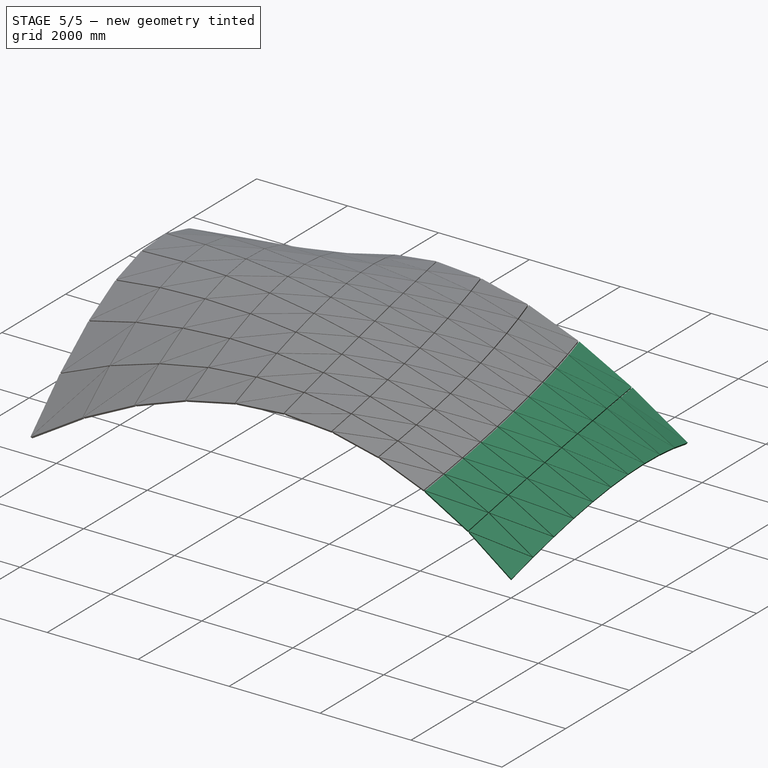
[diagram: stage 5 of 5 — iso view after this stage's code; geometry added in this stage tinted green]
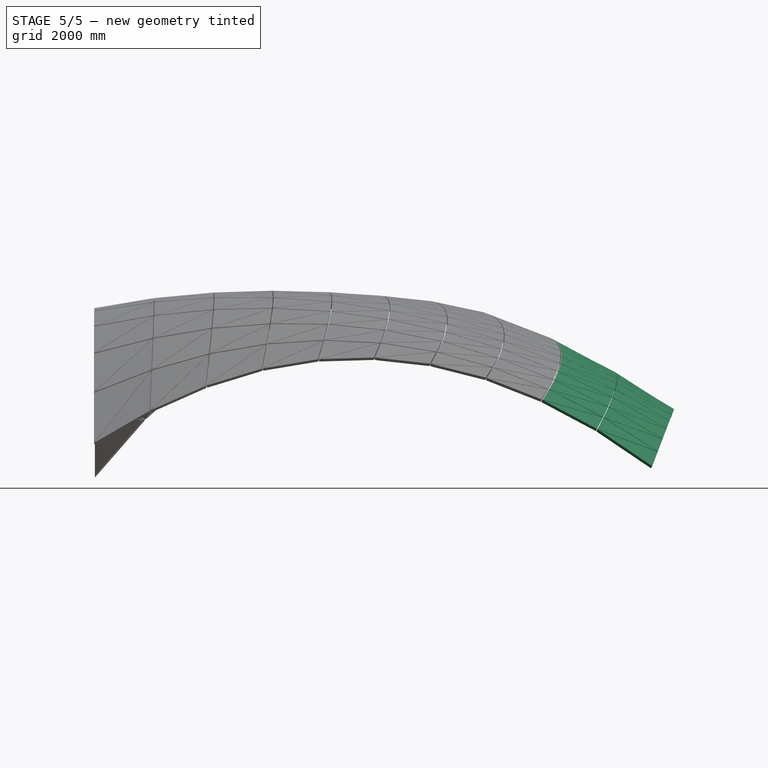
[diagram: stage 5 of 5 — front view after this stage's code; geometry added in this stage tinted green]
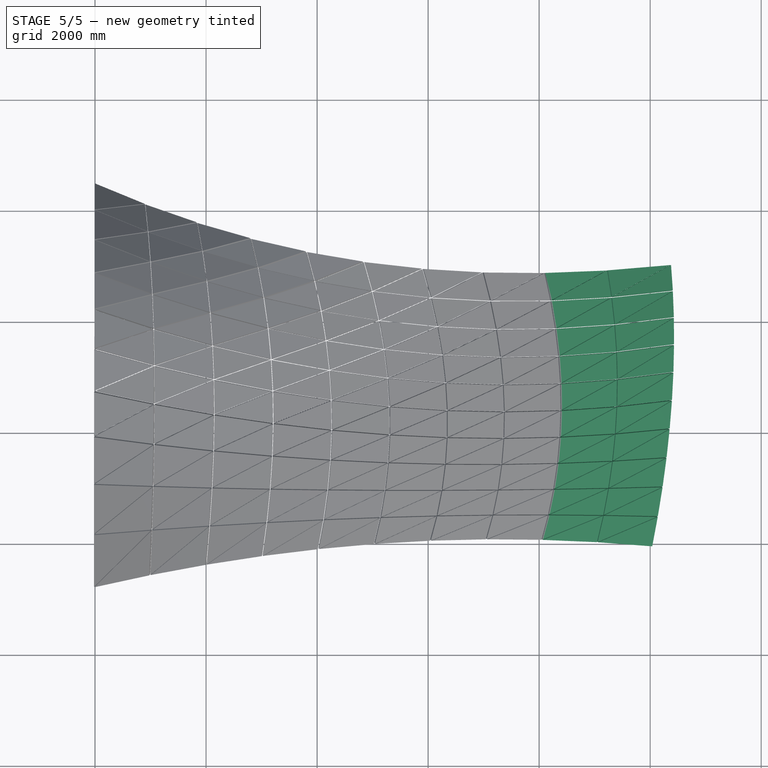
[diagram: stage 5 of 5 — top view after this stage's code; geometry added in this stage tinted green]
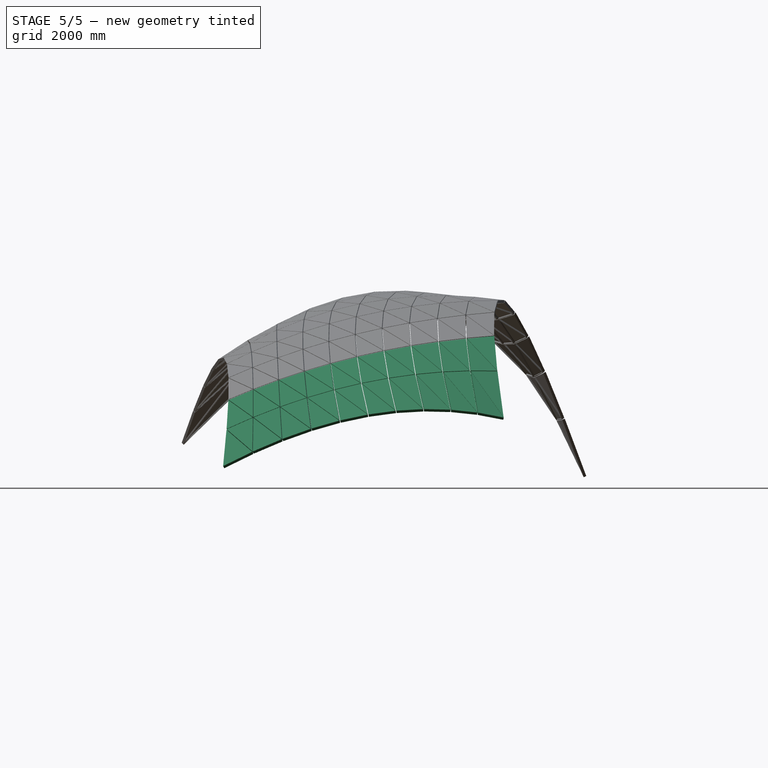
[diagram: stage 5 of 5 — right view after this stage's code; geometry added in this stage tinted green]
FEATURE [Sketcher::SketchObject] Sketch
  sketch-geometry (5):
    g0: LineSegment StartX=0 StartY=0 StartZ=0 EndX=10000 EndY=0 EndZ=0
    g1: LineSegment StartX=10000 StartY=0 StartZ=0 EndX=10000 EndY=5000 EndZ=0
    g2: LineSegment StartX=10000 StartY=5000 StartZ=0 EndX=0 EndY=5000 EndZ=0
    g3: LineSegment StartX=0 StartY=5000 StartZ=0 EndX=0 EndY=0 EndZ=0
    g4: LineSegment StartX=0 StartY=2500 StartZ=0 EndX=10000 EndY=2500 EndZ=0
  constraints (15):
    c: Coincident(g0,g1)
    c: Coincident(g1,g2)
    c: Coincident(g2,g3)
    c: Coincident(g3,g0)
    c: Horizontal(g0)
    c: Horizontal(g2)
    c: Vertical(g1)
    c: Vertical(g3)
    c: Coincident(g0,g-1)
    c: Distance(g1) = 5000
    c: Distance(g2) = 10000
    c: PointOnObject(g4,g3)
    c: PointOnObject(g4,g1)
    c: Horizontal(g4)
    c: Distance(g0,g4) = 2500
FEATURE [Part::Extrusion] Extrude
  Base = -> Sketch
  Dir = (0,0,1)
  DirMode = 2
  FaceMakerClass = Part::FaceMakerBullseye
  LengthFwd = 3000
  LengthRev = 0
  Solid = false
  Symmetric = false
FEATURE [Part::Part2DObjectPython] BSpline  # Draft 2D object (typed FeaturePython)
  Closed = false
  MakeFace = true
  Parameterization = 1
  Points = (3) [(9991.44,4.04433e-15,18.214),(10341,2500,930.329),(10322.2,5000,888.98)]
FEATURE [Part::Part2DObjectPython] BSpline002  # Draft 2D object (typed FeaturePython)
  Closed = false
  MakeFace = true
  Parameterization = 1
  Points = (3) [(0,-727.4,438.166),(4875.78,0,1969.63),(9991.44,4.04433e-15,18.214)]
  Support = -> [Extrude]
FEATURE [Part::Part2DObjectPython] BSpline003  # Draft 2D object (typed FeaturePython)
  Closed = false
  MakeFace = false
  Parameterization = 1
  Points = (3) [(10322.2,5000,888.98),(5000,5000,3000),(0,6414.78,-135.352)]
  Support = -> [Extrude]
FEATURE [Part::Part2DObjectPython] BSpline004  # Draft 2D object (typed FeaturePython)
  Closed = false
  MakeFace = false
  Parameterization = 1
  Points = (3) [(0,6414.78,-135.352),(0,2500,3000),(0,-727.4,438.166)]
FEATURE [Surface::GeomFillSurface] Surface001
  BoundaryList = -> [BSpline,BSpline002,BSpline003,BSpline004]
  FillType = 2
FEATURE [Part::Part2DObjectPython] BSpline005  # Draft 2D object (typed FeaturePython)
  Closed = false
  MakeFace = false
  Parameterization = 1
  Points = (3) [(10346.5,2608.99,944.8),(4860.62,2500,3000),(0,3482.91,2842.26)]
FEATURE [Part::Feature] Shape001
  shape: bbox 10530 x 7142 x 5733 mm, 1 faces, 0 solids (baked)
FEATURE [App::DocumentObjectGroup] Group  label="CONSTRUCTION"
  Group = -> [Extrude,BSpline,BSpline002,Surface001,BSpline003,BSpline004,BSpline005,Shape001]
FEATURE [Part::Feature] wireCompound_b6e6744e_ed49_4b7e_ba9b_9dce45c181e4
  shape: bbox 1077 x 586.7 x 822.7 mm, 0 faces, 0 solids (baked)
FEATURE [Part::FeaturePython] Window  # Arch/BIM 170 (typed FeaturePython)
  Area = 0
  Base = -> wireCompound_b6e6744e_ed49_4b7e_ba9b_9dce45c181e4
  Frame = 0
  Height = 0
  HoleDepth = 0
  HoleWire = 0
  HorizontalArea = 0
  IfcType = 170
  LouvreSpacing = 0
  LouvreWidth = 0
  MoveBase = false
  MoveWithHost = true
  Normal = (0.537147,0.195336,0.820559)
  Opening = 0
  OverallHeight = 0
  OverallWidth = 0
  PartitioningType = 0
  PerimeterLength = 0
  PredefinedType = 0
  Preset = 0
  SymbolElevation = false
  SymbolPlan = false
  VerticalArea = 0
  Width = 0
  WindowParts = WindowFrame | Frame | Wire0,Wire1 | 50 | 0 | glass | Glass panel | Wire1 | 25 | 25
  expr: OverallWidth = .Width.Value
  expr: OverallHeight = .Height.Value
FEATURE [Part::Feature] wireCompound_f5669399_3ab7_4dab_b202_3ff4c03741ee
  shape: bbox 1120 x 587.8 x 824.2 mm, 0 faces, 0 solids (baked)
FEATURE [Part::FeaturePython] Window001  # Arch/BIM 170 (typed FeaturePython)
  Area = 0
  Base = -> wireCompound_f5669399_3ab7_4dab_b202_3ff4c03741ee
  Frame = 0
  Height = 0
  HoleDepth = 0
  HoleWire = 0
  HorizontalArea = 0
  IfcType = 170
  LouvreSpacing = 0
  LouvreWidth = 0
  MoveBase = false
  MoveWithHost = true
  Normal = (0.582106,0.0968275,0.807327)
  Opening = 0
  OverallHeight = 0
  OverallWidth = 0
  PartitioningType = 0
  PerimeterLength = 0
  PredefinedType = 0
  Preset = 0
  SymbolElevation = false
  SymbolPlan = false
  VerticalArea = 0
  Width = 0
  WindowParts = WindowFrame | Frame | Wire0,Wire1 | 50 | 0 | glass | Glass panel | Wire1 | 25 | 25
  expr: OverallWidth = .Width.Value
  expr: OverallHeight = .Height.Value
FEATURE [Part::Feature] wireCompound_6c645b61_00d5_46a6_9a08_29e44ee15de8
  shape: bbox 1041 x 604 x 715 mm, 0 faces, 0 solids (baked)
FEATURE [Part::FeaturePython] Window002  # Arch/BIM 170 (typed FeaturePython)
  Area = 0
  Base = -> wireCompound_6c645b61_00d5_46a6_9a08_29e44ee15de8
  Frame = 0
  Height = 0
  HoleDepth = 0
  HoleWire = 0
  HorizontalArea = 0
  IfcType = 170
  LouvreSpacing = 0
  LouvreWidth = 0
  MoveBase = false
  MoveWithHost = true
  Normal = (0.525242,0.109839,0.843834)
  Opening = 0
  OverallHeight = 0
  OverallWidth = 0
  PartitioningType = 0
  PerimeterLength = 0
  PredefinedType = 0
  Preset = 0
  SymbolElevation = false
  SymbolPlan = false
  VerticalArea = 0
  Width = 0
  WindowParts = WindowFrame | Frame | Wire0,Wire1 | 50 | 0 | glass | Glass panel | Wire1 | 25 | 25
  expr: OverallWidth = .Width.Value
  expr: OverallHeight = .Height.Value
FEATURE [Part::Feature] wireCompound_87ddb8ff_4b25_4cad_86c8_47f2831f1f04
  shape: bbox 1078 x 604.9 x 735.9 mm, 0 faces, 0 solids (baked)
FEATURE [Part::FeaturePython] Window003  # Arch/BIM 170 (typed FeaturePython)
  Area = 0
  Base = -> wireCompound_87ddb8ff_4b25_4cad_86c8_47f2831f1f04
  Frame = 0
  Height = 0
  HoleDepth = 0
  HoleWire = 0
  HorizontalArea = 0
  IfcType = 170
  LouvreSpacing = 0
  LouvreWidth = 0
  MoveBase = false
  MoveWithHost = true
  Normal = (0.561239,0.0291483,0.82714)
  Opening = 0
  OverallHeight = 0
  OverallWidth = 0
  PartitioningType = 0
  PerimeterLength = 0
  PredefinedType = 0
  Preset = 0
  SymbolElevation = false
  SymbolPlan = false
  VerticalArea = 0
  Width = 0
  WindowParts = WindowFrame | Frame | Wire0,Wire1 | 50 | 0 | glass | Glass panel | Wire1 | 25 | 25
  expr: OverallWidth = .Width.Value
  expr: OverallHeight = .Height.Value
FEATURE [Part::Feature] wireCompound_cb18d65c_c8d0_4118_94f4_8c0208eb021e
  shape: bbox 1011 x 613.3 x 622.4 mm, 0 faces, 0 solids (baked)
FEATURE [Part::FeaturePython] Window004  # Arch/BIM 170 (typed FeaturePython)
  Area = 0
  Base = -> wireCompound_cb18d65c_c8d0_4118_94f4_8c0208eb021e
  Frame = 0
  Height = 0
  HoleDepth = 0
  HoleWire = 0
  HorizontalArea = 0
  IfcType = 170
  LouvreSpacing = 0
  LouvreWidth = 0
  MoveBase = false
  MoveWithHost = true
  Normal = (0.515071,0.0236413,0.856821)
  Opening = 0
  OverallHeight = 0
  OverallWidth = 0
  PartitioningType = 0
  PerimeterLength = 0
  PredefinedType = 0
  Preset = 0
  SymbolElevation = false
  SymbolPlan = false
  VerticalArea = 0
  Width = 0
  WindowParts = WindowFrame | Frame | Wire0,Wire1 | 50 | 0 | glass | Glass panel | Wire1 | 25 | 25
  expr: OverallWidth = .Width.Value
  expr: OverallHeight = .Height.Value
FEATURE [Part::Feature] wireCompound_381f8191_59f4_4af5_95ba_67634e324bfe
  shape: bbox 1042 x 614 x 666.4 mm, 0 faces, 0 solids (baked)
FEATURE [Part::FeaturePython] Window005  # Arch/BIM 170 (typed FeaturePython)
  Area = 0
  Base = -> wireCompound_381f8191_59f4_4af5_95ba_67634e324bfe
  Frame = 0
  Height = 0
  HoleDepth = 0
  HoleWire = 0
  HorizontalArea = 0
  IfcType = 170
  LouvreSpacing = 0
  LouvreWidth = 0
  MoveBase = false
  MoveWithHost = true
  Normal = (0.541993,-0.0381278,0.839518)
  Opening = 0
  OverallHeight = 0
  OverallWidth = 0
  PartitioningType = 0
  PerimeterLength = 0
  PredefinedType = 0
  Preset = 0
  SymbolElevation = false
  SymbolPlan = false
  VerticalArea = 0
  Width = 0
  WindowParts = WindowFrame | Frame | Wire0,Wire1 | 50 | 0 | glass | Glass panel | Wire1 | 25 | 25
  expr: OverallWidth = .Width.Value
  expr: OverallHeight = .Height.Value
FEATURE [Part::Feature] wireCompound_59250aea_29e2_4e6a_bd6b_3dcb1e018647
  shape: bbox 998 x 614.8 x 572.7 mm, 0 faces, 0 solids (baked)
FEATURE [Part::FeaturePython] Window006  # Arch/BIM 170 (typed FeaturePython)
  Area = 0
  Base = -> wireCompound_59250aea_29e2_4e6a_bd6b_3dcb1e018647
  Frame = 0
  Height = 0
  HoleDepth = 0
  HoleWire = 0
  HorizontalArea = 0
  IfcType = 170
  LouvreSpacing = 0
  LouvreWidth = 0
  MoveBase = false
  MoveWithHost = true
  Normal = (0.507014,-0.0609424,0.859781)
  Opening = 0
  OverallHeight = 0
  OverallWidth = 0
  PartitioningType = 0
  PerimeterLength = 0
  PredefinedType = 0
  Preset = 0
  SymbolElevation = false
  SymbolPlan = false
  VerticalArea = 0
  Width = 0
  WindowParts = WindowFrame | Frame | Wire0,Wire1 | 50 | 0 | glass | Glass panel | Wire1 | 25 | 25
  expr: OverallWidth = .Width.Value
  expr: OverallHeight = .Height.Value
FEATURE [Part::Feature] wireCompound_e35e5dd2_1fb6_4c2b_9293_7e6dd67b9687
  shape: bbox 1012 x 615.2 x 612.1 mm, 0 faces, 0 solids (baked)
FEATURE [Part::FeaturePython] Window007  # Arch/BIM 170 (typed FeaturePython)
  Area = 0
  Base = -> wireCompound_e35e5dd2_1fb6_4c2b_9293_7e6dd67b9687
  Frame = 0
  Height = 0
  HoleDepth = 0
  HoleWire = 0
  HorizontalArea = 0
  IfcType = 170
  LouvreSpacing = 0
  LouvreWidth = 0
  MoveBase = false
  MoveWithHost = true
  Normal = (0.52528,-0.104104,0.844537)
  Opening = 0
  OverallHeight = 0
  OverallWidth = 0
  PartitioningType = 0
  PerimeterLength = 0
  PredefinedType = 0
  Preset = 0
  SymbolElevation = false
  SymbolPlan = false
  VerticalArea = 0
  Width = 0
  WindowParts = WindowFrame | Frame | Wire0,Wire1 | 50 | 0 | glass | Glass panel | Wire1 | 25 | 25
  expr: OverallWidth = .Width.Value
  expr: OverallHeight = .Height.Value
FEATURE [Part::Feature] wireCompound_90532d72_a811_4818_964e_0adcf1cd88fb
  shape: bbox 994.9 x 608.6 x 548.9 mm, 0 faces, 0 solids (baked)
FEATURE [Part::FeaturePython] Window008  # Arch/BIM 170 (typed FeaturePython)
  Area = 0
  Base = -> wireCompound_90532d72_a811_4818_964e_0adcf1cd88fb
  Frame = 0
  Height = 0
  HoleDepth = 0
  HoleWire = 0
  HorizontalArea = 0
  IfcType = 170
  LouvreSpacing = 0
  LouvreWidth = 0
  MoveBase = false
  MoveWithHost = true
  Normal = (0.501004,-0.14194,0.853726)
  Opening = 0
  OverallHeight = 0
  OverallWidth = 0
  PartitioningType = 0
  PerimeterLength = 0
  PredefinedType = 0
  Preset = 0
  SymbolElevation = false
  SymbolPlan = false
  VerticalArea = 0
  Width = 0
  WindowParts = WindowFrame | Frame | Wire0,Wire1 | 50 | 0 | glass | Glass panel | Wire1 | 25 | 25
  expr: OverallWidth = .Width.Value
  expr: OverallHeight = .Height.Value
FEATURE [Part::Feature] wireCompound_243f35ea_129e_466f_813e_0f9166a68ac9
  shape: bbox 995 x 608.6 x 572.9 mm, 0 faces, 0 solids (baked)
FEATURE [Part::FeaturePython] Window009  # Arch/BIM 170 (typed FeaturePython)
  Area = 0
  Base = -> wireCompound_243f35ea_129e_466f_813e_0f9166a68ac9
  Frame = 0
  Height = 0
  HoleDepth = 0
  HoleWire = 0
  HorizontalArea = 0
  IfcType = 170
  LouvreSpacing = 0
  LouvreWidth = 0
  MoveBase = false
  MoveWithHost = true
  Normal = (0.511616,-0.168106,0.842608)
  Opening = 0
  OverallHeight = 0
  OverallWidth = 0
  PartitioningType = 0
  PerimeterLength = 0
  PredefinedType = 0
  Preset = 0
  SymbolElevation = false
  SymbolPlan = false
  VerticalArea = 0
  Width = 0
  WindowParts = WindowFrame | Frame | Wire0,Wire1 | 50 | 0 | glass | Glass panel | Wire1 | 25 | 25
  expr: OverallWidth = .Width.Value
  expr: OverallHeight = .Height.Value
FEATURE [Part::Feature] wireCompound_56feaff9_0500_4b3f_9223_3e6d755ea765
  shape: bbox 997.9 x 594.7 x 540.2 mm, 0 faces, 0 solids (baked)
FEATURE [Part::FeaturePython] Window010  # Arch/BIM 170 (typed FeaturePython)
  Area = 0
  Base = -> wireCompound_56feaff9_0500_4b3f_9223_3e6d755ea765
  Frame = 0
  Height = 0
  HoleDepth = 0
  HoleWire = 0
  HorizontalArea = 0
  IfcType = 170
  LouvreSpacing = 0
  LouvreWidth = 0
  MoveBase = false
  MoveWithHost = true
  Normal = (0.496535,-0.217882,0.840227)
  Opening = 0
  OverallHeight = 0
  OverallWidth = 0
  PartitioningType = 0
  PerimeterLength = 0
  PredefinedType = 0
  Preset = 0
  SymbolElevation = false
  SymbolPlan = false
  VerticalArea = 0
  Width = 0
  WindowParts = WindowFrame | Frame | Wire0,Wire1 | 50 | 0 | glass | Glass panel | Wire1 | 25 | 25
  expr: OverallWidth = .Width.Value
  expr: OverallHeight = .Height.Value
FEATURE [Part::Feature] wireCompound_a33627d9_6363_4433_894f_447f9dde6817
  shape: bbox 997.3 x 594.3 x 548.9 mm, 0 faces, 0 solids (baked)
FEATURE [Part::FeaturePython] Window011  # Arch/BIM 170 (typed FeaturePython)
  Area = 0
  Base = -> wireCompound_a33627d9_6363_4433_894f_447f9dde6817
  Frame = 0
  Height = 0
  HoleDepth = 0
  HoleWire = 0
  HorizontalArea = 0
  IfcType = 170
  LouvreSpacing = 0
  LouvreWidth = 0
  MoveBase = false
  MoveWithHost = true
  Normal = (0.501015,-0.229659,0.83441)
  Opening = 0
  OverallHeight = 0
  OverallWidth = 0
  PartitioningType = 0
  PerimeterLength = 0
  PredefinedType = 0
  Preset = 0
  SymbolElevation = false
  SymbolPlan = false
  VerticalArea = 0
  Width = 0
  WindowParts = WindowFrame | Frame | Wire0,Wire1 | 50 | 0 | glass | Glass panel | Wire1 | 25 | 25
  expr: OverallWidth = .Width.Value
  expr: OverallHeight = .Height.Value
FEATURE [Part::Feature] wireCompound_2bc079af_87be_44bd_8516_5f34f9849a54
  shape: bbox 1007 x 573.1 x 546.5 mm, 0 faces, 0 solids (baked)
FEATURE [Part::FeaturePython] Window012  # Arch/BIM 170 (typed FeaturePython)
  Area = 0
  Base = -> wireCompound_2bc079af_87be_44bd_8516_5f34f9849a54
  Frame = 0
  Height = 0
  HoleDepth = 0
  HoleWire = 0
  HorizontalArea = 0
  IfcType = 170
  LouvreSpacing = 0
  LouvreWidth = 0
  MoveBase = false
  MoveWithHost = true
  Normal = (0.492776,-0.287857,0.821164)
  Opening = 0
  OverallHeight = 0
  OverallWidth = 0
  PartitioningType = 0
  PerimeterLength = 0
  PredefinedType = 0
  Preset = 0
  SymbolElevation = false
  SymbolPlan = false
  VerticalArea = 0
  Width = 0
  WindowParts = WindowFrame | Frame | Wire0,Wire1 | 50 | 0 | glass | Glass panel | Wire1 | 25 | 25
  expr: OverallWidth = .Width.Value
  expr: OverallHeight = .Height.Value
FEATURE [Part::Feature] wireCompound_f8852877_d90d_4e9c_92d7_7c9964d3c578
  shape: bbox 1006 x 572.4 x 540 mm, 0 faces, 0 solids (baked)
FEATURE [Part::FeaturePython] Window013  # Arch/BIM 170 (typed FeaturePython)
  Area = 0
  Base = -> wireCompound_f8852877_d90d_4e9c_92d7_7c9964d3c578
  Frame = 0
  Height = 0
  HoleDepth = 0
  HoleWire = 0
  HorizontalArea = 0
  IfcType = 170
  LouvreSpacing = 0
  LouvreWidth = 0
  MoveBase = false
  MoveWithHost = true
  Normal = (0.492975,-0.288431,0.820843)
  Opening = 0
  OverallHeight = 0
  OverallWidth = 0
  PartitioningType = 0
  PerimeterLength = 0
  PredefinedType = 0
  Preset = 0
  SymbolElevation = false
  SymbolPlan = false
  VerticalArea = 0
  Width = 0
  WindowParts = WindowFrame | Frame | Wire0,Wire1 | 50 | 0 | glass | Glass panel | Wire1 | 25 | 25
  expr: OverallWidth = .Width.Value
  expr: OverallHeight = .Height.Value
FEATURE [Part::Feature] wireCompound_e0068764_2685_4ba2_93e5_cd55059510ec
  shape: bbox 1022 x 543.7 x 567.7 mm, 0 faces, 0 solids (baked)
FEATURE [Part::FeaturePython] Window014  # Arch/BIM 170 (typed FeaturePython)
  Area = 0
  Base = -> wireCompound_e0068764_2685_4ba2_93e5_cd55059510ec
  Frame = 0
  Height = 0
  HoleDepth = 0
  HoleWire = 0
  HorizontalArea = 0
  IfcType = 170
  LouvreSpacing = 0
  LouvreWidth = 0
  MoveBase = false
  MoveWithHost = true
  Normal = (0.488755,-0.351479,0.798487)
  Opening = 0
  OverallHeight = 0
  OverallWidth = 0
  PartitioningType = 0
  PerimeterLength = 0
  PredefinedType = 0
  Preset = 0
  SymbolElevation = false
  SymbolPlan = false
  VerticalArea = 0
  Width = 0
  WindowParts = WindowFrame | Frame | Wire0,Wire1 | 50 | 0 | glass | Glass panel | Wire1 | 25 | 25
  expr: OverallWidth = .Width.Value
  expr: OverallHeight = .Height.Value
FEATURE [Part::Feature] wireCompound_aef58f6f_1808_4e75_83d6_3d75240547ca
  shape: bbox 1020 x 542.8 x 546 mm, 0 faces, 0 solids (baked)
FEATURE [Part::FeaturePython] Window015  # Arch/BIM 170 (typed FeaturePython)
  Area = 0
  Base = -> wireCompound_aef58f6f_1808_4e75_83d6_3d75240547ca
  Frame = 0
  Height = 0
  HoleDepth = 0
  HoleWire = 0
  HorizontalArea = 0
  IfcType = 170
  LouvreSpacing = 0
  LouvreWidth = 0
  MoveBase = false
  MoveWithHost = true
  Normal = (0.486571,-0.344176,0.802989)
  Opening = 0
  OverallHeight = 0
  OverallWidth = 0
  PartitioningType = 0
  PerimeterLength = 0
  PredefinedType = 0
  Preset = 0
  SymbolElevation = false
  SymbolPlan = false
  VerticalArea = 0
  Width = 0
  WindowParts = WindowFrame | Frame | Wire0,Wire1 | 50 | 0 | glass | Glass panel | Wire1 | 25 | 25
  expr: OverallWidth = .Width.Value
  expr: OverallHeight = .Height.Value
FEATURE [Part::Feature] wireCompound_91d6ae81_4085_4821_a05e_86b957555357
  shape: bbox 1043 x 515.9 x 604 mm, 0 faces, 0 solids (baked)
FEATURE [Part::FeaturePython] Window016  # Arch/BIM 170 (typed FeaturePython)
  Area = 0
  Base = -> wireCompound_91d6ae81_4085_4821_a05e_86b957555357
  Frame = 0
  Height = 0
  HoleDepth = 0
  HoleWire = 0
  HorizontalArea = 0
  IfcType = 170
  LouvreSpacing = 0
  LouvreWidth = 0
  MoveBase = false
  MoveWithHost = true
  Normal = (0.483535,-0.408798,0.774001)
  Opening = 0
  OverallHeight = 0
  OverallWidth = 0
  PartitioningType = 0
  PerimeterLength = 0
  PredefinedType = 0
  Preset = 0
  SymbolElevation = false
  SymbolPlan = false
  VerticalArea = 0
  Width = 0
  WindowParts = WindowFrame | Frame | Wire0,Wire1 | 50 | 0 | glass | Glass panel | Wire1 | 25 | 25
  expr: OverallWidth = .Width.Value
  expr: OverallHeight = .Height.Value
FEATURE [Part::Feature] wireCompound_f12bc3c8_6e00_4da9_bf97_e57acb580694
  shape: bbox 1041 x 505.6 x 567.1 mm, 0 faces, 0 solids (baked)
FEATURE [Part::FeaturePython] Window017  # Arch/BIM 170 (typed FeaturePython)
  Area = 0
  Base = -> wireCompound_f12bc3c8_6e00_4da9_bf97_e57acb580694
  Frame = 0
  Height = 0
  HoleDepth = 0
  HoleWire = 0
  HorizontalArea = 0
  IfcType = 170
  LouvreSpacing = 0
  LouvreWidth = 0
  MoveBase = false
  MoveWithHost = true
  Normal = (0.480629,-0.396704,0.782063)
  Opening = 0
  OverallHeight = 0
  OverallWidth = 0
  PartitioningType = 0
  PerimeterLength = 0
  PredefinedType = 0
  Preset = 0
  SymbolElevation = false
  SymbolPlan = false
  VerticalArea = 0
  Width = 0
  WindowParts = WindowFrame | Frame | Wire0,Wire1 | 50 | 0 | glass | Glass panel | Wire1 | 25 | 25
  expr: OverallWidth = .Width.Value
  expr: OverallHeight = .Height.Value
FEATURE [Part::Feature] wireCompound_8bb998ef_4a29_4d99_b431_012f4301d6f9
  shape: bbox 1070 x 523.1 x 655.2 mm, 0 faces, 0 solids (baked)
FEATURE [Part::FeaturePython] Window018  # Arch/BIM 170 (typed FeaturePython)
  Area = 0
  Base = -> wireCompound_8bb998ef_4a29_4d99_b431_012f4301d6f9
  Frame = 0
  Height = 0
  HoleDepth = 0
  HoleWire = 0
  HorizontalArea = 0
  IfcType = 170
  LouvreSpacing = 0
  LouvreWidth = 0
  MoveBase = false
  MoveWithHost = true
  Normal = (0.476356,-0.46017,0.749219)
  Opening = 0
  OverallHeight = 0
  OverallWidth = 0
  PartitioningType = 0
  PerimeterLength = 0
  PredefinedType = 0
  Preset = 0
  SymbolElevation = false
  SymbolPlan = false
  VerticalArea = 0
  Width = 0
  WindowParts = WindowFrame | Frame | Wire0,Wire1 | 50 | 0 | glass | Glass panel | Wire1 | 25 | 25
  expr: OverallWidth = .Width.Value
  expr: OverallHeight = .Height.Value
FEATURE [Part::Feature] wireCompound_e0d97361_ca8a_4e16_abe3_7d51e0e62464
  shape: bbox 1068 x 469.9 x 603.1 mm, 0 faces, 0 solids (baked)
FEATURE [Part::FeaturePython] Window019  # Arch/BIM 170 (typed FeaturePython)
  Area = 0
  Base = -> wireCompound_e0d97361_ca8a_4e16_abe3_7d51e0e62464
  Frame = 0
  Height = 0
  HoleDepth = 0
  HoleWire = 0
  HorizontalArea = 0
  IfcType = 170
  LouvreSpacing = 0
  LouvreWidth = 0
  MoveBase = false
  MoveWithHost = true
  Normal = (0.473937,-0.445872,0.75933)
  Opening = 0
  OverallHeight = 0
  OverallWidth = 0
  PartitioningType = 0
  PerimeterLength = 0
  PredefinedType = 0
  Preset = 0
  SymbolElevation = false
  SymbolPlan = false
  VerticalArea = 0
  Width = 0
  WindowParts = WindowFrame | Frame | Wire0,Wire1 | 50 | 0 | glass | Glass panel | Wire1 | 25 | 25
  expr: OverallWidth = .Width.Value
  expr: OverallHeight = .Height.Value
FEATURE [Part::Feature] wireCompound_0b53d160_01ba_4a8d_af8e_93bf39a7780f
  shape: bbox 1065 x 547 x 574.6 mm, 0 faces, 0 solids (baked)
FEATURE [Part::FeaturePython] Window020  # Arch/BIM 170 (typed FeaturePython)
  Area = 0
  Base = -> wireCompound_0b53d160_01ba_4a8d_af8e_93bf39a7780f
  Frame = 0
  Height = 0
  HoleDepth = 0
  HoleWire = 0
  HorizontalArea = 0
  IfcType = 170
  LouvreSpacing = 0
  LouvreWidth = 0
  MoveBase = false
  MoveWithHost = true
  Normal = (0.467007,0.0794679,0.880676)
  Opening = 0
  OverallHeight = 0
  OverallWidth = 0
  PartitioningType = 0
  PerimeterLength = 0
  PredefinedType = 0
  Preset = 0
  SymbolElevation = false
  SymbolPlan = false
  VerticalArea = 0
  Width = 0
  WindowParts = WindowFrame | Frame | Wire0,Wire1 | 50 | 0 | glass | Glass panel | Wire1 | 25 | 25
  expr: OverallWidth = .Width.Value
  expr: OverallHeight = .Height.Value
FEATURE [Part::Feature] wireCompound_56fcff2d_e52a_4a2c_8a38_5b4dfe27f0bf
  shape: bbox 1098 x 547.6 x 616.9 mm, 0 faces, 0 solids (baked)
FEATURE [Part::FeaturePython] Window021  # Arch/BIM 170 (typed FeaturePython)
  Area = 0
  Base = -> wireCompound_56fcff2d_e52a_4a2c_8a38_5b4dfe27f0bf
  Frame = 0
  Height = 0
  HoleDepth = 0
  HoleWire = 0
  HorizontalArea = 0
  IfcType = 170
  LouvreSpacing = 0
  LouvreWidth = 0
  MoveBase = false
  MoveWithHost = true
  Normal = (0.488308,0.0318765,0.872089)
  Opening = 0
  OverallHeight = 0
  OverallWidth = 0
  PartitioningType = 0
  PerimeterLength = 0
  PredefinedType = 0
  Preset = 0
  SymbolElevation = false
  SymbolPlan = false
  VerticalArea = 0
  Width = 0
  WindowParts = WindowFrame | Frame | Wire0,Wire1 | 50 | 0 | glass | Glass panel | Wire1 | 25 | 25
  expr: OverallWidth = .Width.Value
  expr: OverallHeight = .Height.Value
FEATURE [Part::Feature] wireCompound_fe271293_c7a5_4767_93d5_3d2abef49243
  shape: bbox 1037 x 555.3 x 533.3 mm, 0 faces, 0 solids (baked)
FEATURE [Part::FeaturePython] Window022  # Arch/BIM 170 (typed FeaturePython)
  Area = 0
  Base = -> wireCompound_fe271293_c7a5_4767_93d5_3d2abef49243
  Frame = 0
  Height = 0
  HoleDepth = 0
  HoleWire = 0
  HorizontalArea = 0
  IfcType = 170
  LouvreSpacing = 0
  LouvreWidth = 0
  MoveBase = false
  MoveWithHost = true
  Normal = (0.456488,0.0146986,0.889608)
  Opening = 0
  OverallHeight = 0
  OverallWidth = 0
  PartitioningType = 0
  PerimeterLength = 0
  PredefinedType = 0
  Preset = 0
  SymbolElevation = false
  SymbolPlan = false
  VerticalArea = 0
  Width = 0
  WindowParts = WindowFrame | Frame | Wire0,Wire1 | 50 | 0 | glass | Glass panel | Wire1 | 25 | 25
  expr: OverallWidth = .Width.Value
  expr: OverallHeight = .Height.Value
FEATURE [Part::Feature] wireCompound_83b2a94d_51d2_4eff_bea9_8b0e598079b2
  shape: bbox 1066 x 555.9 x 571.3 mm, 0 faces, 0 solids (baked)
FEATURE [Part::FeaturePython] Window023  # Arch/BIM 170 (typed FeaturePython)
  Area = 0
  Base = -> wireCompound_83b2a94d_51d2_4eff_bea9_8b0e598079b2
  Frame = 0
  Height = 0
  HoleDepth = 0
  HoleWire = 0
  HorizontalArea = 0
  IfcType = 170
  LouvreSpacing = 0
  LouvreWidth = 0
  MoveBase = false
  MoveWithHost = true
  Normal = (0.473525,-0.0239157,0.880456)
  Opening = 0
  OverallHeight = 0
  OverallWidth = 0
  PartitioningType = 0
  PerimeterLength = 0
  PredefinedType = 0
  Preset = 0
  SymbolElevation = false
  SymbolPlan = false
  VerticalArea = 0
  Width = 0
  WindowParts = WindowFrame | Frame | Wire0,Wire1 | 50 | 0 | glass | Glass panel | Wire1 | 25 | 25
  expr: OverallWidth = .Width.Value
  expr: OverallHeight = .Height.Value
FEATURE [Part::Feature] wireCompound_e808eda2_e330_4949_9578_995423c707f6
  shape: bbox 1013 x 558.5 x 503.7 mm, 0 faces, 0 solids (baked)
FEATURE [Part::FeaturePython] Window024  # Arch/BIM 170 (typed FeaturePython)
  Area = 0
  Base = -> wireCompound_e808eda2_e330_4949_9578_995423c707f6
  Frame = 0
  Height = 0
  HoleDepth = 0
  HoleWire = 0
  HorizontalArea = 0
  IfcType = 170
  LouvreSpacing = 0
  LouvreWidth = 0
  MoveBase = false
  MoveWithHost = true
  Normal = (0.447874,-0.0496034,0.89272)
  Opening = 0
  OverallHeight = 0
  OverallWidth = 0
  PartitioningType = 0
  PerimeterLength = 0
  PredefinedType = 0
  Preset = 0
  SymbolElevation = false
  SymbolPlan = false
  VerticalArea = 0
  Width = 0
  WindowParts = WindowFrame | Frame | Wire0,Wire1 | 50 | 0 | glass | Glass panel | Wire1 | 25 | 25
  expr: OverallWidth = .Width.Value
  expr: OverallHeight = .Height.Value
FEATURE [Part::Feature] wireCompound_de7c1806_a05b_472f_994a_8ed5606b1539
  shape: bbox 1037 x 558.9 x 533.6 mm, 0 faces, 0 solids (baked)
FEATURE [Part::FeaturePython] Window025  # Arch/BIM 170 (typed FeaturePython)
  Area = 0
  Base = -> wireCompound_de7c1806_a05b_472f_994a_8ed5606b1539
  Frame = 0
  Height = 0
  HoleDepth = 0
  HoleWire = 0
  HorizontalArea = 0
  IfcType = 170
  LouvreSpacing = 0
  LouvreWidth = 0
  MoveBase = false
  MoveWithHost = true
  Normal = (0.460667,-0.079203,0.884032)
  Opening = 0
  OverallHeight = 0
  OverallWidth = 0
  PartitioningType = 0
  PerimeterLength = 0
  PredefinedType = 0
  Preset = 0
  SymbolElevation = false
  SymbolPlan = false
  VerticalArea = 0
  Width = 0
  WindowParts = WindowFrame | Frame | Wire0,Wire1 | 50 | 0 | glass | Glass panel | Wire1 | 25 | 25
  expr: OverallWidth = .Width.Value
  expr: OverallHeight = .Height.Value
FEATURE [Part::Feature] wireCompound_4418e50b_74df_4003_9c22_91a4ae6711f2
  shape: bbox 993.9 x 556.6 x 482.1 mm, 0 faces, 0 solids (baked)
FEATURE [Part::FeaturePython] Window026  # Arch/BIM 170 (typed FeaturePython)
  Area = 0
  Base = -> wireCompound_4418e50b_74df_4003_9c22_91a4ae6711f2
  Frame = 0
  Height = 0
  HoleDepth = 0
  HoleWire = 0
  HorizontalArea = 0
  IfcType = 170
  LouvreSpacing = 0
  LouvreWidth = 0
  MoveBase = false
  MoveWithHost = true
  Normal = (0.441085,-0.112874,0.890339)
  Opening = 0
  OverallHeight = 0
  OverallWidth = 0
  PartitioningType = 0
  PerimeterLength = 0
  PredefinedType = 0
  Preset = 0
  SymbolElevation = false
  SymbolPlan = false
  VerticalArea = 0
  Width = 0
  WindowParts = WindowFrame | Frame | Wire0,Wire1 | 50 | 0 | glass | Glass panel | Wire1 | 25 | 25
  expr: OverallWidth = .Width.Value
  expr: OverallHeight = .Height.Value
FEATURE [Part::Feature] wireCompound_e6bc669a_6db1_4e2f_a31b_be00116570f5
  shape: bbox 1013 x 556.8 x 503.9 mm, 0 faces, 0 solids (baked)
FEATURE [Part::FeaturePython] Window027  # Arch/BIM 170 (typed FeaturePython)
  Area = 0
  Base = -> wireCompound_e6bc669a_6db1_4e2f_a31b_be00116570f5
  Frame = 0
  Height = 0
  HoleDepth = 0
  HoleWire = 0
  HorizontalArea = 0
  IfcType = 170
  LouvreSpacing = 0
  LouvreWidth = 0
  MoveBase = false
  MoveWithHost = true
  Normal = (0.449871,-0.133825,0.88301)
  Opening = 0
  OverallHeight = 0
  OverallWidth = 0
  PartitioningType = 0
  PerimeterLength = 0
  PredefinedType = 0
  Preset = 0
  SymbolElevation = false
  SymbolPlan = false
  VerticalArea = 0
  Width = 0
  WindowParts = WindowFrame | Frame | Wire0,Wire1 | 50 | 0 | glass | Glass panel | Wire1 | 25 | 25
  expr: OverallWidth = .Width.Value
  expr: OverallHeight = .Height.Value
FEATURE [Part::Feature] wireCompound_42fa34ac_7739_497e_b9c3_b055971d3323
  shape: bbox 986.3 x 549.5 x 468.3 mm, 0 faces, 0 solids (baked)
FEATURE [Part::FeaturePython] Window028  # Arch/BIM 170 (typed FeaturePython)
  Area = 0
  Base = -> wireCompound_42fa34ac_7739_497e_b9c3_b055971d3323
  Frame = 0
  Height = 0
  HoleDepth = 0
  HoleWire = 0
  HorizontalArea = 0
  IfcType = 170
  LouvreSpacing = 0
  LouvreWidth = 0
  MoveBase = false
  MoveWithHost = true
  Normal = (0.435796,-0.174621,0.882944)
  Opening = 0
  OverallHeight = 0
  OverallWidth = 0
  PartitioningType = 0
  PerimeterLength = 0
  PredefinedType = 0
  Preset = 0
  SymbolElevation = false
  SymbolPlan = false
  VerticalArea = 0
  Width = 0
  WindowParts = WindowFrame | Frame | Wire0,Wire1 | 50 | 0 | glass | Glass panel | Wire1 | 25 | 25
  expr: OverallWidth = .Width.Value
  expr: OverallHeight = .Height.Value
FEATURE [Part::Feature] wireCompound_092c6547_6ea6_4e64_a8e7_7db5d7588374
  shape: bbox 993.9 x 549.6 x 482.1 mm, 0 faces, 0 solids (baked)
FEATURE [Part::FeaturePython] Window029  # Arch/BIM 170 (typed FeaturePython)
  Area = 0
  Base = -> wireCompound_092c6547_6ea6_4e64_a8e7_7db5d7588374
  Frame = 0
  Height = 0
  HoleDepth = 0
  HoleWire = 0
  HorizontalArea = 0
  IfcType = 170
  LouvreSpacing = 0
  LouvreWidth = 0
  MoveBase = false
  MoveWithHost = true
  Normal = (0.441041,-0.187683,0.877643)
  Opening = 0
  OverallHeight = 0
  OverallWidth = 0
  PartitioningType = 0
  PerimeterLength = 0
  PredefinedType = 0
  Preset = 0
  SymbolElevation = false
  SymbolPlan = false
  VerticalArea = 0
  Width = 0
  WindowParts = WindowFrame | Frame | Wire0,Wire1 | 50 | 0 | glass | Glass panel | Wire1 | 25 | 25
  expr: OverallWidth = .Width.Value
  expr: OverallHeight = .Height.Value
FEATURE [Part::Feature] wireCompound_c66ab782_d8e1_42d4_a113_92dd59678a8d
  shape: bbox 996.4 x 537.4 x 462.5 mm, 0 faces, 0 solids (baked)
FEATURE [Part::FeaturePython] Window030  # Arch/BIM 170 (typed FeaturePython)
  Area = 0
  Base = -> wireCompound_c66ab782_d8e1_42d4_a113_92dd59678a8d
  Frame = 0
  Height = 0
  HoleDepth = 0
  HoleWire = 0
  HorizontalArea = 0
  IfcType = 170
  LouvreSpacing = 0
  LouvreWidth = 0
  MoveBase = false
  MoveWithHost = true
  Normal = (0.431466,-0.234409,0.871142)
  Opening = 0
  OverallHeight = 0
  OverallWidth = 0
  PartitioningType = 0
  PerimeterLength = 0
  PredefinedType = 0
  Preset = 0
  SymbolElevation = false
  SymbolPlan = false
  VerticalArea = 0
  Width = 0
  WindowParts = WindowFrame | Frame | Wire0,Wire1 | 50 | 0 | glass | Glass panel | Wire1 | 25 | 25
  expr: OverallWidth = .Width.Value
  expr: OverallHeight = .Height.Value
FEATURE [Part::Feature] wireCompound_5930b844_7c71_4c79_b3bb_307db8d5d021
  shape: bbox 996.1 x 537.3 x 468.3 mm, 0 faces, 0 solids (baked)
FEATURE [Part::FeaturePython] Window031  # Arch/BIM 170 (typed FeaturePython)
  Area = 0
  Base = -> wireCompound_5930b844_7c71_4c79_b3bb_307db8d5d021
  Frame = 0
  Height = 0
  HoleDepth = 0
  HoleWire = 0
  HorizontalArea = 0
  IfcType = 170
  LouvreSpacing = 0
  LouvreWidth = 0
  MoveBase = false
  MoveWithHost = true
  Normal = (0.433841,-0.240694,0.868244)
  Opening = 0
  OverallHeight = 0
  OverallWidth = 0
  PartitioningType = 0
  PerimeterLength = 0
  PredefinedType = 0
  Preset = 0
  SymbolElevation = false
  SymbolPlan = false
  VerticalArea = 0
  Width = 0
  WindowParts = WindowFrame | Frame | Wire0,Wire1 | 50 | 0 | glass | Glass panel | Wire1 | 25 | 25
  expr: OverallWidth = .Width.Value
  expr: OverallHeight = .Height.Value
FEATURE [Part::Feature] wireCompound_5e219ab1_8415_49ef_a714_4e58aff9a43b
  shape: bbox 1011 x 520.2 x 464.6 mm, 0 faces, 0 solids (baked)
FEATURE [Part::FeaturePython] Window032  # Arch/BIM 170 (typed FeaturePython)
  Area = 0
  Base = -> wireCompound_5e219ab1_8415_49ef_a714_4e58aff9a43b
  Frame = 0
  Height = 0
  HoleDepth = 0
  HoleWire = 0
  HorizontalArea = 0
  IfcType = 170
  LouvreSpacing = 0
  LouvreWidth = 0
  MoveBase = false
  MoveWithHost = true
  Normal = (0.427402,-0.291841,0.855661)
  Opening = 0
  OverallHeight = 0
  OverallWidth = 0
  PartitioningType = 0
  PerimeterLength = 0
  PredefinedType = 0
  Preset = 0
  SymbolElevation = false
  SymbolPlan = false
  VerticalArea = 0
  Width = 0
  WindowParts = WindowFrame | Frame | Wire0,Wire1 | 50 | 0 | glass | Glass panel | Wire1 | 25 | 25
  expr: OverallWidth = .Width.Value
  expr: OverallHeight = .Height.Value
FEATURE [Part::Feature] wireCompound_bd9d91ed_4104_4103_ac03_e06909b9c374
  shape: bbox 1010 x 519.9 x 462.3 mm, 0 faces, 0 solids (baked)
FEATURE [Part::FeaturePython] Window033  # Arch/BIM 170 (typed FeaturePython)
  Area = 0
  Base = -> wireCompound_bd9d91ed_4104_4103_ac03_e06909b9c374
  Frame = 0
  Height = 0
  HoleDepth = 0
  HoleWire = 0
  HorizontalArea = 0
  IfcType = 170
  LouvreSpacing = 0
  LouvreWidth = 0
  MoveBase = false
  MoveWithHost = true
  Normal = (0.427714,-0.29274,0.855198)
  Opening = 0
  OverallHeight = 0
  OverallWidth = 0
  PartitioningType = 0
  PerimeterLength = 0
  PredefinedType = 0
  Preset = 0
  SymbolElevation = false
  SymbolPlan = false
  VerticalArea = 0
  Width = 0
  WindowParts = WindowFrame | Frame | Wire0,Wire1 | 50 | 0 | glass | Glass panel | Wire1 | 25 | 25
  expr: OverallWidth = .Width.Value
  expr: OverallHeight = .Height.Value
FEATURE [Part::Feature] wireCompound_ee193050_87e7_4b0c_b202_2c1f00b86626
  shape: bbox 1030 x 497.9 x 474.5 mm, 0 faces, 0 solids (baked)
FEATURE [Part::FeaturePython] Window034  # Arch/BIM 170 (typed FeaturePython)
  Area = 0
  Base = -> wireCompound_ee193050_87e7_4b0c_b202_2c1f00b86626
  Frame = 0
  Height = 0
  HoleDepth = 0
  HoleWire = 0
  HorizontalArea = 0
  IfcType = 170
  LouvreSpacing = 0
  LouvreWidth = 0
  MoveBase = false
  MoveWithHost = true
  Normal = (0.422838,-0.346561,0.83732)
  Opening = 0
  OverallHeight = 0
  OverallWidth = 0
  PartitioningType = 0
  PerimeterLength = 0
  PredefinedType = 0
  Preset = 0
  SymbolElevation = false
  SymbolPlan = false
  VerticalArea = 0
  Width = 0
  WindowParts = WindowFrame | Frame | Wire0,Wire1 | 50 | 0 | glass | Glass panel | Wire1 | 25 | 25
  expr: OverallWidth = .Width.Value
  expr: OverallHeight = .Height.Value
FEATURE [Part::Feature] wireCompound_99653623_13bb_4137_92b0_3080d5e83c0e
  shape: bbox 1029 x 497.4 x 464.2 mm, 0 faces, 0 solids (baked)
FEATURE [Part::FeaturePython] Window035  # Arch/BIM 170 (typed FeaturePython)
  Area = 0
  Base = -> wireCompound_99653623_13bb_4137_92b0_3080d5e83c0e
  Frame = 0
  Height = 0
  HoleDepth = 0
  HoleWire = 0
  HorizontalArea = 0
  IfcType = 170
  LouvreSpacing = 0
  LouvreWidth = 0
  MoveBase = false
  MoveWithHost = true
  Normal = (0.421929,-0.343633,0.838983)
  Opening = 0
  OverallHeight = 0
  OverallWidth = 0
  PartitioningType = 0
  PerimeterLength = 0
  PredefinedType = 0
  Preset = 0
  SymbolElevation = false
  SymbolPlan = false
  VerticalArea = 0
  Width = 0
  WindowParts = WindowFrame | Frame | Wire0,Wire1 | 50 | 0 | glass | Glass panel | Wire1 | 25 | 25
  expr: OverallWidth = .Width.Value
  expr: OverallHeight = .Height.Value
FEATURE [Part::Feature] wireCompound_50a340c4_aef0_44d1_8093_45ac33e3b76c
  shape: bbox 1054 x 470.6 x 492.2 mm, 0 faces, 0 solids (baked)
FEATURE [Part::FeaturePython] Window036  # Arch/BIM 170 (typed FeaturePython)
  Area = 0
  Base = -> wireCompound_50a340c4_aef0_44d1_8093_45ac33e3b76c
  Frame = 0
  Height = 0
  HoleDepth = 0
  HoleWire = 0
  HorizontalArea = 0
  IfcType = 170
  LouvreSpacing = 0
  LouvreWidth = 0
  MoveBase = false
  MoveWithHost = true
  Normal = (0.417033,-0.398261,0.816989)
  Opening = 0
  OverallHeight = 0
  OverallWidth = 0
  PartitioningType = 0
  PerimeterLength = 0
  PredefinedType = 0
  Preset = 0
  SymbolElevation = false
  SymbolPlan = false
  VerticalArea = 0
  Width = 0
  WindowParts = WindowFrame | Frame | Wire0,Wire1 | 50 | 0 | glass | Glass panel | Wire1 | 25 | 25
  expr: OverallWidth = .Width.Value
  expr: OverallHeight = .Height.Value
FEATURE [Part::Feature] wireCompound_01492ebc_46df_4508_b6d9_edc51d10b196
  shape: bbox 1052 x 469.8 x 474 mm, 0 faces, 0 solids (baked)
FEATURE [Part::FeaturePython] Window037  # Arch/BIM 170 (typed FeaturePython)
  Area = 0
  Base = -> wireCompound_01492ebc_46df_4508_b6d9_edc51d10b196
  Frame = 0
  Height = 0
  HoleDepth = 0
  HoleWire = 0
  HorizontalArea = 0
  IfcType = 170
  LouvreSpacing = 0
  LouvreWidth = 0
  MoveBase = false
  MoveWithHost = true
  Normal = (0.415661,-0.393096,0.820184)
  Opening = 0
  OverallHeight = 0
  OverallWidth = 0
  PartitioningType = 0
  PerimeterLength = 0
  PredefinedType = 0
  Preset = 0
  SymbolElevation = false
  SymbolPlan = false
  VerticalArea = 0
  Width = 0
  WindowParts = WindowFrame | Frame | Wire0,Wire1 | 50 | 0 | glass | Glass panel | Wire1 | 25 | 25
  expr: OverallWidth = .Width.Value
  expr: OverallHeight = .Height.Value
FEATURE [Part::Feature] wireCompound_724848e8_1399_4adb_b791_5230b1665111
  shape: bbox 1082 x 469.8 x 517.7 mm, 0 faces, 0 solids (baked)
FEATURE [Part::FeaturePython] Window038  # Arch/BIM 170 (typed FeaturePython)
  Area = 0
  Base = -> wireCompound_724848e8_1399_4adb_b791_5230b1665111
  Frame = 0
  Height = 0
  HoleDepth = 0
  HoleWire = 0
  HorizontalArea = 0
  IfcType = 170
  LouvreSpacing = 0
  LouvreWidth = 0
  MoveBase = false
  MoveWithHost = true
  Normal = (0.409359,-0.4467,0.79554)
  Opening = 0
  OverallHeight = 0
  OverallWidth = 0
  PartitioningType = 0
  PerimeterLength = 0
  PredefinedType = 0
  Preset = 0
  SymbolElevation = false
  SymbolPlan = false
  VerticalArea = 0
  Width = 0
  WindowParts = WindowFrame | Frame | Wire0,Wire1 | 50 | 0 | glass | Glass panel | Wire1 | 25 | 25
  expr: OverallWidth = .Width.Value
  expr: OverallHeight = .Height.Value
FEATURE [Part::Feature] wireCompound_71485c05_5281_4a58_a24d_3db565110cf5
  shape: bbox 1080 x 437.2 x 491.6 mm, 0 faces, 0 solids (baked)
FEATURE [Part::FeaturePython] Window039  # Arch/BIM 170 (typed FeaturePython)
  Area = 0
  Base = -> wireCompound_71485c05_5281_4a58_a24d_3db565110cf5
  Frame = 0
  Height = 0
  HoleDepth = 0
  HoleWire = 0
  HorizontalArea = 0
  IfcType = 170
  LouvreSpacing = 0
  LouvreWidth = 0
  MoveBase = false
  MoveWithHost = true
  Normal = (0.408093,-0.440778,0.799484)
  Opening = 0
  OverallHeight = 0
  OverallWidth = 0
  PartitioningType = 0
  PerimeterLength = 0
  PredefinedType = 0
  Preset = 0
  SymbolElevation = false
  SymbolPlan = false
  VerticalArea = 0
  Width = 0
  WindowParts = WindowFrame | Frame | Wire0,Wire1 | 50 | 0 | glass | Glass panel | Wire1 | 25 | 25
  expr: OverallWidth = .Width.Value
  expr: OverallHeight = .Height.Value
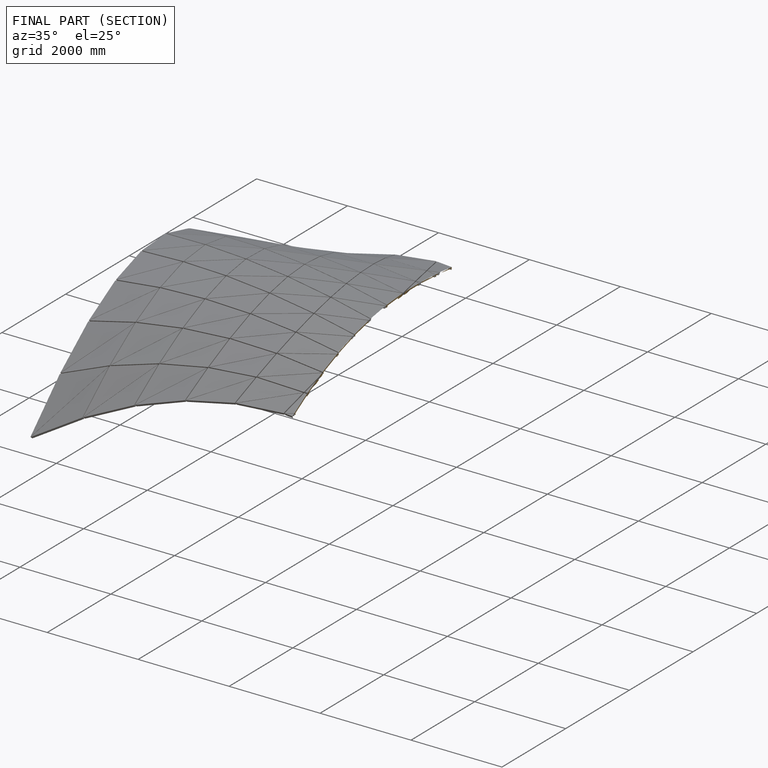
[diagram: finished part — half-section view (interior)]
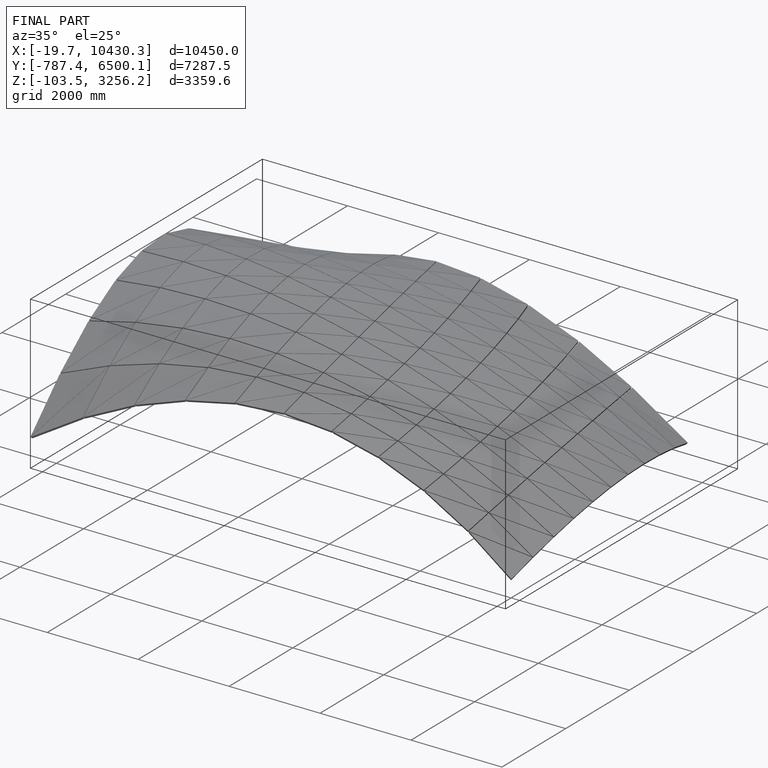
[diagram: finished part — iso view with bounding-box wireframe]
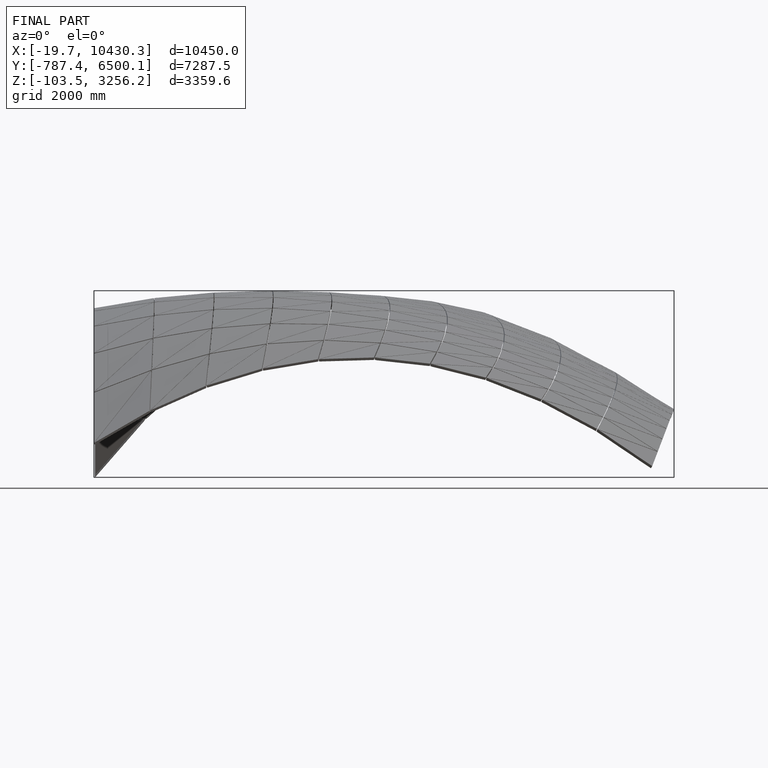
[diagram: finished part — front view with bounding-box wireframe]
